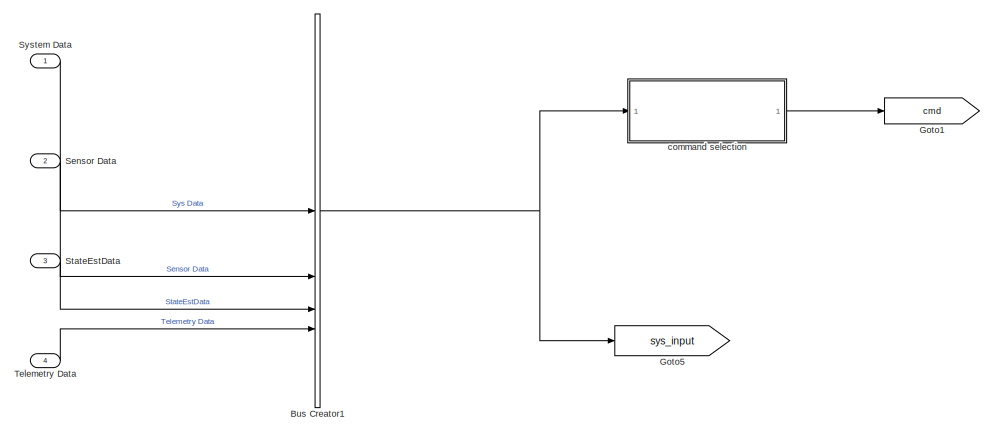
[diagram: root canvas - part 1/6, top center region]
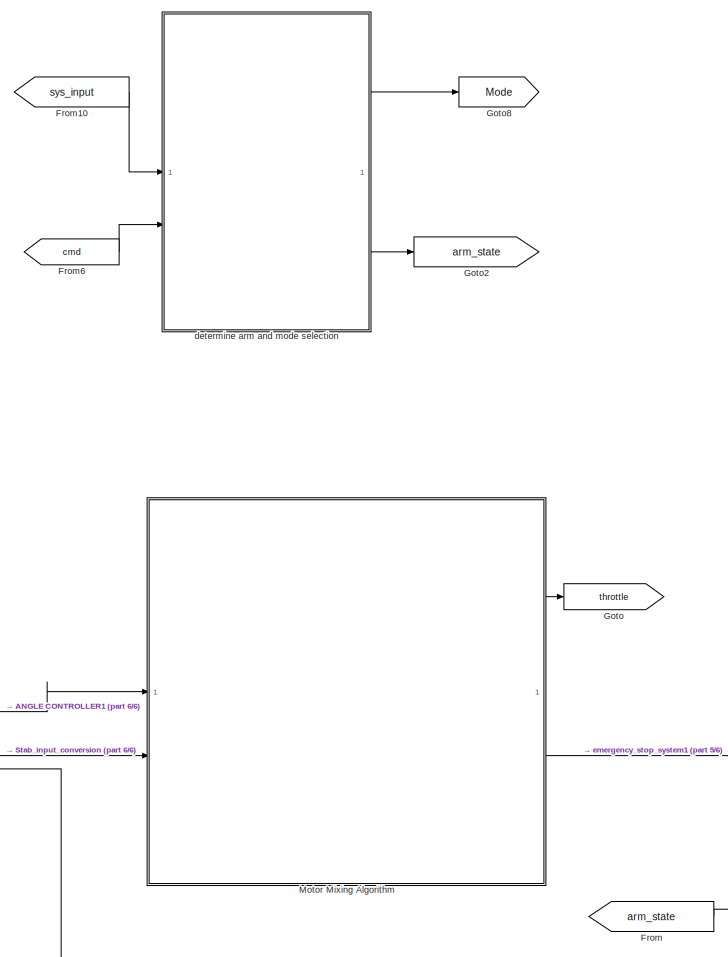
[diagram: root canvas - part 2/6, central region]
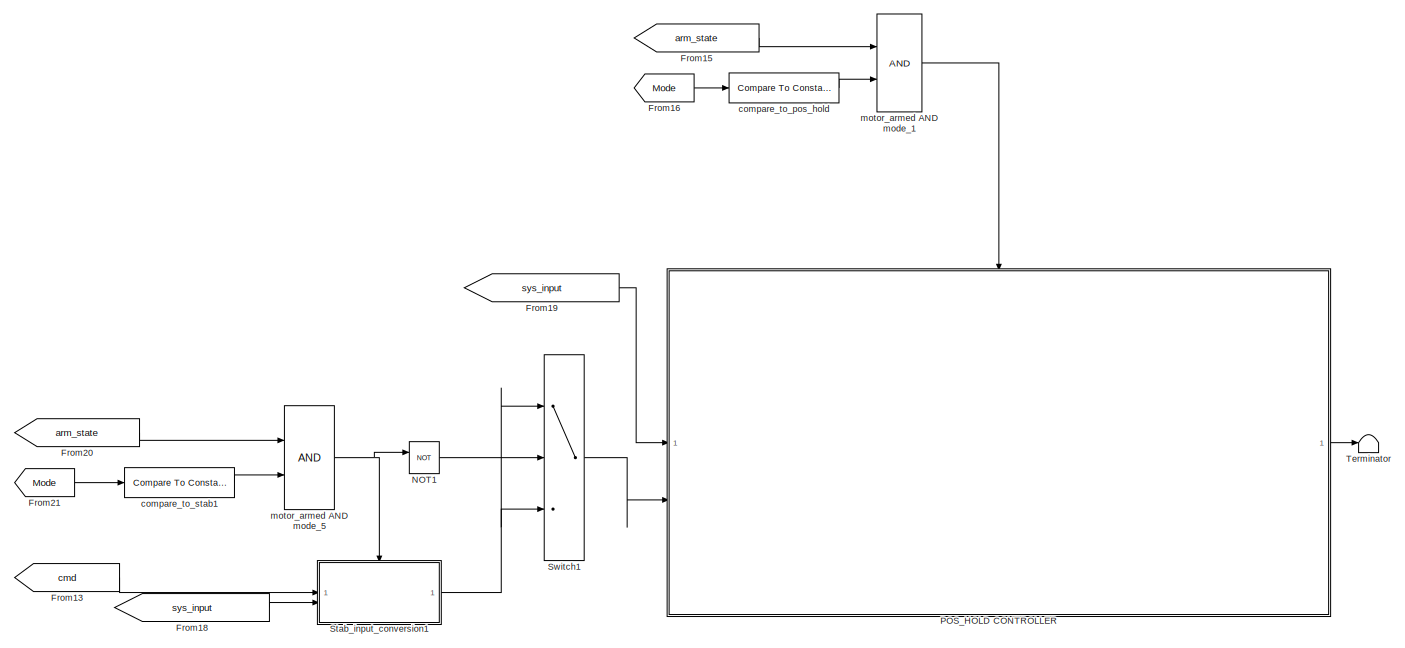
[diagram: root canvas - part 3/6, middle left region]
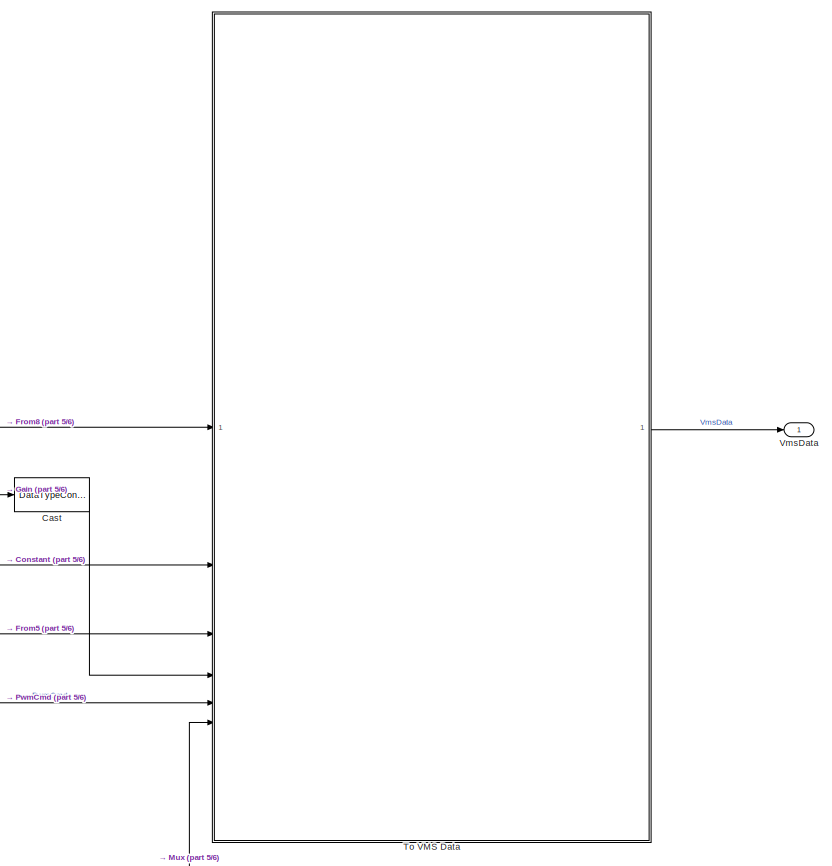
[diagram: root canvas - part 4/6, middle right region]
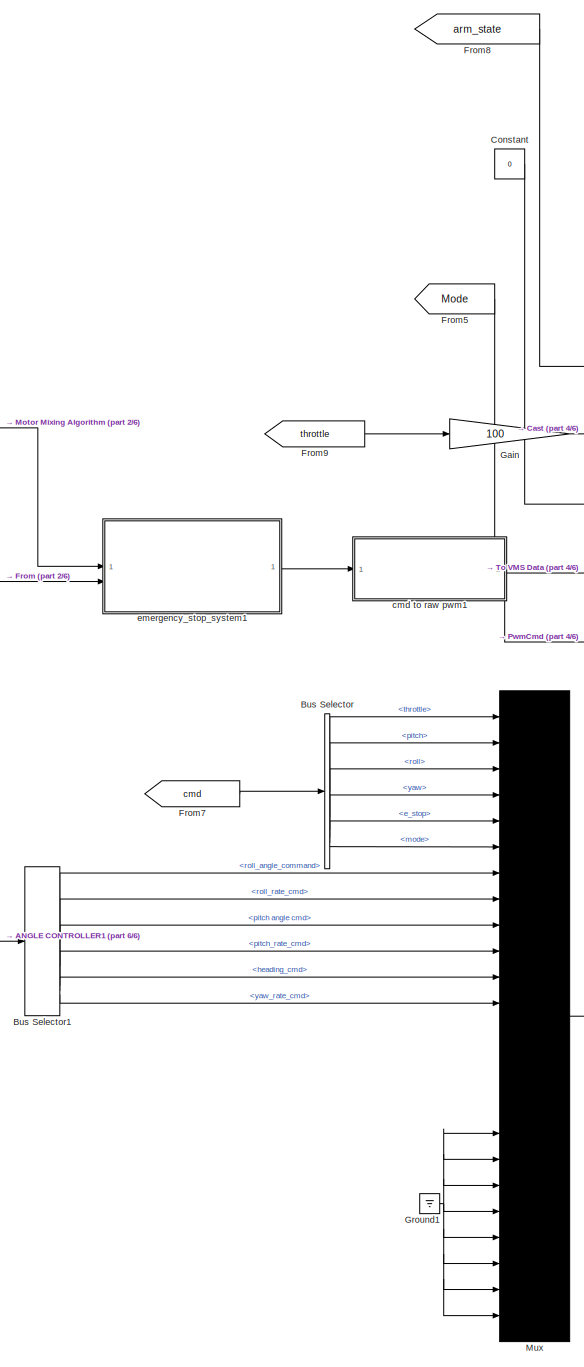
[diagram: root canvas - part 5/6, bottom right region]
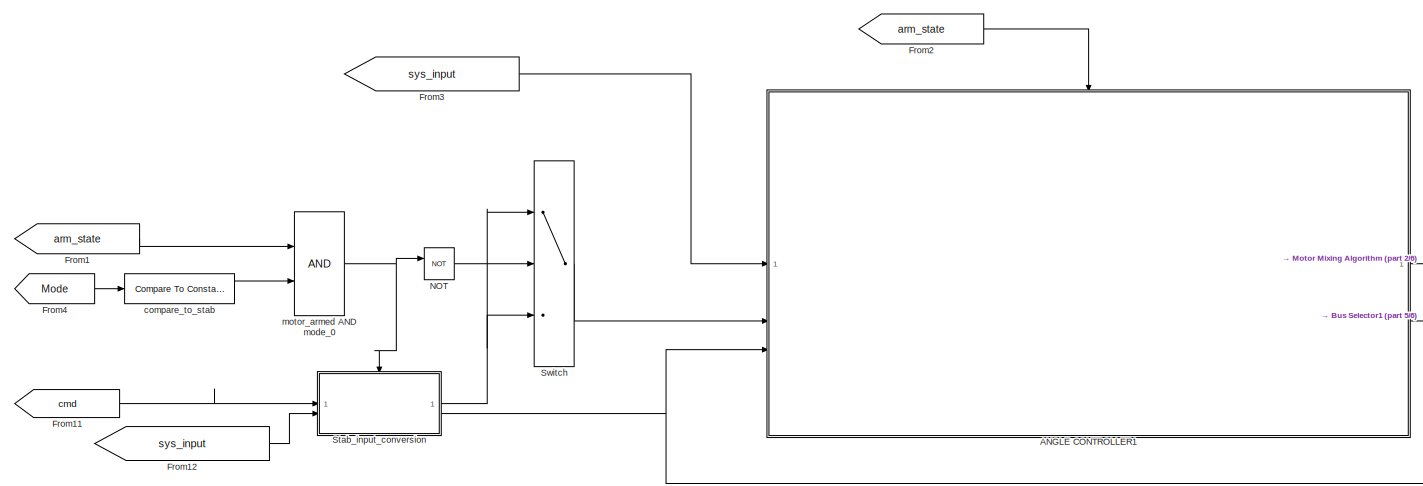
[diagram: root canvas - part 6/6, central region]
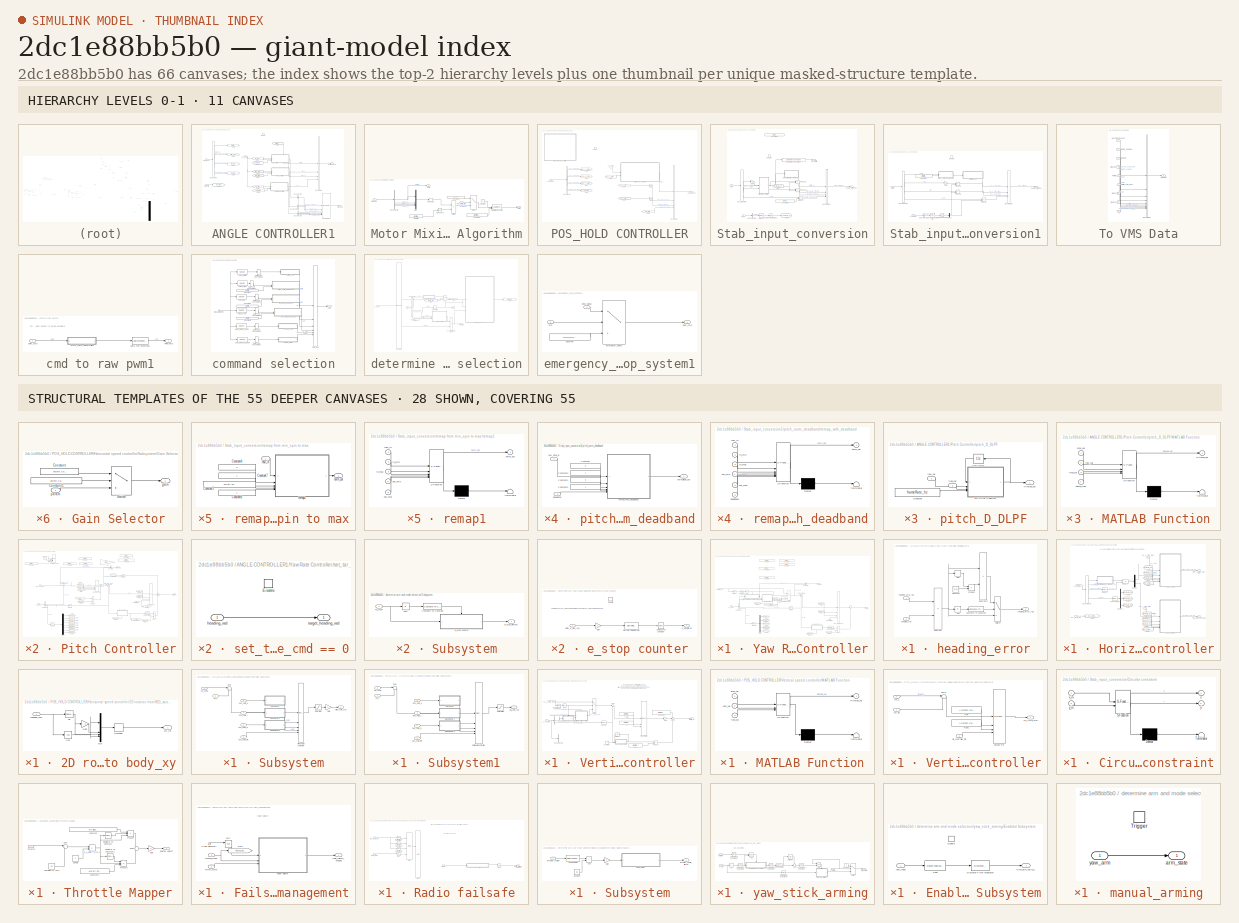
[diagram: thumbnail index - top-2 hierarchy levels (11 canvases) + 28 structural-template representatives of the remaining 55 canvases]
MODEL slx_2dc1e88bb5b0
KIND model
CONFIG AbsTol = auto
CONFIG EnableMultiTasking = off
CONFIG FixedStep = 1/100
CONFIG MaxStep = auto
CONFIG MinStep = auto
CONFIG RelTol = 1e-3
CONFIG SampleTimeConstraint = Unconstrained
CONFIG SolverName = FixedStepAuto
CONFIG StartTime = 0.0
CONFIG StopTime = 10.0
BLOCK [SubSystem] ANGLE CONTROLLER1
BLOCK [BusCreator] ANGLE CONTROLLER1/Bus Creator
  DisplayOption = bar
  InheritFromInputs = on
  Inputs = 6
BLOCK [BusCreator] ANGLE CONTROLLER1/Bus Creator4
  DisplayOption = bar
  InheritFromInputs = on
  Inputs = 4
BLOCK [BusSelector] ANGLE CONTROLLER1/Bus Selector
  OutputSignals = throttle_cc,pitch_angle_cmd_rad,roll_angle_cmd_rad,yaw_rate_cmd_radps
BLOCK [BusSelector] ANGLE CONTROLLER1/Bus Selector1
  OutputSignals = roll_angle_command,roll_rate_cmd
BLOCK [BusSelector] ANGLE CONTROLLER1/Bus Selector2
  OutputSignals = pitch angle cmd,pitch_rate_cmd
BLOCK [BusSelector] ANGLE CONTROLLER1/Bus Selector3
  OutputSignals = heading_cmd,yaw_rate_cmd
BLOCK [Inport] ANGLE CONTROLLER1/Cmd_input
  Port = 2
BLOCK [Outport] ANGLE CONTROLLER1/Command out
BLOCK [EnablePort] ANGLE CONTROLLER1/Enable
BLOCK [From] ANGLE CONTROLLER1/From
  GotoTag = throttle_cc
BLOCK [From] ANGLE CONTROLLER1/From1
  GotoTag = roll_angle_cmd_rad
BLOCK [From] ANGLE CONTROLLER1/From2
  GotoTag = pitch_angle_cmd_rad
BLOCK [From] ANGLE CONTROLLER1/From3
  GotoTag = yaw_rate_cmd_radps
BLOCK [From] ANGLE CONTROLLER1/From4
  GotoTag = low_throttle_flag
BLOCK [From] ANGLE CONTROLLER1/From5
  GotoTag = low_throttle_flag
BLOCK [From] ANGLE CONTROLLER1/From6
  GotoTag = low_throttle_flag
BLOCK [Goto] ANGLE CONTROLLER1/Goto
  GotoTag = throttle_cc
BLOCK [Goto] ANGLE CONTROLLER1/Goto1
  GotoTag = roll_angle_cmd_rad
BLOCK [Goto] ANGLE CONTROLLER1/Goto2
  GotoTag = pitch_angle_cmd_rad
BLOCK [Goto] ANGLE CONTROLLER1/Goto3
  GotoTag = yaw_rate_cmd_radps
BLOCK [Goto] ANGLE CONTROLLER1/Goto4
  GotoTag = low_throttle_flag
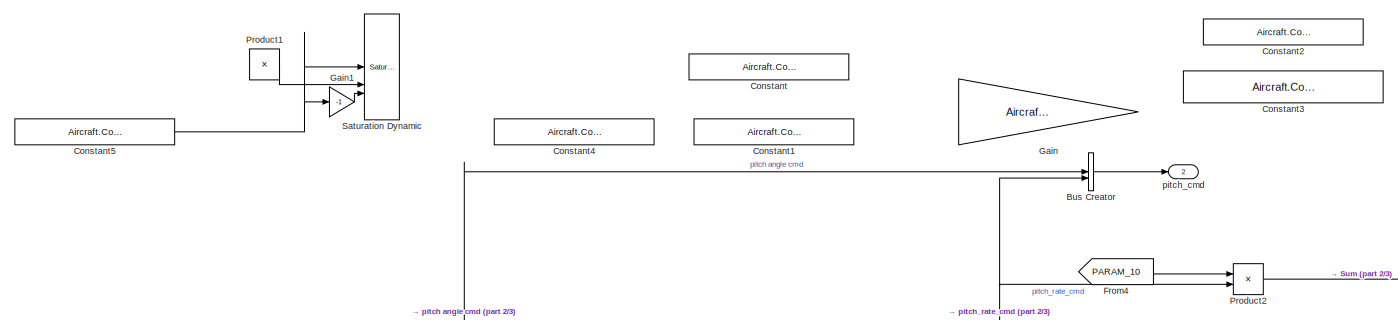
[diagram: ANGLE CONTROLLER1/Pitch Controller - part 1/3, full width, top band]
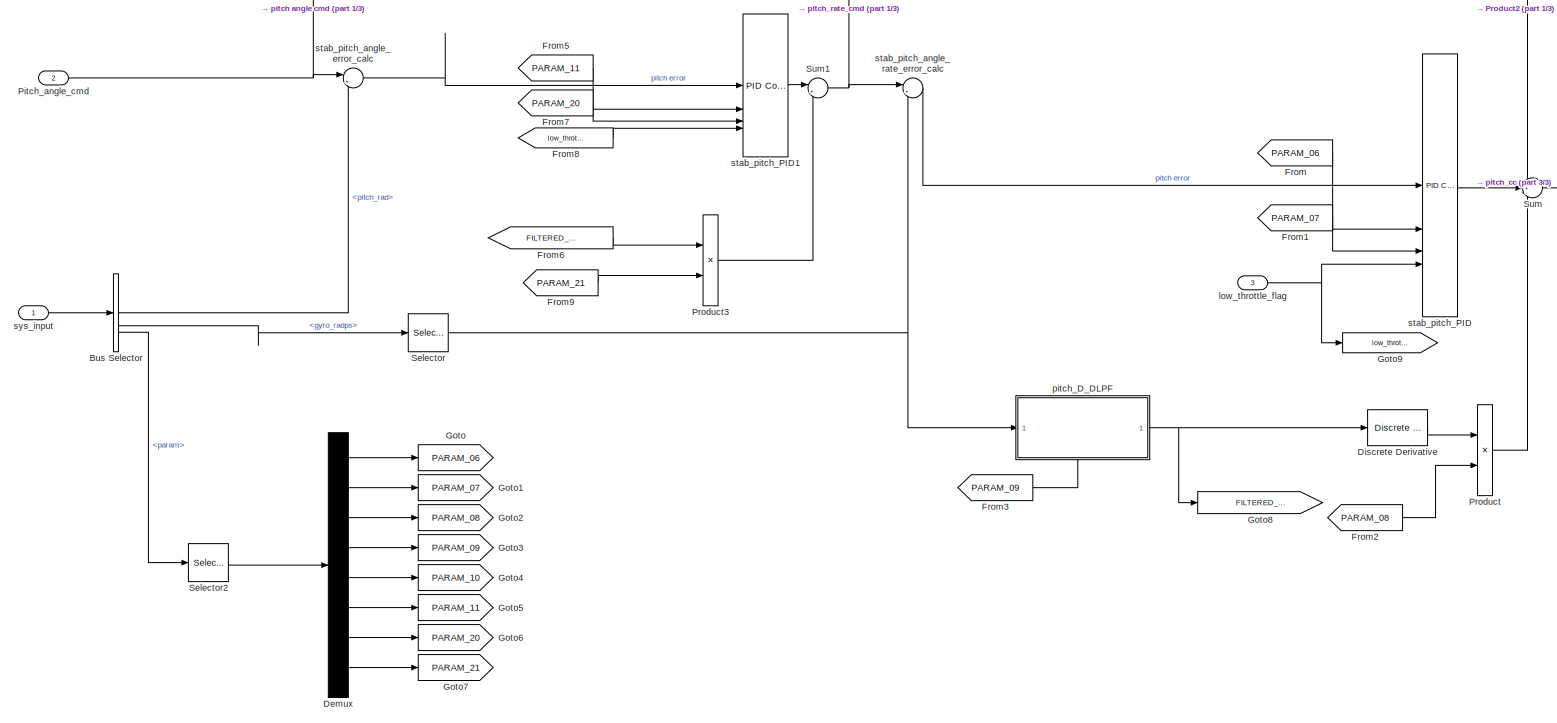
[diagram: ANGLE CONTROLLER1/Pitch Controller - part 2/3, full width, middle band]
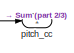
[diagram: ANGLE CONTROLLER1/Pitch Controller - part 3/3, middle right region]
BLOCK [SubSystem] ANGLE CONTROLLER1/Pitch Controller
BLOCK [BusCreator] ANGLE CONTROLLER1/Pitch Controller/Bus Creator
  DisplayOption = bar
  InheritFromInputs = on
  Inputs = 2
BLOCK [BusSelector] ANGLE CONTROLLER1/Pitch Controller/Bus Selector
  OutputSignals = StateEstData.bfs_ins.pitch_rad,StateEstData.bfs_ins.gyro_radps,Telemetry Data.param
BLOCK [Constant] ANGLE CONTROLLER1/Pitch Controller/Constant
  Commented = on
  OutDataTypeStr = single
  Value = Aircraft.Control.P_att_rate
BLOCK [Constant] ANGLE CONTROLLER1/Pitch Controller/Constant1
  Commented = on
  OutDataTypeStr = single
  Value = Aircraft.Control.I_att_rate
BLOCK [Constant] ANGLE CONTROLLER1/Pitch Controller/Constant2
  Commented = on
  OutDataTypeStr = single
  Value = Aircraft.Control.D_att_rate
BLOCK [Constant] ANGLE CONTROLLER1/Pitch Controller/Constant3
  Commented = on
  OutDataTypeStr = single
  Value = Aircraft.Control.D_att_FLTR_CTOFF
BLOCK [Constant] ANGLE CONTROLLER1/Pitch Controller/Constant4
  Commented = on
  OutDataTypeStr = single
  Value = Aircraft.Control.P_att_angle
BLOCK [Constant] ANGLE CONTROLLER1/Pitch Controller/Constant5
  Commented = on
  OutDataTypeStr = single
  Value = Aircraft.Control.att_rate_max
BLOCK [Demux] ANGLE CONTROLLER1/Pitch Controller/Demux
  Outputs = 8
BLOCK [Reference] ANGLE CONTROLLER1/Pitch Controller/Discrete Derivative  REF=simulink/Discrete/Discrete Derivative
  SourceBlock = simulink/Discrete/Discrete Derivative
  SourceType = Discrete Derivative
BLOCK [From] ANGLE CONTROLLER1/Pitch Controller/From
  GotoTag = PARAM_06
BLOCK [From] ANGLE CONTROLLER1/Pitch Controller/From1
  GotoTag = PARAM_07
BLOCK [From] ANGLE CONTROLLER1/Pitch Controller/From2
  GotoTag = PARAM_08
BLOCK [From] ANGLE CONTROLLER1/Pitch Controller/From3
  GotoTag = PARAM_09
BLOCK [From] ANGLE CONTROLLER1/Pitch Controller/From4
  GotoTag = PARAM_10
BLOCK [From] ANGLE CONTROLLER1/Pitch Controller/From5
  GotoTag = PARAM_11
BLOCK [From] ANGLE CONTROLLER1/Pitch Controller/From6
  GotoTag = FILTERED_PITCH_RATE
BLOCK [From] ANGLE CONTROLLER1/Pitch Controller/From7
  GotoTag = PARAM_20
BLOCK [From] ANGLE CONTROLLER1/Pitch Controller/From8
  GotoTag = low_throttle
BLOCK [From] ANGLE CONTROLLER1/Pitch Controller/From9
  GotoTag = PARAM_21
BLOCK [Gain] ANGLE CONTROLLER1/Pitch Controller/Gain
  Commented = on
  Gain = Aircraft.Control.FF_att_rate
BLOCK [Gain] ANGLE CONTROLLER1/Pitch Controller/Gain1
  Commented = on
  Gain = -1
BLOCK [Goto] ANGLE CONTROLLER1/Pitch Controller/Goto
  GotoTag = PARAM_06
BLOCK [Goto] ANGLE CONTROLLER1/Pitch Controller/Goto1
  GotoTag = PARAM_07
BLOCK [Goto] ANGLE CONTROLLER1/Pitch Controller/Goto2
  GotoTag = PARAM_08
BLOCK [Goto] ANGLE CONTROLLER1/Pitch Controller/Goto3
  GotoTag = PARAM_09
BLOCK [Goto] ANGLE CONTROLLER1/Pitch Controller/Goto4
  GotoTag = PARAM_10
BLOCK [Goto] ANGLE CONTROLLER1/Pitch Controller/Goto5
  GotoTag = PARAM_11
BLOCK [Goto] ANGLE CONTROLLER1/Pitch Controller/Goto6
  GotoTag = PARAM_20
BLOCK [Goto] ANGLE CONTROLLER1/Pitch Controller/Goto7
  GotoTag = PARAM_21
BLOCK [Goto] ANGLE CONTROLLER1/Pitch Controller/Goto8
  GotoTag = FILTERED_PITCH_RATE
BLOCK [Goto] ANGLE CONTROLLER1/Pitch Controller/Goto9
  GotoTag = low_throttle
BLOCK [Inport] ANGLE CONTROLLER1/Pitch Controller/Pitch_angle_cmd
  Port = 2
BLOCK [Product] ANGLE CONTROLLER1/Pitch Controller/Product
BLOCK [Product] ANGLE CONTROLLER1/Pitch Controller/Product1
  Commented = on
BLOCK [Product] ANGLE CONTROLLER1/Pitch Controller/Product2
BLOCK [Product] ANGLE CONTROLLER1/Pitch Controller/Product3
BLOCK [Reference] ANGLE CONTROLLER1/Pitch Controller/Saturation Dynamic  REF=simulink/Discontinuities/Saturation
Dynamic
  Commented = on
  SourceBlock = simulink/Discontinuities/Saturation\nDynamic
  SourceType = Saturation Dynamic
BLOCK [Selector] ANGLE CONTROLLER1/Pitch Controller/Selector
  IndexMode = Zero-based
  IndexOptions = Index vector (dialog)
  Indices = 1
  InputPortWidth = 3
  OutputSizes = 1
BLOCK [Selector] ANGLE CONTROLLER1/Pitch Controller/Selector2
  IndexMode = Zero-based
  IndexOptions = Index vector (dialog)
  Indices = [6 7 8 9 10 11 20 21]
  InputPortWidth = 24
  OutputSizes = 1
BLOCK [Sum] ANGLE CONTROLLER1/Pitch Controller/Sum
  Inputs = ++-
BLOCK [Sum] ANGLE CONTROLLER1/Pitch Controller/Sum1
  Inputs = |+-
BLOCK [Inport] ANGLE CONTROLLER1/Pitch Controller/low_throttle_flag
  Port = 3
BLOCK [SubSystem] ANGLE CONTROLLER1/Pitch Controller/pitch_D_DLPF
  NameLocation = top
  PortSchema = {"entries":[{"content":{"sides":[{"content":{"connectorIds":["In1"]},"type":"ConnectorPlacement.EquallySpacedRectSide","uuid":"20236834-aeb3-4c5b-bb2e-f84447e752b5"},{"content":{"connectorIds":["Out1"],"side":"RIGHT"},"type":"ConnectorPlacement.EquallySpacedRectSide","uuid":"d668f9a1-a3df-4207-8bf1-99fb838e59b2"},{"content":{"connectorIds":[],"side":"TOP"},"type":"ConnectorPlacement.EquallySpacedR...<+389ch>  <repeated x3 — deduplicated; at blocks: pitch_D_DLPF, roll_D_DLPF, yaw_D_DLPF>
BLOCK [Constant] ANGLE CONTROLLER1/Pitch Controller/pitch_D_DLPF/Constant
  OutDataTypeStr = single
  Value = frameRate_hz
BLOCK [SubSystem] ANGLE CONTROLLER1/Pitch Controller/pitch_D_DLPF/MATLAB Function
  ErrorFcn = Stateflow.Translate.translate
  PermitHierarchicalResolution = ExplicitOnly
  SFBlockType = MATLAB Function
  TreatAsAtomicUnit = on
BLOCK [Demux] ANGLE CONTROLLER1/Pitch Controller/pitch_D_DLPF/MATLAB Function/ Demux 
  Outputs = 1
BLOCK [S-Function] ANGLE CONTROLLER1/Pitch Controller/pitch_D_DLPF/MATLAB Function/ SFunction 
  EnableBusSupport = on
  FunctionName = sf_sfun
  PortCounts = [4 2]
  SFcnIsStateOwnerBlock = off
  SFunctionDeploymentMode = off
  Tag = Stateflow S-Function 1
BLOCK [Terminator] ANGLE CONTROLLER1/Pitch Controller/pitch_D_DLPF/MATLAB Function/ Terminator 
BLOCK [Outport] ANGLE CONTROLLER1/Pitch Controller/pitch_D_DLPF/MATLAB Function/filtered_val
BLOCK [Inport] ANGLE CONTROLLER1/Pitch Controller/pitch_D_DLPF/MATLAB Function/freq_cut
  Port = 3
BLOCK [Inport] ANGLE CONTROLLER1/Pitch Controller/pitch_D_DLPF/MATLAB Function/prev_val
BLOCK [Inport] ANGLE CONTROLLER1/Pitch Controller/pitch_D_DLPF/MATLAB Function/raw_val
  Port = 2
BLOCK [Inport] ANGLE CONTROLLER1/Pitch Controller/pitch_D_DLPF/MATLAB Function/samp_freq
  Port = 4
BLOCK [UnitDelay] ANGLE CONTROLLER1/Pitch Controller/pitch_D_DLPF/Unit Delay
  HasFrameUpgradeWarning = on
  NameLocation = top
  SampleTime = -1
BLOCK [Outport] ANGLE CONTROLLER1/Pitch Controller/pitch_D_DLPF/filtered_val
BLOCK [Inport] ANGLE CONTROLLER1/Pitch Controller/pitch_D_DLPF/freq_cut
  Port = 2
BLOCK [Inport] ANGLE CONTROLLER1/Pitch Controller/pitch_D_DLPF/raw_val
BLOCK [Outport] ANGLE CONTROLLER1/Pitch Controller/pitch_cc
BLOCK [Outport] ANGLE CONTROLLER1/Pitch Controller/pitch_cmd
  Port = 2
BLOCK [Reference] ANGLE CONTROLLER1/Pitch Controller/stab_pitch_PID  REF=slpidlib/PID Controller
  SourceBlock = slpidlib/PID Controller
  SourceType = PID 1dof
BLOCK [Reference] ANGLE CONTROLLER1/Pitch Controller/stab_pitch_PID1  REF=slpidlib/PID Controller
  SourceBlock = slpidlib/PID Controller
  SourceType = PID 1dof
BLOCK [Sum] ANGLE CONTROLLER1/Pitch Controller/stab_pitch_angle_error_calc
  Inputs = |+-
BLOCK [Sum] ANGLE CONTROLLER1/Pitch Controller/stab_pitch_angle_rate_error_calc
  Inputs = |+-
BLOCK [Inport] ANGLE CONTROLLER1/Pitch Controller/sys_input
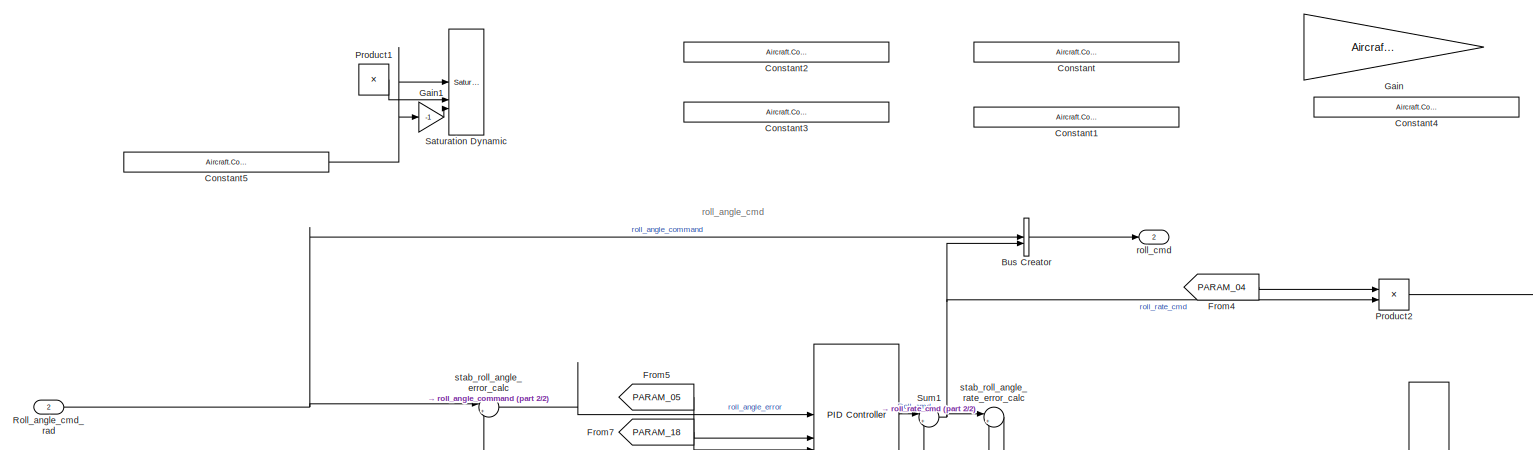
[diagram: ANGLE CONTROLLER1/Roll Controller - part 1/2, full width, top band]
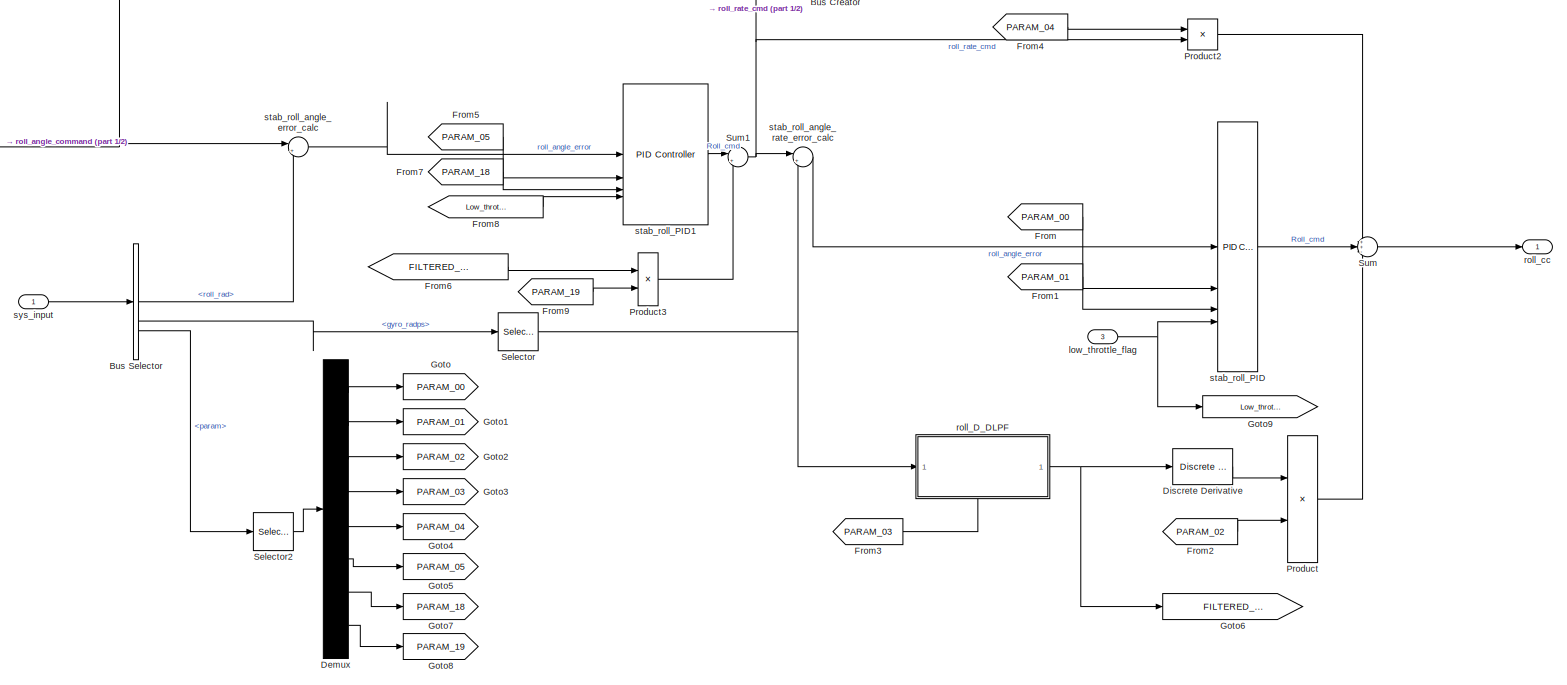
[diagram: ANGLE CONTROLLER1/Roll Controller - part 2/2, full width, middle band]
BLOCK [SubSystem] ANGLE CONTROLLER1/Roll Controller
BLOCK [BusCreator] ANGLE CONTROLLER1/Roll Controller/Bus Creator
  DisplayOption = bar
  InheritFromInputs = on
  Inputs = 2
BLOCK [BusSelector] ANGLE CONTROLLER1/Roll Controller/Bus Selector
  OutputSignals = StateEstData.bfs_ins.roll_rad,StateEstData.bfs_ins.gyro_radps,Telemetry Data.param
BLOCK [Constant] ANGLE CONTROLLER1/Roll Controller/Constant
  Commented = on
  OutDataTypeStr = single
  Value = Aircraft.Control.D_att_FLTR_CTOFF
BLOCK [Constant] ANGLE CONTROLLER1/Roll Controller/Constant1
  Commented = on
  OutDataTypeStr = single
  Value = Aircraft.Control.D_att_rate
BLOCK [Constant] ANGLE CONTROLLER1/Roll Controller/Constant2
  Commented = on
  OutDataTypeStr = single
  Value = Aircraft.Control.P_att_rate
BLOCK [Constant] ANGLE CONTROLLER1/Roll Controller/Constant3
  Commented = on
  OutDataTypeStr = single
  Value = Aircraft.Control.I_att_rate
BLOCK [Constant] ANGLE CONTROLLER1/Roll Controller/Constant4
  Commented = on
  OutDataTypeStr = single
  Value = Aircraft.Control.P_att_angle
BLOCK [Constant] ANGLE CONTROLLER1/Roll Controller/Constant5
  Commented = on
  OutDataTypeStr = single
  Value = Aircraft.Control.att_rate_max
BLOCK [Demux] ANGLE CONTROLLER1/Roll Controller/Demux
  Outputs = 8
BLOCK [Reference] ANGLE CONTROLLER1/Roll Controller/Discrete Derivative  REF=simulink/Discrete/Discrete Derivative
  SourceBlock = simulink/Discrete/Discrete Derivative
  SourceType = Discrete Derivative
BLOCK [From] ANGLE CONTROLLER1/Roll Controller/From
  GotoTag = PARAM_00
BLOCK [From] ANGLE CONTROLLER1/Roll Controller/From1
  GotoTag = PARAM_01
BLOCK [From] ANGLE CONTROLLER1/Roll Controller/From2
  GotoTag = PARAM_02
BLOCK [From] ANGLE CONTROLLER1/Roll Controller/From3
  GotoTag = PARAM_03
BLOCK [From] ANGLE CONTROLLER1/Roll Controller/From4
  GotoTag = PARAM_04
BLOCK [From] ANGLE CONTROLLER1/Roll Controller/From5
  GotoTag = PARAM_05
BLOCK [From] ANGLE CONTROLLER1/Roll Controller/From6
  GotoTag = FILTERED_ROLL_RATE
BLOCK [From] ANGLE CONTROLLER1/Roll Controller/From7
  GotoTag = PARAM_18
BLOCK [From] ANGLE CONTROLLER1/Roll Controller/From8
  GotoTag = Low_throttle
BLOCK [From] ANGLE CONTROLLER1/Roll Controller/From9
  GotoTag = PARAM_19
BLOCK [Gain] ANGLE CONTROLLER1/Roll Controller/Gain
  Commented = on
  Gain = Aircraft.Control.FF_att_rate
BLOCK [Gain] ANGLE CONTROLLER1/Roll Controller/Gain1
  Commented = on
  Gain = -1
BLOCK [Goto] ANGLE CONTROLLER1/Roll Controller/Goto
  GotoTag = PARAM_00
BLOCK [Goto] ANGLE CONTROLLER1/Roll Controller/Goto1
  GotoTag = PARAM_01
BLOCK [Goto] ANGLE CONTROLLER1/Roll Controller/Goto2
  GotoTag = PARAM_02
BLOCK [Goto] ANGLE CONTROLLER1/Roll Controller/Goto3
  GotoTag = PARAM_03
BLOCK [Goto] ANGLE CONTROLLER1/Roll Controller/Goto4
  GotoTag = PARAM_04
BLOCK [Goto] ANGLE CONTROLLER1/Roll Controller/Goto5
  GotoTag = PARAM_05
BLOCK [Goto] ANGLE CONTROLLER1/Roll Controller/Goto6
  GotoTag = FILTERED_ROLL_RATE
BLOCK [Goto] ANGLE CONTROLLER1/Roll Controller/Goto7
  GotoTag = PARAM_18
BLOCK [Goto] ANGLE CONTROLLER1/Roll Controller/Goto8
  GotoTag = PARAM_19
BLOCK [Goto] ANGLE CONTROLLER1/Roll Controller/Goto9
  GotoTag = Low_throttle
BLOCK [Product] ANGLE CONTROLLER1/Roll Controller/Product
BLOCK [Product] ANGLE CONTROLLER1/Roll Controller/Product1
  Commented = on
BLOCK [Product] ANGLE CONTROLLER1/Roll Controller/Product2
BLOCK [Product] ANGLE CONTROLLER1/Roll Controller/Product3
BLOCK [Inport] ANGLE CONTROLLER1/Roll Controller/Roll_angle_cmd_rad
  Port = 2
BLOCK [Reference] ANGLE CONTROLLER1/Roll Controller/Saturation Dynamic  REF=simulink/Discontinuities/Saturation
Dynamic
  Commented = on
  SourceBlock = simulink/Discontinuities/Saturation\nDynamic
  SourceType = Saturation Dynamic
BLOCK [Selector] ANGLE CONTROLLER1/Roll Controller/Selector
  IndexMode = Zero-based
  IndexOptions = Index vector (dialog)
  Indices = 0
  InputPortWidth = 3
  OutputSizes = 1
BLOCK [Selector] ANGLE CONTROLLER1/Roll Controller/Selector2
  IndexMode = Zero-based
  IndexOptions = Index vector (dialog)
  Indices = [0 1 2 3 4 5 18 19]
  InputPortWidth = 24
  OutputSizes = 1
BLOCK [Sum] ANGLE CONTROLLER1/Roll Controller/Sum
  Inputs = ++-
BLOCK [Sum] ANGLE CONTROLLER1/Roll Controller/Sum1
  Inputs = |+-
BLOCK [Inport] ANGLE CONTROLLER1/Roll Controller/low_throttle_flag
  Port = 3
BLOCK [SubSystem] ANGLE CONTROLLER1/Roll Controller/roll_D_DLPF
  NameLocation = top
BLOCK [Constant] ANGLE CONTROLLER1/Roll Controller/roll_D_DLPF/Constant
  OutDataTypeStr = single
  Value = frameRate_hz
BLOCK [SubSystem] ANGLE CONTROLLER1/Roll Controller/roll_D_DLPF/MATLAB Function
  ErrorFcn = Stateflow.Translate.translate
  PermitHierarchicalResolution = ExplicitOnly
  SFBlockType = MATLAB Function
  TreatAsAtomicUnit = on
BLOCK [Demux] ANGLE CONTROLLER1/Roll Controller/roll_D_DLPF/MATLAB Function/ Demux 
  Outputs = 1
BLOCK [S-Function] ANGLE CONTROLLER1/Roll Controller/roll_D_DLPF/MATLAB Function/ SFunction 
  EnableBusSupport = on
  FunctionName = sf_sfun
  PortCounts = [4 2]
  SFcnIsStateOwnerBlock = off
  SFunctionDeploymentMode = off
  Tag = Stateflow S-Function 11
BLOCK [Terminator] ANGLE CONTROLLER1/Roll Controller/roll_D_DLPF/MATLAB Function/ Terminator 
BLOCK [Outport] ANGLE CONTROLLER1/Roll Controller/roll_D_DLPF/MATLAB Function/filtered_val
BLOCK [Inport] ANGLE CONTROLLER1/Roll Controller/roll_D_DLPF/MATLAB Function/freq_cut
  Port = 3
BLOCK [Inport] ANGLE CONTROLLER1/Roll Controller/roll_D_DLPF/MATLAB Function/prev_val
BLOCK [Inport] ANGLE CONTROLLER1/Roll Controller/roll_D_DLPF/MATLAB Function/raw_val
  Port = 2
BLOCK [Inport] ANGLE CONTROLLER1/Roll Controller/roll_D_DLPF/MATLAB Function/samp_freq
  Port = 4
BLOCK [UnitDelay] ANGLE CONTROLLER1/Roll Controller/roll_D_DLPF/Unit Delay
  HasFrameUpgradeWarning = on
  NameLocation = top
  SampleTime = -1
BLOCK [Outport] ANGLE CONTROLLER1/Roll Controller/roll_D_DLPF/filtered_val
BLOCK [Inport] ANGLE CONTROLLER1/Roll Controller/roll_D_DLPF/freq_cut
  Port = 2
BLOCK [Inport] ANGLE CONTROLLER1/Roll Controller/roll_D_DLPF/raw_val
BLOCK [Outport] ANGLE CONTROLLER1/Roll Controller/roll_cc
BLOCK [Outport] ANGLE CONTROLLER1/Roll Controller/roll_cmd
  Port = 2
BLOCK [Reference] ANGLE CONTROLLER1/Roll Controller/stab_roll_PID  REF=slpidlib/PID Controller
  SourceBlock = slpidlib/PID Controller
  SourceType = PID 1dof
BLOCK [Reference] ANGLE CONTROLLER1/Roll Controller/stab_roll_PID1  REF=slpidlib/PID Controller
  SourceBlock = slpidlib/PID Controller
  SourceType = PID 1dof
BLOCK [Sum] ANGLE CONTROLLER1/Roll Controller/stab_roll_angle_error_calc
  Inputs = |+-
BLOCK [Sum] ANGLE CONTROLLER1/Roll Controller/stab_roll_angle_rate_error_calc
  Inputs = |+-
BLOCK [Inport] ANGLE CONTROLLER1/Roll Controller/sys_input
BLOCK [Inport] ANGLE CONTROLLER1/Sys_input
BLOCK [SubSystem] ANGLE CONTROLLER1/Yaw Rate Controller
BLOCK [BusCreator] ANGLE CONTROLLER1/Yaw Rate Controller/Bus Creator
  DisplayOption = bar
  InheritFromInputs = on
  Inputs = 2
BLOCK [BusSelector] ANGLE CONTROLLER1/Yaw Rate Controller/Bus Selector
  OutputSignals = StateEstData.bfs_ins.heading_rad,StateEstData.bfs_ins.gyro_radps,Telemetry Data.param
BLOCK [Reference] ANGLE CONTROLLER1/Yaw Rate Controller/Compare To Constant1  REF=simulink/Logic and Bit
Operations/Compare
To Constant
  SourceBlock = simulink/Logic and Bit\nOperations/Compare\nTo Constant
  SourceType = Compare To Constant
BLOCK [Constant] ANGLE CONTROLLER1/Yaw Rate Controller/Constant
  Value = Aircraft.Control.yaw_rate_max
BLOCK [Constant] ANGLE CONTROLLER1/Yaw Rate Controller/Constant1
  Commented = on
  OutDataTypeStr = single
  Value = Aircraft.Control.P_heading
BLOCK [Constant] ANGLE CONTROLLER1/Yaw Rate Controller/Constant2
  Commented = on
  OutDataTypeStr = single
  Value = Aircraft.Control.P_yaw_rate
BLOCK [Constant] ANGLE CONTROLLER1/Yaw Rate Controller/Constant3
  Commented = on
  OutDataTypeStr = single
  Value = Aircraft.Control.I_yaw_rate
BLOCK [Constant] ANGLE CONTROLLER1/Yaw Rate Controller/Constant4
  Commented = on
  OutDataTypeStr = single
  Value = Aircraft.Control.D_yaw_rate
BLOCK [Constant] ANGLE CONTROLLER1/Yaw Rate Controller/Constant5
  Commented = on
  OutDataTypeStr = single
  Value = Aircraft.Control.D_yaw_FLTR_CTOFF
BLOCK [Demux] ANGLE CONTROLLER1/Yaw Rate Controller/Demux
  Outputs = 5
BLOCK [Reference] ANGLE CONTROLLER1/Yaw Rate Controller/Discrete Derivative  REF=simulink/Quick Insert/Discrete/Discrete Derivative
  SourceBlock = simulink/Quick Insert/Discrete/Discrete Derivative
  SourceType = Discrete Derivative
BLOCK [From] ANGLE CONTROLLER1/Yaw Rate Controller/From
  GotoTag = PARAM_12
BLOCK [From] ANGLE CONTROLLER1/Yaw Rate Controller/From1
  GotoTag = PARAM_13
BLOCK [From] ANGLE CONTROLLER1/Yaw Rate Controller/From2
  GotoTag = PARAM_14
BLOCK [From] ANGLE CONTROLLER1/Yaw Rate Controller/From3
  GotoTag = PARAM_15
BLOCK [From] ANGLE CONTROLLER1/Yaw Rate Controller/From4
  GotoTag = PARAM_16
BLOCK [Gain] ANGLE CONTROLLER1/Yaw Rate Controller/Gain1
  Gain = -1
BLOCK [Goto] ANGLE CONTROLLER1/Yaw Rate Controller/Goto
  GotoTag = PARAM_12
BLOCK [Goto] ANGLE CONTROLLER1/Yaw Rate Controller/Goto1
  GotoTag = PARAM_13
BLOCK [Goto] ANGLE CONTROLLER1/Yaw Rate Controller/Goto2
  GotoTag = PARAM_14
BLOCK [Goto] ANGLE CONTROLLER1/Yaw Rate Controller/Goto3
  GotoTag = PARAM_15
BLOCK [Goto] ANGLE CONTROLLER1/Yaw Rate Controller/Goto4
  GotoTag = PARAM_16
BLOCK [Logic] ANGLE CONTROLLER1/Yaw Rate Controller/NOT
  AllPortsSameDT = off
  IconShape = distinctive
  Operator = NOT
  OutDataTypeStr = boolean
BLOCK [Product] ANGLE CONTROLLER1/Yaw Rate Controller/Product
BLOCK [Product] ANGLE CONTROLLER1/Yaw Rate Controller/Product1
BLOCK [Reference] ANGLE CONTROLLER1/Yaw Rate Controller/Saturation Dynamic  REF=simulink/Discontinuities/Saturation
Dynamic
  SourceBlock = simulink/Discontinuities/Saturation\nDynamic
  SourceType = Saturation Dynamic
BLOCK [Selector] ANGLE CONTROLLER1/Yaw Rate Controller/Selector
  IndexOptions = Index vector (dialog)
  Indices = 3
  InputPortWidth = 3
  OutputSizes = 1
BLOCK [Selector] ANGLE CONTROLLER1/Yaw Rate Controller/Selector2
  IndexMode = Zero-based
  IndexOptions = Index vector (dialog)
  Indices = [12 13 14 15 16]
  InputPortWidth = 24
  OutputSizes = 1
BLOCK [Sum] ANGLE CONTROLLER1/Yaw Rate Controller/Sum
  Inputs = |+-
BLOCK [Switch] ANGLE CONTROLLER1/Yaw Rate Controller/Switch
  Criteria = u2 > Threshold
  InputSameDT = off
  SaturateOnIntegerOverflow = off
BLOCK [UnitDelay] ANGLE CONTROLLER1/Yaw Rate Controller/Unit Delay1
  HasFrameUpgradeWarning = on
  InitialCondition = 0.5
  SampleTime = -1
BLOCK [Inport] ANGLE CONTROLLER1/Yaw Rate Controller/Yaw_rate_cmd
  Port = 2
BLOCK [SubSystem] ANGLE CONTROLLER1/Yaw Rate Controller/heading_error
BLOCK [Abs] ANGLE CONTROLLER1/Yaw Rate Controller/heading_error/Abs
  SaturateOnIntegerOverflow = off
BLOCK [Reference] ANGLE CONTROLLER1/Yaw Rate Controller/heading_error/Compare To Constant  REF=simulink/Logic and Bit
Operations/Compare
To Constant
  SourceBlock = simulink/Logic and Bit\nOperations/Compare\nTo Constant
  SourceType = Compare To Constant
BLOCK [Constant] ANGLE CONTROLLER1/Yaw Rate Controller/heading_error/Constant
  OutDataTypeStr = single
  Value = 2*pi
BLOCK [Product] ANGLE CONTROLLER1/Yaw Rate Controller/heading_error/Product
BLOCK [Signum] ANGLE CONTROLLER1/Yaw Rate Controller/heading_error/Sign
BLOCK [Sum] ANGLE CONTROLLER1/Yaw Rate Controller/heading_error/Subtract
  IconShape = rectangular
  Inputs = +-
BLOCK [Sum] ANGLE CONTROLLER1/Yaw Rate Controller/heading_error/Subtract1
  IconShape = rectangular
  Inputs = +-
BLOCK [Switch] ANGLE CONTROLLER1/Yaw Rate Controller/heading_error/Switch
  Criteria = u2 > Threshold
  InputSameDT = off
  SaturateOnIntegerOverflow = off
BLOCK [Inport] ANGLE CONTROLLER1/Yaw Rate Controller/heading_error/heading_cmd_rad
BLOCK [Outport] ANGLE CONTROLLER1/Yaw Rate Controller/heading_error/heading_error_rad
BLOCK [Inport] ANGLE CONTROLLER1/Yaw Rate Controller/heading_error/heading_rad
  Port = 2
BLOCK [Inport] ANGLE CONTROLLER1/Yaw Rate Controller/low_throttle_flag
  Port = 3
BLOCK [SubSystem] ANGLE CONTROLLER1/Yaw Rate Controller/set_tar_heading when heading_rate_cmd == 0
  TreatAsAtomicUnit = on
BLOCK [EnablePort] ANGLE CONTROLLER1/Yaw Rate Controller/set_tar_heading when heading_rate_cmd == 0/Enable
BLOCK [Inport] ANGLE CONTROLLER1/Yaw Rate Controller/set_tar_heading when heading_rate_cmd == 0/heading_rad
BLOCK [Outport] ANGLE CONTROLLER1/Yaw Rate Controller/set_tar_heading when heading_rate_cmd == 0/target_heading_rad
BLOCK [Reference] ANGLE CONTROLLER1/Yaw Rate Controller/stab_yaw_rate_PID  REF=slpidlib/PID Controller
  SourceBlock = slpidlib/PID Controller
  SourceType = PID 1dof
BLOCK [Sum] ANGLE CONTROLLER1/Yaw Rate Controller/stab_yaw_rate_error_calc
  Inputs = |+-
BLOCK [Inport] ANGLE CONTROLLER1/Yaw Rate Controller/sys_input
BLOCK [SubSystem] ANGLE CONTROLLER1/Yaw Rate Controller/yaw_D_DLPF
  NameLocation = top
BLOCK [Constant] ANGLE CONTROLLER1/Yaw Rate Controller/yaw_D_DLPF/Constant
  OutDataTypeStr = single
  Value = frameRate_hz
BLOCK [SubSystem] ANGLE CONTROLLER1/Yaw Rate Controller/yaw_D_DLPF/MATLAB Function
  ErrorFcn = Stateflow.Translate.translate
  PermitHierarchicalResolution = ExplicitOnly
  SFBlockType = MATLAB Function
  TreatAsAtomicUnit = on
BLOCK [Demux] ANGLE CONTROLLER1/Yaw Rate Controller/yaw_D_DLPF/MATLAB Function/ Demux 
  Outputs = 1
BLOCK [S-Function] ANGLE CONTROLLER1/Yaw Rate Controller/yaw_D_DLPF/MATLAB Function/ SFunction 
  EnableBusSupport = on
  FunctionName = sf_sfun
  PortCounts = [4 2]
  SFcnIsStateOwnerBlock = off
  SFunctionDeploymentMode = off
  Tag = Stateflow S-Function 12
BLOCK [Terminator] ANGLE CONTROLLER1/Yaw Rate Controller/yaw_D_DLPF/MATLAB Function/ Terminator 
BLOCK [Outport] ANGLE CONTROLLER1/Yaw Rate Controller/yaw_D_DLPF/MATLAB Function/filtered_val
BLOCK [Inport] ANGLE CONTROLLER1/Yaw Rate Controller/yaw_D_DLPF/MATLAB Function/freq_cut
  Port = 3
BLOCK [Inport] ANGLE CONTROLLER1/Yaw Rate Controller/yaw_D_DLPF/MATLAB Function/prev_val
BLOCK [Inport] ANGLE CONTROLLER1/Yaw Rate Controller/yaw_D_DLPF/MATLAB Function/raw_val
  Port = 2
BLOCK [Inport] ANGLE CONTROLLER1/Yaw Rate Controller/yaw_D_DLPF/MATLAB Function/samp_freq
  Port = 4
BLOCK [UnitDelay] ANGLE CONTROLLER1/Yaw Rate Controller/yaw_D_DLPF/Unit Delay
  HasFrameUpgradeWarning = on
  NameLocation = top
  SampleTime = -1
BLOCK [Outport] ANGLE CONTROLLER1/Yaw Rate Controller/yaw_D_DLPF/filtered_val
BLOCK [Inport] ANGLE CONTROLLER1/Yaw Rate Controller/yaw_D_DLPF/freq_cut
  Port = 2
BLOCK [Inport] ANGLE CONTROLLER1/Yaw Rate Controller/yaw_D_DLPF/raw_val
BLOCK [Outport] ANGLE CONTROLLER1/Yaw Rate Controller/yaw_cc
BLOCK [Outport] ANGLE CONTROLLER1/Yaw Rate Controller/yaw_cmd
  Port = 2
BLOCK [Inport] ANGLE CONTROLLER1/low_thottle
  Port = 3
BLOCK [Outport] ANGLE CONTROLLER1/stab_dbg
  Port = 2
BLOCK [BusCreator] Bus Creator1
  DisplayOption = bar
  InheritFromInputs = on
  Inputs = 4
BLOCK [BusSelector] Bus Selector
  OutputSignals = throttle,pitch,roll,yaw,e_stop,mode
BLOCK [BusSelector] Bus Selector1
  OutputSignals = roll_angle_command,roll_rate_cmd,pitch angle cmd,pitch_rate_cmd,heading_cmd,yaw_rate_cmd
BLOCK [DataTypeConversion] Cast
  OutDataTypeStr = single
  RndMeth = Floor
  SaturateOnIntegerOverflow = off
BLOCK [Constant] Constant
  OutDataTypeStr = boolean
  Value = 0
BLOCK [From] From
  GotoTag = arm_state
BLOCK [From] From1
  GotoTag = arm_state
BLOCK [From] From10
  GotoTag = sys_input
BLOCK [From] From11
  GotoTag = cmd
BLOCK [From] From12
  GotoTag = sys_input
BLOCK [From] From13
  Commented = on
  GotoTag = cmd
BLOCK [From] From15
  Commented = on
  GotoTag = arm_state
BLOCK [From] From16
  Commented = on
  GotoTag = Mode
BLOCK [From] From18
  Commented = on
  GotoTag = sys_input
BLOCK [From] From19
  Commented = on
  GotoTag = sys_input
BLOCK [From] From2
  GotoTag = arm_state
BLOCK [From] From20
  Commented = on
  GotoTag = arm_state
BLOCK [From] From21
  Commented = on
  GotoTag = Mode
BLOCK [From] From3
  GotoTag = sys_input
BLOCK [From] From4
  GotoTag = Mode
BLOCK [From] From5
  GotoTag = Mode
BLOCK [From] From6
  GotoTag = cmd
BLOCK [From] From7
  GotoTag = cmd
BLOCK [From] From8
  GotoTag = arm_state
BLOCK [From] From9
  GotoTag = throttle
BLOCK [Gain] Gain
  Gain = 100
BLOCK [Goto] Goto
  GotoTag = throttle
BLOCK [Goto] Goto1
  GotoTag = cmd
BLOCK [Goto] Goto2
  GotoTag = arm_state
BLOCK [Goto] Goto5
  GotoTag = sys_input
BLOCK [Goto] Goto8
  GotoTag = Mode
BLOCK [Ground] Ground1
BLOCK [SubSystem] Motor Mixing Algorithm
BLOCK [BusSelector] Motor Mixing Algorithm/Bus Selector
  OutputSignals = throttle,roll_cc,pitch_cc,yaw_cc
BLOCK [Constant] Motor Mixing Algorithm/Constant
BLOCK [Constant] Motor Mixing Algorithm/Constant1
  Value = Aircraft.Control.motor_spin_min
BLOCK [Constant] Motor Mixing Algorithm/Constant2
  Value = [0 0 0 0 0 0 0 0]
BLOCK [Inport] Motor Mixing Algorithm/MMA Bus
BLOCK [Constant] Motor Mixing Algorithm/Motor Mix
  OutDataTypeStr = single
  Value = Aircraft.Motor.mix
BLOCK [Product] Motor Mixing Algorithm/Multiply
  Inputs = **
  Multiplication = Matrix(*)
  OutDataTypeStr = single
BLOCK [Mux] Motor Mixing Algorithm/Mux
  DisplayOption = bar
BLOCK [Outport] Motor Mixing Algorithm/PWM
  Port = 2
BLOCK [Reshape] Motor Mixing Algorithm/Reshape
  OutputDimensionality = Row vector (2-D)
BLOCK [Reference] Motor Mixing Algorithm/Saturation Dynamic  REF=simulink/Discontinuities/Saturation
Dynamic
  SourceBlock = simulink/Discontinuities/Saturation\nDynamic
  SourceType = Saturation Dynamic
BLOCK [Switch] Motor Mixing Algorithm/Switch
  Criteria = u2 > Threshold
  InputSameDT = off
  SaturateOnIntegerOverflow = off
BLOCK [Math] Motor Mixing Algorithm/Transpose
  Operator = transpose
BLOCK [Inport] Motor Mixing Algorithm/low_throttle_flag
  Port = 2
BLOCK [Outport] Motor Mixing Algorithm/throttle
BLOCK [Mux] Mux
  DisplayOption = bar
  Inputs = 24
BLOCK [Logic] NOT
  AllPortsSameDT = off
  IconShape = distinctive
  Operator = NOT
  OutDataTypeStr = boolean
BLOCK [Logic] NOT1
  AllPortsSameDT = off
  Commented = on
  IconShape = distinctive
  Operator = NOT
  OutDataTypeStr = boolean
BLOCK [SubSystem] POS_HOLD CONTROLLER
  Commented = on
BLOCK [BusCreator] POS_HOLD CONTROLLER/Bus Creator4
  DisplayOption = bar
  InheritFromInputs = on
  Inputs = 4
BLOCK [BusSelector] POS_HOLD CONTROLLER/Bus Selector
  OutputSignals = ve_z_cmd_mps,vb_x_cmd_mps,vb_y_cmd_mps,yaw_rate_cmd_radps
BLOCK [Inport] POS_HOLD CONTROLLER/Cmd_input
  Port = 2
BLOCK [Outport] POS_HOLD CONTROLLER/Command out
BLOCK [EnablePort] POS_HOLD CONTROLLER/Enable
  PropagateVarSize = During execution
  StatesWhenEnabling = reset
BLOCK [From] POS_HOLD CONTROLLER/From
  GotoTag = ve_z_cmd_mps
BLOCK [From] POS_HOLD CONTROLLER/From1
  GotoTag = vb_y_cmd_mps
BLOCK [From] POS_HOLD CONTROLLER/From2
  GotoTag = vb_x_cmd_mps
BLOCK [From] POS_HOLD CONTROLLER/From3
  GotoTag = yaw_rate_cmd_radps
BLOCK [Gain] POS_HOLD CONTROLLER/Gain
BLOCK [Gain] POS_HOLD CONTROLLER/Gain1
BLOCK [Goto] POS_HOLD CONTROLLER/Goto
  GotoTag = ve_z_cmd_mps
BLOCK [Goto] POS_HOLD CONTROLLER/Goto1
  GotoTag = vb_x_cmd_mps
BLOCK [Goto] POS_HOLD CONTROLLER/Goto2
  GotoTag = vb_y_cmd_mps
BLOCK [Goto] POS_HOLD CONTROLLER/Goto3
  GotoTag = yaw_rate_cmd_radps
BLOCK [SubSystem] POS_HOLD CONTROLLER/Horizontal speed controller
  Commented = on
BLOCK [SubSystem] POS_HOLD CONTROLLER/Horizontal speed controller/2D rotation from NED_xy to body_xy
BLOCK [Outport] POS_HOLD CONTROLLER/Horizontal speed controller/2D rotation from NED_xy to body_xy/2D_rot
BLOCK [Inport] POS_HOLD CONTROLLER/Horizontal speed controller/2D rotation from NED_xy to body_xy/<heading_rad>
BLOCK [Trigonometry] POS_HOLD CONTROLLER/Horizontal speed controller/2D rotation from NED_xy to body_xy/Cos
  Operator = cos
  OutputSignalType = real
BLOCK [Gain] POS_HOLD CONTROLLER/Horizontal speed controller/2D rotation from NED_xy to body_xy/Gain
  Gain = -1
BLOCK [Mux] POS_HOLD CONTROLLER/Horizontal speed controller/2D rotation from NED_xy to body_xy/Mux
  DisplayOption = bar
BLOCK [Reshape] POS_HOLD CONTROLLER/Horizontal speed controller/2D rotation from NED_xy to body_xy/Reshape
  OutputDimensionality = Customize
  OutputDimensions = [2,2]
BLOCK [Trigonometry] POS_HOLD CONTROLLER/Horizontal speed controller/2D rotation from NED_xy to body_xy/Sin
  OutputSignalType = real
BLOCK [BusSelector] POS_HOLD CONTROLLER/Horizontal speed controller/Bus Selector
  OutputSignals = Navigation Filter Data.heading_rad,Navigation Filter Data.ned_vel_mps,Telemetry Data.param
BLOCK [Demux] POS_HOLD CONTROLLER/Horizontal speed controller/Demux
  Outputs = 2
BLOCK [Demux] POS_HOLD CONTROLLER/Horizontal speed controller/Demux1
  Outputs = 3
BLOCK [From] POS_HOLD CONTROLLER/Horizontal speed controller/From
  GotoTag = PARAM_10
BLOCK [From] POS_HOLD CONTROLLER/Horizontal speed controller/From1
  GotoTag = PARAM_11
BLOCK [From] POS_HOLD CONTROLLER/Horizontal speed controller/From2
  GotoTag = PARAM_12
BLOCK [From] POS_HOLD CONTROLLER/Horizontal speed controller/From3
  GotoTag = PARAM_10
BLOCK [From] POS_HOLD CONTROLLER/Horizontal speed controller/From4
  GotoTag = PARAM_11
BLOCK [From] POS_HOLD CONTROLLER/Horizontal speed controller/From5
  GotoTag = PARAM_12
BLOCK [From] POS_HOLD CONTROLLER/Horizontal speed controller/From6
  GotoTag = pos_hold_init
BLOCK [From] POS_HOLD CONTROLLER/Horizontal speed controller/From7
  GotoTag = pos_hold_init
BLOCK [Goto] POS_HOLD CONTROLLER/Horizontal speed controller/Goto
  GotoTag = PARAM_10
BLOCK [Goto] POS_HOLD CONTROLLER/Horizontal speed controller/Goto1
  GotoTag = PARAM_11
BLOCK [Goto] POS_HOLD CONTROLLER/Horizontal speed controller/Goto2
  GotoTag = PARAM_12
BLOCK [Goto] POS_HOLD CONTROLLER/Horizontal speed controller/Goto3
  GotoTag = pos_hold_init
BLOCK [Product] POS_HOLD CONTROLLER/Horizontal speed controller/Product
  Multiplication = Matrix(*)
BLOCK [Selector] POS_HOLD CONTROLLER/Horizontal speed controller/Selector
  IndexOptions = Index vector (dialog)
  Indices = [1 2]
  InputPortWidth = 3
  OutputSizes = 1
BLOCK [SubSystem] POS_HOLD CONTROLLER/Horizontal speed controller/Subsystem
BLOCK [Gain] POS_HOLD CONTROLLER/Horizontal speed controller/Subsystem/Gain
  Gain = -1
BLOCK [SubSystem] POS_HOLD CONTROLLER/Horizontal speed controller/Subsystem/Gain Selector
  Commented = through
BLOCK [Constant] POS_HOLD CONTROLLER/Horizontal speed controller/Subsystem/Gain Selector/Constant
  OutDataTypeStr = single
  Value = Aircraft.Control.P_v_hor
BLOCK [Constant] POS_HOLD CONTROLLER/Horizontal speed controller/Subsystem/Gain Selector/Constant1
  Value = Aircraft.Control.hardcode_values
BLOCK [Switch] POS_HOLD CONTROLLER/Horizontal speed controller/Subsystem/Gain Selector/Switch
  Criteria = u2 > Threshold
  InputSameDT = off
  SaturateOnIntegerOverflow = off
BLOCK [Outport] POS_HOLD CONTROLLER/Horizontal speed controller/Subsystem/Gain Selector/gain
BLOCK [Inport] POS_HOLD CONTROLLER/Horizontal speed controller/Subsystem/Gain Selector/param
BLOCK [SubSystem] POS_HOLD CONTROLLER/Horizontal speed controller/Subsystem/Gain Selector1
  Commented = through
BLOCK [Constant] POS_HOLD CONTROLLER/Horizontal speed controller/Subsystem/Gain Selector1/Constant1
  Value = Aircraft.Control.hardcode_values
BLOCK [Constant] POS_HOLD CONTROLLER/Horizontal speed controller/Subsystem/Gain Selector1/Constant2
  OutDataTypeStr = single
  Value = Aircraft.Control.I_v_hor
BLOCK [Switch] POS_HOLD CONTROLLER/Horizontal speed controller/Subsystem/Gain Selector1/Switch
  Criteria = u2 > Threshold
  InputSameDT = off
  SaturateOnIntegerOverflow = off
BLOCK [Outport] POS_HOLD CONTROLLER/Horizontal speed controller/Subsystem/Gain Selector1/gain
BLOCK [Inport] POS_HOLD CONTROLLER/Horizontal speed controller/Subsystem/Gain Selector1/param
BLOCK [SubSystem] POS_HOLD CONTROLLER/Horizontal speed controller/Subsystem/Gain Selector2
  Commented = through
BLOCK [Constant] POS_HOLD CONTROLLER/Horizontal speed controller/Subsystem/Gain Selector2/Constant1
  Value = Aircraft.Control.hardcode_values
BLOCK [Constant] POS_HOLD CONTROLLER/Horizontal speed controller/Subsystem/Gain Selector2/Constant2
  OutDataTypeStr = single
  Value = Aircraft.Control.D_v_hor
BLOCK [Switch] POS_HOLD CONTROLLER/Horizontal speed controller/Subsystem/Gain Selector2/Switch
  Criteria = u2 > Threshold
  InputSameDT = off
  SaturateOnIntegerOverflow = off
BLOCK [Outport] POS_HOLD CONTROLLER/Horizontal speed controller/Subsystem/Gain Selector2/gain
BLOCK [Inport] POS_HOLD CONTROLLER/Horizontal speed controller/Subsystem/Gain Selector2/param
BLOCK [Reference] POS_HOLD CONTROLLER/Horizontal speed controller/Subsystem/Pitch angle controller  REF=slpidlib/PID Controller
  SourceBlock = slpidlib/PID Controller
  SourceType = PID 1dof
BLOCK [Saturate] POS_HOLD CONTROLLER/Horizontal speed controller/Subsystem/Saturation
  LinearizeAsGain = off
  LowerLimit = -Aircraft.Control.pitch_angle_lim
  UpperLimit = Aircraft.Control.pitch_angle_lim
BLOCK [Sum] POS_HOLD CONTROLLER/Horizontal speed controller/Subsystem/Sum
  Inputs = |+-
BLOCK [Outport] POS_HOLD CONTROLLER/Horizontal speed controller/Subsystem/pitch_cmd_rad
BLOCK [Inport] POS_HOLD CONTROLLER/Horizontal speed controller/Subsystem/pos_hold_D
  Port = 5
BLOCK [Inport] POS_HOLD CONTROLLER/Horizontal speed controller/Subsystem/pos_hold_I
  Port = 4
BLOCK [Inport] POS_HOLD CONTROLLER/Horizontal speed controller/Subsystem/pos_hold_init
  Port = 6
BLOCK [Inport] POS_HOLD CONTROLLER/Horizontal speed controller/Subsystem/pos_hold_p
  Port = 3
BLOCK [Inport] POS_HOLD CONTROLLER/Horizontal speed controller/Subsystem/vb_x
  Port = 2
BLOCK [Inport] POS_HOLD CONTROLLER/Horizontal speed controller/Subsystem/vb_x cmd
BLOCK [SubSystem] POS_HOLD CONTROLLER/Horizontal speed controller/Subsystem1
BLOCK [SubSystem] POS_HOLD CONTROLLER/Horizontal speed controller/Subsystem1/Gain Selector
  Commented = through
BLOCK [Constant] POS_HOLD CONTROLLER/Horizontal speed controller/Subsystem1/Gain Selector/Constant
  OutDataTypeStr = single
  Value = Aircraft.Control.P_v_hor
BLOCK [Constant] POS_HOLD CONTROLLER/Horizontal speed controller/Subsystem1/Gain Selector/Constant1
  Value = Aircraft.Control.hardcode_values
BLOCK [Switch] POS_HOLD CONTROLLER/Horizontal speed controller/Subsystem1/Gain Selector/Switch
  Criteria = u2 > Threshold
  InputSameDT = off
  SaturateOnIntegerOverflow = off
BLOCK [Outport] POS_HOLD CONTROLLER/Horizontal speed controller/Subsystem1/Gain Selector/gain
BLOCK [Inport] POS_HOLD CONTROLLER/Horizontal speed controller/Subsystem1/Gain Selector/param
BLOCK [SubSystem] POS_HOLD CONTROLLER/Horizontal speed controller/Subsystem1/Gain Selector1
  Commented = through
BLOCK [Constant] POS_HOLD CONTROLLER/Horizontal speed controller/Subsystem1/Gain Selector1/Constant1
  Value = Aircraft.Control.hardcode_values
BLOCK [Constant] POS_HOLD CONTROLLER/Horizontal speed controller/Subsystem1/Gain Selector1/Constant2
  OutDataTypeStr = single
  Value = Aircraft.Control.I_v_hor
BLOCK [Switch] POS_HOLD CONTROLLER/Horizontal speed controller/Subsystem1/Gain Selector1/Switch
  Criteria = u2 > Threshold
  InputSameDT = off
  SaturateOnIntegerOverflow = off
BLOCK [Outport] POS_HOLD CONTROLLER/Horizontal speed controller/Subsystem1/Gain Selector1/gain
BLOCK [Inport] POS_HOLD CONTROLLER/Horizontal speed controller/Subsystem1/Gain Selector1/param
BLOCK [SubSystem] POS_HOLD CONTROLLER/Horizontal speed controller/Subsystem1/Gain Selector2
  Commented = through
BLOCK [Constant] POS_HOLD CONTROLLER/Horizontal speed controller/Subsystem1/Gain Selector2/Constant1
  Value = Aircraft.Control.hardcode_values
BLOCK [Constant] POS_HOLD CONTROLLER/Horizontal speed controller/Subsystem1/Gain Selector2/Constant2
  OutDataTypeStr = single
  Value = Aircraft.Control.D_v_hor
BLOCK [Switch] POS_HOLD CONTROLLER/Horizontal speed controller/Subsystem1/Gain Selector2/Switch
  Criteria = u2 > Threshold
  InputSameDT = off
  SaturateOnIntegerOverflow = off
BLOCK [Outport] POS_HOLD CONTROLLER/Horizontal speed controller/Subsystem1/Gain Selector2/gain
BLOCK [Inport] POS_HOLD CONTROLLER/Horizontal speed controller/Subsystem1/Gain Selector2/param
BLOCK [Reference] POS_HOLD CONTROLLER/Horizontal speed controller/Subsystem1/Roll angle controller  REF=slpidlib/PID Controller
  SourceBlock = slpidlib/PID Controller
  SourceType = PID 1dof
BLOCK [Saturate] POS_HOLD CONTROLLER/Horizontal speed controller/Subsystem1/Saturation
  LinearizeAsGain = off
  LowerLimit = -Aircraft.Control.pitch_angle_lim
  UpperLimit = Aircraft.Control.pitch_angle_lim
BLOCK [Sum] POS_HOLD CONTROLLER/Horizontal speed controller/Subsystem1/Sum
  Inputs = |+-
BLOCK [Inport] POS_HOLD CONTROLLER/Horizontal speed controller/Subsystem1/pos_hold_D
  Port = 5
BLOCK [Inport] POS_HOLD CONTROLLER/Horizontal speed controller/Subsystem1/pos_hold_I
  Port = 4
BLOCK [Inport] POS_HOLD CONTROLLER/Horizontal speed controller/Subsystem1/pos_hold_init
  Port = 6
BLOCK [Inport] POS_HOLD CONTROLLER/Horizontal speed controller/Subsystem1/pos_hold_p
  Port = 3
BLOCK [Outport] POS_HOLD CONTROLLER/Horizontal speed controller/Subsystem1/roll_cmd_rad
BLOCK [Inport] POS_HOLD CONTROLLER/Horizontal speed controller/Subsystem1/vb_y
BLOCK [Inport] POS_HOLD CONTROLLER/Horizontal speed controller/Subsystem1/vb_y cmd
  Port = 2
BLOCK [Outport] POS_HOLD CONTROLLER/Horizontal speed controller/pitch_angle_cmd_rad
BLOCK [Inport] POS_HOLD CONTROLLER/Horizontal speed controller/pos_hold_init
  Port = 4
BLOCK [Outport] POS_HOLD CONTROLLER/Horizontal speed controller/roll_angle_cmd_rad
  Port = 2
BLOCK [Selector] POS_HOLD CONTROLLER/Horizontal speed controller/select_roll_PID
  IndexMode = Zero-based
  IndexOptions = Index vector (dialog)
  Indices = [10 11 12]
  OutputSizes = 1
BLOCK [Inport] POS_HOLD CONTROLLER/Horizontal speed controller/sys_input
BLOCK [Inport] POS_HOLD CONTROLLER/Horizontal speed controller/vb_x_cmd_mps
  Port = 3
BLOCK [Inport] POS_HOLD CONTROLLER/Horizontal speed controller/vb_y_cmd_mps
  Port = 2
BLOCK [Inport] POS_HOLD CONTROLLER/Sys_input
BLOCK [SubSystem] POS_HOLD CONTROLLER/Vertical speed controller
BLOCK [BusSelector] POS_HOLD CONTROLLER/Vertical speed controller/Bus Selector1
  OutputSignals = Sensor Data.ext_gnss1.alt_wgs84_m,Sensor Data.ext_gnss1.ned_vel_mps
BLOCK [BusSelector] POS_HOLD CONTROLLER/Vertical speed controller/Bus Selector2
  OutputSignals = Telemetry Data.param
BLOCK [Reference] POS_HOLD CONTROLLER/Vertical speed controller/Compare To Constant1  REF=simulink/Logic and Bit
Operations/Compare
To Constant
  SourceBlock = simulink/Logic and Bit\nOperations/Compare\nTo Constant
  SourceType = Compare To Constant
BLOCK [Constant] POS_HOLD CONTROLLER/Vertical speed controller/Constant
BLOCK [Constant] POS_HOLD CONTROLLER/Vertical speed controller/Constant2
  OutDataTypeStr = single
  Value = Aircraft.Control.est_hover_thr
BLOCK [Constant] POS_HOLD CONTROLLER/Vertical speed controller/D_vz
  OutDataTypeStr = single
  Value = Aircraft.Control.D_v_z
BLOCK [Gain] POS_HOLD CONTROLLER/Vertical speed controller/Gain
  Gain = -1
BLOCK [Constant] POS_HOLD CONTROLLER/Vertical speed controller/I_vz
  OutDataTypeStr = single
  Value = Aircraft.Control.I_v_z
BLOCK [SubSystem] POS_HOLD CONTROLLER/Vertical speed controller/MATLAB Function
  ErrorFcn = Stateflow.Translate.translate
  PermitHierarchicalResolution = ExplicitOnly
  SFBlockType = MATLAB Function
  TreatAsAtomicUnit = on
BLOCK [Demux] POS_HOLD CONTROLLER/Vertical speed controller/MATLAB Function/ Demux 
  Outputs = 1
BLOCK [S-Function] POS_HOLD CONTROLLER/Vertical speed controller/MATLAB Function/ SFunction 
  EnableBusSupport = on
  FunctionName = sf_sfun
  PortCounts = [3 2]
  SFcnIsStateOwnerBlock = off
  SFunctionDeploymentMode = off
  Tag = Stateflow S-Function 10
BLOCK [Terminator] POS_HOLD CONTROLLER/Vertical speed controller/MATLAB Function/ Terminator 
BLOCK [Outport] POS_HOLD CONTROLLER/Vertical speed controller/MATLAB Function/filtered_val
BLOCK [Inport] POS_HOLD CONTROLLER/Vertical speed controller/MATLAB Function/freq_cut
  Port = 3
BLOCK [Inport] POS_HOLD CONTROLLER/Vertical speed controller/MATLAB Function/prev_val
BLOCK [Inport] POS_HOLD CONTROLLER/Vertical speed controller/MATLAB Function/raw_val
  Port = 2
BLOCK [Logic] POS_HOLD CONTROLLER/Vertical speed controller/NOT
  AllPortsSameDT = off
  IconShape = distinctive
  Operator = NOT
  OutDataTypeStr = boolean
BLOCK [Reference] POS_HOLD CONTROLLER/Vertical speed controller/PID Controller  REF=slpidlib/PID Controller
  SourceBlock = slpidlib/PID Controller
  SourceType = PID 1dof
BLOCK [Constant] POS_HOLD CONTROLLER/Vertical speed controller/P_vz
  OutDataTypeStr = single
  Value = Aircraft.Control.P_v_z
BLOCK [Product] POS_HOLD CONTROLLER/Vertical speed controller/Product
BLOCK [Selector] POS_HOLD CONTROLLER/Vertical speed controller/Selector
  IndexOptions = Index vector (dialog)
  Indices = [3]
  InputPortWidth = 3
  OutputSizes = 1
BLOCK [Sum] POS_HOLD CONTROLLER/Vertical speed controller/Sum
  Inputs = |+-
BLOCK [Sum] POS_HOLD CONTROLLER/Vertical speed controller/Sum1
  Inputs = ++-
BLOCK [Switch] POS_HOLD CONTROLLER/Vertical speed controller/Switch
  Criteria = u2 > Threshold
  InputSameDT = off
  SaturateOnIntegerOverflow = off
BLOCK [UnitDelay] POS_HOLD CONTROLLER/Vertical speed controller/Unit Delay
  HasFrameUpgradeWarning = on
  NameLocation = top
  SampleTime = -1
BLOCK [SubSystem] POS_HOLD CONTROLLER/Vertical speed controller/Vertical position controller
  PortSchema = {"entries":[{"content":{"sides":[{"content":{"connectorIds":["In1","In2"]},"type":"ConnectorPlacement.EquallySpacedRectSide","uuid":"4db66816-7259-4f9c-97dc-3e2ef8fc1f9a"},{"content":{"connectorIds":["Out1"],"side":"RIGHT"},"type":"ConnectorPlacement.EquallySpacedRectSide","uuid":"8b35fa77-d974-4b31-bf6a-1bec360e39d1"},{"content":{"connectorIds":["In3"],"side":"TOP"},"type":"ConnectorPlacement.Equ...<+251ch>
BLOCK [Reference] POS_HOLD CONTROLLER/Vertical speed controller/Vertical position controller/Altitude PID  REF=slpidlib/PID Controller
  SourceBlock = slpidlib/PID Controller
  SourceType = PID 1dof
BLOCK [Constant] POS_HOLD CONTROLLER/Vertical speed controller/Vertical position controller/P_alt
  OutDataTypeStr = single
  Value = Aircraft.Control.P_alt
BLOCK [Constant] POS_HOLD CONTROLLER/Vertical speed controller/Vertical position controller/P_alt1
  OutDataTypeStr = single
  Value = Aircraft.Control.I_alt
BLOCK [Sum] POS_HOLD CONTROLLER/Vertical speed controller/Vertical position controller/Sum3
  Inputs = |+-
BLOCK [Inport] POS_HOLD CONTROLLER/Vertical speed controller/Vertical position controller/alt_controller_init
  Port = 3
BLOCK [Inport] POS_HOLD CONTROLLER/Vertical speed controller/Vertical position controller/cur_alt
BLOCK [Inport] POS_HOLD CONTROLLER/Vertical speed controller/Vertical position controller/tar_z
  Port = 2
BLOCK [Outport] POS_HOLD CONTROLLER/Vertical speed controller/Vertical position controller/ve_z_cmd_mps
BLOCK [SubSystem] POS_HOLD CONTROLLER/Vertical speed controller/set_tar_z when ve_z_cmd == 0
  TreatAsAtomicUnit = on
BLOCK [EnablePort] POS_HOLD CONTROLLER/Vertical speed controller/set_tar_z when ve_z_cmd == 0/Enable
BLOCK [Inport] POS_HOLD CONTROLLER/Vertical speed controller/set_tar_z when ve_z_cmd == 0/In1
BLOCK [Outport] POS_HOLD CONTROLLER/Vertical speed controller/set_tar_z when ve_z_cmd == 0/tar_z
BLOCK [Inport] POS_HOLD CONTROLLER/Vertical speed controller/sys_data
BLOCK [Outport] POS_HOLD CONTROLLER/Vertical speed controller/throttle_cc
BLOCK [Inport] POS_HOLD CONTROLLER/Vertical speed controller/ve_z_cmd_mps
  Port = 2
BLOCK [Inport] Sensor Data
  BusOutputAsStruct = on
  OutDataTypeStr = Bus: SensorData
  Port = 2
  SampleTime = framePeriod_s
BLOCK [SubSystem] Stab_input_conversion
BLOCK [BusCreator] Stab_input_conversion/Bus Creator
  DisplayOption = bar
  InheritFromInputs = on
  Inputs = 4
BLOCK [BusSelector] Stab_input_conversion/Bus Selector
  OutputSignals = Telemetry Data.param
BLOCK [BusSelector] Stab_input_conversion/Bus Selector2
  OutputSignals = throttle,pitch,roll,yaw
BLOCK [SubSystem] Stab_input_conversion/Circular constraint
  ErrorFcn = Stateflow.Translate.translate
  PermitHierarchicalResolution = ExplicitOnly
  SFBlockType = MATLAB Function
  TreatAsAtomicUnit = on
BLOCK [Demux] Stab_input_conversion/Circular constraint/ Demux 
  Outputs = 1
BLOCK [S-Function] Stab_input_conversion/Circular constraint/ SFunction 
  EnableBusSupport = on
  FunctionName = sf_sfun
  PortCounts = [2 3]
  SFcnIsStateOwnerBlock = off
  SFunctionDeploymentMode = off
  Tag = Stateflow S-Function 35
BLOCK [Terminator] Stab_input_conversion/Circular constraint/ Terminator 
BLOCK [Outport] Stab_input_conversion/Circular constraint/x
BLOCK [Inport] Stab_input_conversion/Circular constraint/x_in
BLOCK [Outport] Stab_input_conversion/Circular constraint/y
  Port = 2
BLOCK [Inport] Stab_input_conversion/Circular constraint/y_in
  Port = 2
BLOCK [Reference] Stab_input_conversion/Compare To Constant  REF=simulink/Logic and Bit
Operations/Compare
To Constant
  SourceBlock = simulink/Logic and Bit\nOperations/Compare\nTo Constant
  SourceType = Compare To Constant
BLOCK [Constant] Stab_input_conversion/Constant1
  Commented = on
  OutDataTypeStr = single
  Value = Aircraft.Control.att_angle_lim
BLOCK [Constant] Stab_input_conversion/Constant2
  OutDataTypeStr = single
  Value = Aircraft.Control.yaw_rate_max
BLOCK [Reference] Stab_input_conversion/Degrees to Radians  REF=simulink_extras/Transformations/Degrees to
Radians
  SourceBlock = simulink_extras/Transformations/Degrees to\nRadians
  SourceType = DegreesToRadians
BLOCK [EnablePort] Stab_input_conversion/Enable
BLOCK [From] Stab_input_conversion/From
  GotoTag = PARAM_17
BLOCK [Gain] Stab_input_conversion/Gain
  Gain = -1
BLOCK [Goto] Stab_input_conversion/Goto
  GotoTag = PARAM_17
BLOCK [Inport] Stab_input_conversion/Input
  Port = 2
BLOCK [Product] Stab_input_conversion/Product
BLOCK [Product] Stab_input_conversion/Product1
BLOCK [Product] Stab_input_conversion/Product2
BLOCK [Selector] Stab_input_conversion/Selector
  IndexMode = Zero-based
  IndexOptions = Index vector (dialog)
  Indices = 17
  OutputSizes = 1
BLOCK [Outport] Stab_input_conversion/angle_ctrl_input
BLOCK [Inport] Stab_input_conversion/cmd
BLOCK [Outport] Stab_input_conversion/low_throttle
  Port = 2
BLOCK [SubSystem] Stab_input_conversion/remap from min_spin to max
BLOCK [Constant] Stab_input_conversion/remap from min_spin to max/Constant4
  OutDataTypeStr = single
  Value = 0
BLOCK [Constant] Stab_input_conversion/remap from min_spin to max/Constant5
  OutDataTypeStr = single
  Value = Aircraft.Control.motor_spin_min
BLOCK [Constant] Stab_input_conversion/remap from min_spin to max/Constant6
  OutDataTypeStr = single
BLOCK [Constant] Stab_input_conversion/remap from min_spin to max/Constant7
  OutDataTypeStr = single
BLOCK [Outport] Stab_input_conversion/remap from min_spin to max/norm_out
BLOCK [Inport] Stab_input_conversion/remap from min_spin to max/raw_in
BLOCK [SubSystem] Stab_input_conversion/remap from min_spin to max/remap1
  ErrorFcn = Stateflow.Translate.translate
  PermitHierarchicalResolution = ExplicitOnly
  SFBlockType = MATLAB Function
  TreatAsAtomicUnit = on
BLOCK [Demux] Stab_input_conversion/remap from min_spin to max/remap1/ Demux 
  Outputs = 1
BLOCK [S-Function] Stab_input_conversion/remap from min_spin to max/remap1/ SFunction 
  EnableBusSupport = on
  FunctionName = sf_sfun
  PortCounts = [5 2]
  SFcnIsStateOwnerBlock = off
  SFunctionDeploymentMode = off
  Tag = Stateflow S-Function 15
BLOCK [Terminator] Stab_input_conversion/remap from min_spin to max/remap1/ Terminator 
BLOCK [Inport] Stab_input_conversion/remap from min_spin to max/remap1/in_max
  Port = 3
BLOCK [Inport] Stab_input_conversion/remap from min_spin to max/remap1/in_min
  Port = 2
BLOCK [Outport] Stab_input_conversion/remap from min_spin to max/remap1/norm_out
BLOCK [Inport] Stab_input_conversion/remap from min_spin to max/remap1/out_max
  Port = 5
BLOCK [Inport] Stab_input_conversion/remap from min_spin to max/remap1/out_min
  Port = 4
BLOCK [Inport] Stab_input_conversion/remap from min_spin to max/remap1/raw_in
BLOCK [SubSystem] Stab_input_conversion1
  Commented = on
BLOCK [BusCreator] Stab_input_conversion1/Bus Creator
  DisplayOption = bar
  InheritFromInputs = on
  Inputs = 4
BLOCK [BusSelector] Stab_input_conversion1/Bus Selector
  OutputSignals = Telemetry Data.param
BLOCK [BusSelector] Stab_input_conversion1/Bus Selector2
  OutputSignals = throttle,pitch,roll,yaw
BLOCK [Constant] Stab_input_conversion1/Constant
  Value = Aircraft.Inceptor.deadband
BLOCK [Reference] Stab_input_conversion1/Degrees to Radians  REF=simulink_extras/Transformations/Degrees to
Radians
  SourceBlock = simulink_extras/Transformations/Degrees to\nRadians
  SourceType = DegreesToRadians
BLOCK [Demux] Stab_input_conversion1/Demux
  Outputs = 2
BLOCK [EnablePort] Stab_input_conversion1/Enable
BLOCK [Gain] Stab_input_conversion1/Gain
  Gain = -1
BLOCK [Product] Stab_input_conversion1/Product
BLOCK [Product] Stab_input_conversion1/Product1
BLOCK [Product] Stab_input_conversion1/Product2
BLOCK [SubSystem] Stab_input_conversion1/Throttle Mapper
BLOCK [Reference] Stab_input_conversion1/Throttle Mapper/Compare To Constant  REF=simulink/Logic and Bit
Operations/Compare
To Constant
  SourceBlock = simulink/Logic and Bit\nOperations/Compare\nTo Constant
  SourceType = Compare To Constant
BLOCK [Reference] Stab_input_conversion1/Throttle Mapper/Compare To Constant1  REF=simulink/Logic and Bit
Operations/Compare
To Constant
  SourceBlock = simulink/Logic and Bit\nOperations/Compare\nTo Constant
  SourceType = Compare To Constant
BLOCK [Constant] Stab_input_conversion1/Throttle Mapper/Constant
  OutDataTypeStr = single
  Value = Aircraft.Control.v_z_down_max
BLOCK [Constant] Stab_input_conversion1/Throttle Mapper/Constant1
  OutDataTypeStr = single
  Value = Aircraft.Control.v_z_up_max
BLOCK [Constant] Stab_input_conversion1/Throttle Mapper/Double
  OutDataTypeStr = single
  Value = 2
BLOCK [Gain] Stab_input_conversion1/Throttle Mapper/Gain
  Gain = -1
BLOCK [Constant] Stab_input_conversion1/Throttle Mapper/Normalize at Zero
  OutDataTypeStr = single
  Value = 0.5
BLOCK [Product] Stab_input_conversion1/Throttle Mapper/Product
  Inputs = 3
BLOCK [Product] Stab_input_conversion1/Throttle Mapper/Product1
  Inputs = 3
BLOCK [Outport] Stab_input_conversion1/Throttle Mapper/Relative Velocity
BLOCK [Sum] Stab_input_conversion1/Throttle Mapper/Sum
  Inputs = |+-
BLOCK [Sum] Stab_input_conversion1/Throttle Mapper/Sum1
BLOCK [Inport] Stab_input_conversion1/Throttle Mapper/Throttle
BLOCK [Product] Stab_input_conversion1/Throttle Mapper/v_z_cmd (-1 to 1)
BLOCK [Outport] Stab_input_conversion1/angle_ctrl_input
BLOCK [Inport] Stab_input_conversion1/cmd
BLOCK [SubSystem] Stab_input_conversion1/pitch_norm_deadband
BLOCK [Constant] Stab_input_conversion1/pitch_norm_deadband/Constant
  OutDataTypeStr = single
  Value = 0
BLOCK [Constant] Stab_input_conversion1/pitch_norm_deadband/Constant1
  OutDataTypeStr = single
  Value = 0
BLOCK [Constant] Stab_input_conversion1/pitch_norm_deadband/Constant2
  OutDataTypeStr = single
BLOCK [Constant] Stab_input_conversion1/pitch_norm_deadband/Constant3
  OutDataTypeStr = single
BLOCK [Inport] Stab_input_conversion1/pitch_norm_deadband/deadband
  Port = 2
BLOCK [Outport] Stab_input_conversion1/pitch_norm_deadband/normalized_out
BLOCK [Inport] Stab_input_conversion1/pitch_norm_deadband/raw_sbus_in
BLOCK [SubSystem] Stab_input_conversion1/pitch_norm_deadband/remap_with_deadband
  ErrorFcn = Stateflow.Translate.translate
  PermitHierarchicalResolution = ExplicitOnly
  SFBlockType = MATLAB Function
  TreatAsAtomicUnit = on
BLOCK [Demux] Stab_input_conversion1/pitch_norm_deadband/remap_with_deadband/ Demux 
  Outputs = 1
BLOCK [S-Function] Stab_input_conversion1/pitch_norm_deadband/remap_with_deadband/ SFunction 
  EnableBusSupport = on
  FunctionName = sf_sfun
  PortCounts = [6 2]
  SFcnIsStateOwnerBlock = off
  SFunctionDeploymentMode = off
  Tag = Stateflow S-Function 5
BLOCK [Terminator] Stab_input_conversion1/pitch_norm_deadband/remap_with_deadband/ Terminator 
BLOCK [Inport] Stab_input_conversion1/pitch_norm_deadband/remap_with_deadband/deadband
  Port = 6
BLOCK [Inport] Stab_input_conversion1/pitch_norm_deadband/remap_with_deadband/in_max
  Port = 3
BLOCK [Inport] Stab_input_conversion1/pitch_norm_deadband/remap_with_deadband/in_min
  Port = 2
BLOCK [Outport] Stab_input_conversion1/pitch_norm_deadband/remap_with_deadband/norm_out
BLOCK [Inport] Stab_input_conversion1/pitch_norm_deadband/remap_with_deadband/out_max
  Port = 5
BLOCK [Inport] Stab_input_conversion1/pitch_norm_deadband/remap_with_deadband/out_min
  Port = 4
BLOCK [Inport] Stab_input_conversion1/pitch_norm_deadband/remap_with_deadband/raw_in
BLOCK [Selector] Stab_input_conversion1/select_PRY_max_rate
  IndexMode = Zero-based
  IndexOptions = Index vector (dialog)
  Indices = [13 12]
  OutputSizes = 1
BLOCK [Inport] Stab_input_conversion1/sys input
  Port = 2
BLOCK [Inport] StateEstData
  BusOutputAsStruct = on
  OutDataTypeStr = Bus: StateEstData
  Port = 3
  SampleTime = framePeriod_s
BLOCK [Switch] Switch
  Criteria = u2 > Threshold
  InputSameDT = off
  SaturateOnIntegerOverflow = off
  Threshold = 0.5
BLOCK [Switch] Switch1
  Commented = on
  Criteria = u2 > Threshold
  InputSameDT = off
  SaturateOnIntegerOverflow = off
  Threshold = 0.5
BLOCK [Inport] System Data
  BusOutputAsStruct = on
  OutDataTypeStr = Bus: SysData
  SampleTime = framePeriod_s
BLOCK [Inport] Telemetry Data
  BusOutputAsStruct = on
  OutDataTypeStr = Bus: TelemData
  Port = 4
  SampleTime = framePeriod_s
BLOCK [Terminator] Terminator
  Commented = on
BLOCK [SubSystem] To VMS Data
BLOCK [Inport] To VMS Data/Aux
  Port = 6
BLOCK [BusCreator] To VMS Data/Bus Creator
  DisplayOption = bar
  InheritFromInputs = off
  Inputs = 9
  NonVirtualBus = on
  OutDataTypeStr = Bus: VmsData
BLOCK [Ground] To VMS Data/Ground
BLOCK [Ground] To VMS Data/Ground1
BLOCK [Ground] To VMS Data/Ground2
BLOCK [Inport] To VMS Data/Mode in
  Port = 3
BLOCK [Inport] To VMS Data/PWM In
  Port = 5
BLOCK [Outport] To VMS Data/VmsData
BLOCK [Inport] To VMS Data/motors_enabled
BLOCK [Inport] To VMS Data/throttle_cmd_prcnt
  Port = 4
BLOCK [Inport] To VMS Data/waypoint_reached
  Port = 2
BLOCK [Outport] VmsData
  BusOutputAsStruct = on
  OutDataTypeStr = Bus: VmsData
  SampleTime = framePeriod_s
BLOCK [SubSystem] cmd to raw pwm1
BLOCK [DataTypeConversion] cmd to raw pwm1/Data Type Conversion
  OutDataTypeStr = int16
  RndMeth = Floor
  SaturateOnIntegerOverflow = off
BLOCK [Outport] cmd to raw pwm1/PwmCmd
BLOCK [SubSystem] cmd to raw pwm1/motor_PWM_denormalize
BLOCK [Constant] cmd to raw pwm1/motor_PWM_denormalize/Constant
  OutDataTypeStr = single
  Value = 0
BLOCK [Constant] cmd to raw pwm1/motor_PWM_denormalize/Constant1
  OutDataTypeStr = single
  Value = 1100
BLOCK [Constant] cmd to raw pwm1/motor_PWM_denormalize/Constant2
  OutDataTypeStr = single
  Value = 1950
BLOCK [Constant] cmd to raw pwm1/motor_PWM_denormalize/Constant3
  OutDataTypeStr = single
BLOCK [Inport] cmd to raw pwm1/motor_PWM_denormalize/normalized_input
BLOCK [Outport] cmd to raw pwm1/motor_PWM_denormalize/raw_output
BLOCK [SubSystem] cmd to raw pwm1/motor_PWM_denormalize/remap
  ErrorFcn = Stateflow.Translate.translate
  PermitHierarchicalResolution = ExplicitOnly
  SFBlockType = MATLAB Function
  TreatAsAtomicUnit = on
BLOCK [Demux] cmd to raw pwm1/motor_PWM_denormalize/remap/ Demux 
  Outputs = 1
BLOCK [S-Function] cmd to raw pwm1/motor_PWM_denormalize/remap/ SFunction 
  EnableBusSupport = on
  FunctionName = sf_sfun
  PortCounts = [5 2]
  SFcnIsStateOwnerBlock = off
  SFunctionDeploymentMode = off
  Tag = Stateflow S-Function 18
BLOCK [Terminator] cmd to raw pwm1/motor_PWM_denormalize/remap/ Terminator 
BLOCK [Inport] cmd to raw pwm1/motor_PWM_denormalize/remap/in_max
  Port = 3
BLOCK [Inport] cmd to raw pwm1/motor_PWM_denormalize/remap/in_min
  Port = 2
BLOCK [Inport] cmd to raw pwm1/motor_PWM_denormalize/remap/norm_in
BLOCK [Inport] cmd to raw pwm1/motor_PWM_denormalize/remap/out_max
  Port = 5
BLOCK [Inport] cmd to raw pwm1/motor_PWM_denormalize/remap/out_min
  Port = 4
BLOCK [Outport] cmd to raw pwm1/motor_PWM_denormalize/remap/raw_out
BLOCK [Inport] cmd to raw pwm1/pwm_cmd
BLOCK [SubSystem] command selection
BLOCK [Constant] command selection/Constant
  Value = Aircraft.Inceptor.deadband
BLOCK [Constant] command selection/Constant1
  Value = Aircraft.Inceptor.deadband
BLOCK [Constant] command selection/Constant2
  Value = Aircraft.Inceptor.deadband
BLOCK [DataTypeConversion] command selection/Data Type Conversion1
  OutDataTypeStr = single
  RndMeth = Floor
  SaturateOnIntegerOverflow = off
BLOCK [DataTypeConversion] command selection/Data Type Conversion2
  OutDataTypeStr = single
  RndMeth = Floor
  SaturateOnIntegerOverflow = off
BLOCK [DataTypeConversion] command selection/Data Type Conversion3
  OutDataTypeStr = single
  RndMeth = Floor
  SaturateOnIntegerOverflow = off
BLOCK [DataTypeConversion] command selection/Data Type Conversion4
  OutDataTypeStr = single
  RndMeth = Floor
  SaturateOnIntegerOverflow = off
BLOCK [DataTypeConversion] command selection/Data Type Conversion5
  OutDataTypeStr = single
  RndMeth = Floor
  SaturateOnIntegerOverflow = off
BLOCK [DataTypeConversion] command selection/Data Type Conversion7
  OutDataTypeStr = single
  RndMeth = Floor
  SaturateOnIntegerOverflow = off
BLOCK [Inport] command selection/In Bus Element
BLOCK [Outport] command selection/cmd
BLOCK [BusCreator] command selection/cmd_bus
  DisplayOption = bar
  InheritFromInputs = on
  Inputs = 6
BLOCK [SubSystem] command selection/e_stop_norm
BLOCK [Constant] command selection/e_stop_norm/Constant
  OutDataTypeStr = single
  Value = 172
BLOCK [Constant] command selection/e_stop_norm/Constant1
  OutDataTypeStr = single
  Value = -1
BLOCK [Constant] command selection/e_stop_norm/Constant2
  OutDataTypeStr = single
BLOCK [Constant] command selection/e_stop_norm/Constant3
  OutDataTypeStr = single
  Value = 1811
BLOCK [Outport] command selection/e_stop_norm/normalized_out
BLOCK [Inport] command selection/e_stop_norm/raw_sbus_in
BLOCK [SubSystem] command selection/e_stop_norm/remap
  ErrorFcn = Stateflow.Translate.translate
  PermitHierarchicalResolution = ExplicitOnly
  SFBlockType = MATLAB Function
  TreatAsAtomicUnit = on
BLOCK [Demux] command selection/e_stop_norm/remap/ Demux 
  Outputs = 1
BLOCK [S-Function] command selection/e_stop_norm/remap/ SFunction 
  EnableBusSupport = on
  FunctionName = sf_sfun
  PortCounts = [5 2]
  SFcnIsStateOwnerBlock = off
  SFunctionDeploymentMode = off
  Tag = Stateflow S-Function 8
BLOCK [Terminator] command selection/e_stop_norm/remap/ Terminator 
BLOCK [Inport] command selection/e_stop_norm/remap/in_max
  Port = 3
BLOCK [Inport] command selection/e_stop_norm/remap/in_min
  Port = 2
BLOCK [Outport] command selection/e_stop_norm/remap/norm_out
BLOCK [Inport] command selection/e_stop_norm/remap/out_max
  Port = 5
BLOCK [Inport] command selection/e_stop_norm/remap/out_min
  Port = 4
BLOCK [Inport] command selection/e_stop_norm/remap/raw_in
BLOCK [SubSystem] command selection/mode_norm
BLOCK [Constant] command selection/mode_norm/Constant
  OutDataTypeStr = single
  Value = 172
BLOCK [Constant] command selection/mode_norm/Constant1
  OutDataTypeStr = single
  Value = 0
BLOCK [Constant] command selection/mode_norm/Constant2
  OutDataTypeStr = single
  Value = 2
BLOCK [Constant] command selection/mode_norm/Constant3
  OutDataTypeStr = single
  Value = 1811
BLOCK [Outport] command selection/mode_norm/normalized_out
BLOCK [Inport] command selection/mode_norm/raw_sbus_in
BLOCK [SubSystem] command selection/mode_norm/remap
  ErrorFcn = Stateflow.Translate.translate
  PermitHierarchicalResolution = ExplicitOnly
  SFBlockType = MATLAB Function
  TreatAsAtomicUnit = on
BLOCK [Demux] command selection/mode_norm/remap/ Demux 
  Outputs = 1
BLOCK [S-Function] command selection/mode_norm/remap/ SFunction 
  EnableBusSupport = on
  FunctionName = sf_sfun
  PortCounts = [5 2]
  SFcnIsStateOwnerBlock = off
  SFunctionDeploymentMode = off
  Tag = Stateflow S-Function 9
BLOCK [Terminator] command selection/mode_norm/remap/ Terminator 
BLOCK [Inport] command selection/mode_norm/remap/in_max
  Port = 3
BLOCK [Inport] command selection/mode_norm/remap/in_min
  Port = 2
BLOCK [Outport] command selection/mode_norm/remap/norm_out
BLOCK [Inport] command selection/mode_norm/remap/out_max
  Port = 5
BLOCK [Inport] command selection/mode_norm/remap/out_min
  Port = 4
BLOCK [Inport] command selection/mode_norm/remap/raw_in
BLOCK [SubSystem] command selection/pitch_norm_deadband
BLOCK [Constant] command selection/pitch_norm_deadband/Constant
  OutDataTypeStr = single
  Value = 172
BLOCK [Constant] command selection/pitch_norm_deadband/Constant1
  OutDataTypeStr = single
  Value = -1
BLOCK [Constant] command selection/pitch_norm_deadband/Constant2
  OutDataTypeStr = single
BLOCK [Constant] command selection/pitch_norm_deadband/Constant3
  OutDataTypeStr = single
  Value = 1811
BLOCK [Inport] command selection/pitch_norm_deadband/deadband
  Port = 2
BLOCK [Outport] command selection/pitch_norm_deadband/normalized_out
BLOCK [Inport] command selection/pitch_norm_deadband/raw_sbus_in
BLOCK [SubSystem] command selection/pitch_norm_deadband/remap_with_deadband
  ErrorFcn = Stateflow.Translate.translate
  PermitHierarchicalResolution = ExplicitOnly
  SFBlockType = MATLAB Function
  TreatAsAtomicUnit = on
BLOCK [Demux] command selection/pitch_norm_deadband/remap_with_deadband/ Demux 
  Outputs = 1
BLOCK [S-Function] command selection/pitch_norm_deadband/remap_with_deadband/ SFunction 
  EnableBusSupport = on
  FunctionName = sf_sfun
  PortCounts = [6 2]
  SFcnIsStateOwnerBlock = off
  SFunctionDeploymentMode = off
  Tag = Stateflow S-Function 7
BLOCK [Terminator] command selection/pitch_norm_deadband/remap_with_deadband/ Terminator 
BLOCK [Inport] command selection/pitch_norm_deadband/remap_with_deadband/deadband
  Port = 6
BLOCK [Inport] command selection/pitch_norm_deadband/remap_with_deadband/in_max
  Port = 3
BLOCK [Inport] command selection/pitch_norm_deadband/remap_with_deadband/in_min
  Port = 2
BLOCK [Outport] command selection/pitch_norm_deadband/remap_with_deadband/norm_out
BLOCK [Inport] command selection/pitch_norm_deadband/remap_with_deadband/out_max
  Port = 5
BLOCK [Inport] command selection/pitch_norm_deadband/remap_with_deadband/out_min
  Port = 4
BLOCK [Inport] command selection/pitch_norm_deadband/remap_with_deadband/raw_in
BLOCK [SubSystem] command selection/roll_norm_deadband
BLOCK [Constant] command selection/roll_norm_deadband/Constant
  OutDataTypeStr = single
  Value = 172
BLOCK [Constant] command selection/roll_norm_deadband/Constant1
  OutDataTypeStr = single
  Value = -1
BLOCK [Constant] command selection/roll_norm_deadband/Constant2
  OutDataTypeStr = single
BLOCK [Constant] command selection/roll_norm_deadband/Constant3
  OutDataTypeStr = single
  Value = 1811
BLOCK [Inport] command selection/roll_norm_deadband/deadband
  Port = 2
BLOCK [Outport] command selection/roll_norm_deadband/normalized_out
BLOCK [Inport] command selection/roll_norm_deadband/raw_sbus_in
BLOCK [SubSystem] command selection/roll_norm_deadband/remap_with_deadband
  ErrorFcn = Stateflow.Translate.translate
  PermitHierarchicalResolution = ExplicitOnly
  SFBlockType = MATLAB Function
  TreatAsAtomicUnit = on
BLOCK [Demux] command selection/roll_norm_deadband/remap_with_deadband/ Demux 
  Outputs = 1
BLOCK [S-Function] command selection/roll_norm_deadband/remap_with_deadband/ SFunction 
  EnableBusSupport = on
  FunctionName = sf_sfun
  PortCounts = [6 2]
  SFcnIsStateOwnerBlock = off
  SFunctionDeploymentMode = off
  Tag = Stateflow S-Function 6
BLOCK [Terminator] command selection/roll_norm_deadband/remap_with_deadband/ Terminator 
BLOCK [Inport] command selection/roll_norm_deadband/remap_with_deadband/deadband
  Port = 6
BLOCK [Inport] command selection/roll_norm_deadband/remap_with_deadband/in_max
  Port = 3
BLOCK [Inport] command selection/roll_norm_deadband/remap_with_deadband/in_min
  Port = 2
BLOCK [Outport] command selection/roll_norm_deadband/remap_with_deadband/norm_out
BLOCK [Inport] command selection/roll_norm_deadband/remap_with_deadband/out_max
  Port = 5
BLOCK [Inport] command selection/roll_norm_deadband/remap_with_deadband/out_min
  Port = 4
BLOCK [Inport] command selection/roll_norm_deadband/remap_with_deadband/raw_in
BLOCK [Selector] command selection/select_manual_mode
  IndexOptions = Index vector (dialog)
  Indices = Aircraft.Inceptor.mode0
  OutputSizes = 1
BLOCK [Selector] command selection/select_motor_e_stop
  IndexOptions = Index vector (dialog)
  Indices = Aircraft.Inceptor.throttle_e_stop
  OutputSizes = 1
BLOCK [Selector] command selection/select_pitch
  IndexOptions = Index vector (dialog)
  Indices = Aircraft.Inceptor.pitch
  OutputSizes = 1
BLOCK [Selector] command selection/select_roll
  IndexOptions = Index vector (dialog)
  Indices = Aircraft.Inceptor.roll
  OutputSizes = 1
BLOCK [Selector] command selection/select_throttle
  IndexOptions = Index vector (dialog)
  Indices = Aircraft.Inceptor.throttle
  OutputSizes = 1
BLOCK [Selector] command selection/select_yaw
  IndexOptions = Index vector (dialog)
  Indices = Aircraft.Inceptor.yaw
  OutputSizes = 1
BLOCK [SubSystem] command selection/throttle_norm
BLOCK [Constant] command selection/throttle_norm/Constant
  OutDataTypeStr = single
  Value = 172
BLOCK [Constant] command selection/throttle_norm/Constant1
  OutDataTypeStr = single
  Value = 0
BLOCK [Constant] command selection/throttle_norm/Constant2
  OutDataTypeStr = single
BLOCK [Constant] command selection/throttle_norm/Constant3
  OutDataTypeStr = single
  Value = 1811
BLOCK [Outport] command selection/throttle_norm/normalized_out
BLOCK [Inport] command selection/throttle_norm/raw_sbus_in
BLOCK [SubSystem] command selection/throttle_norm/remap
  ErrorFcn = Stateflow.Translate.translate
  PermitHierarchicalResolution = ExplicitOnly
  SFBlockType = MATLAB Function
  TreatAsAtomicUnit = on
BLOCK [Demux] command selection/throttle_norm/remap/ Demux 
  Outputs = 1
BLOCK [S-Function] command selection/throttle_norm/remap/ SFunction 
  EnableBusSupport = on
  FunctionName = sf_sfun
  PortCounts = [5 2]
  SFcnIsStateOwnerBlock = off
  SFunctionDeploymentMode = off
  Tag = Stateflow S-Function 4
BLOCK [Terminator] command selection/throttle_norm/remap/ Terminator 
BLOCK [Inport] command selection/throttle_norm/remap/in_max
  Port = 3
BLOCK [Inport] command selection/throttle_norm/remap/in_min
  Port = 2
BLOCK [Outport] command selection/throttle_norm/remap/norm_out
BLOCK [Inport] command selection/throttle_norm/remap/out_max
  Port = 5
BLOCK [Inport] command selection/throttle_norm/remap/out_min
  Port = 4
BLOCK [Inport] command selection/throttle_norm/remap/raw_in
BLOCK [SubSystem] command selection/yaw_norm_deadband
BLOCK [Constant] command selection/yaw_norm_deadband/Constant
  OutDataTypeStr = single
  Value = 172
BLOCK [Constant] command selection/yaw_norm_deadband/Constant1
  OutDataTypeStr = single
  Value = -1
BLOCK [Constant] command selection/yaw_norm_deadband/Constant2
  OutDataTypeStr = single
BLOCK [Constant] command selection/yaw_norm_deadband/Constant3
  OutDataTypeStr = single
  Value = 1811
BLOCK [Inport] command selection/yaw_norm_deadband/deadband
  Port = 2
BLOCK [Outport] command selection/yaw_norm_deadband/normalized_out
BLOCK [Inport] command selection/yaw_norm_deadband/raw_sbus_in
BLOCK [SubSystem] command selection/yaw_norm_deadband/remap_with_deadband
  ErrorFcn = Stateflow.Translate.translate
  PermitHierarchicalResolution = ExplicitOnly
  SFBlockType = MATLAB Function
  TreatAsAtomicUnit = on
BLOCK [Demux] command selection/yaw_norm_deadband/remap_with_deadband/ Demux 
  Outputs = 1
BLOCK [S-Function] command selection/yaw_norm_deadband/remap_with_deadband/ SFunction 
  EnableBusSupport = on
  FunctionName = sf_sfun
  PortCounts = [6 2]
  SFcnIsStateOwnerBlock = off
  SFunctionDeploymentMode = off
  Tag = Stateflow S-Function 3
BLOCK [Terminator] command selection/yaw_norm_deadband/remap_with_deadband/ Terminator 
BLOCK [Inport] command selection/yaw_norm_deadband/remap_with_deadband/deadband
  Port = 6
BLOCK [Inport] command selection/yaw_norm_deadband/remap_with_deadband/in_max
  Port = 3
BLOCK [Inport] command selection/yaw_norm_deadband/remap_with_deadband/in_min
  Port = 2
BLOCK [Outport] command selection/yaw_norm_deadband/remap_with_deadband/norm_out
BLOCK [Inport] command selection/yaw_norm_deadband/remap_with_deadband/out_max
  Port = 5
BLOCK [Inport] command selection/yaw_norm_deadband/remap_with_deadband/out_min
  Port = 4
BLOCK [Inport] command selection/yaw_norm_deadband/remap_with_deadband/raw_in
BLOCK [Reference] compare_to_pos_hold  REF=simulink/Logic and Bit
Operations/Compare
To Constant
  Commented = on
  SourceBlock = simulink/Logic and Bit\nOperations/Compare\nTo Constant
  SourceType = Compare To Constant
BLOCK [Reference] compare_to_stab  REF=simulink/Logic and Bit
Operations/Compare
To Constant
  SourceBlock = simulink/Logic and Bit\nOperations/Compare\nTo Constant
  SourceType = Compare To Constant
BLOCK [Reference] compare_to_stab1  REF=simulink/Logic and Bit
Operations/Compare
To Constant
  Commented = on
  SourceBlock = simulink/Logic and Bit\nOperations/Compare\nTo Constant
  SourceType = Compare To Constant
BLOCK [SubSystem] determine arm and mode selection
BLOCK [BusSelector] determine arm and mode selection/Bus Selector
  OutputSignals = Sensor Data.inceptor,StateEstData.bfs_ins.initialized
BLOCK [BusSelector] determine arm and mode selection/Bus Selector1
  OutputSignals = e_stop,mode,yaw,throttle
BLOCK [Inport] determine arm and mode selection/Cmd
  Port = 2
BLOCK [SubSystem] determine arm and mode selection/Failsafe_management
BLOCK [Goto] determine arm and mode selection/Failsafe_management/Goto
  GotoTag = manual_mode
BLOCK [Inport] determine arm and mode selection/Failsafe_management/In Bus Element1
BLOCK [Logic] determine arm and mode selection/Failsafe_management/NOT
  AllPortsSameDT = off
  IconShape = distinctive
  Operator = NOT
  OutDataTypeStr = boolean
BLOCK [SubSystem] determine arm and mode selection/Failsafe_management/Radio failsafe
BLOCK [Logic] determine arm and mode selection/Failsafe_management/Radio failsafe/AND1
  AllPortsSameDT = off
  Commented = on
  IconShape = distinctive
  OutDataTypeStr = boolean
BLOCK [Reference] determine arm and mode selection/Failsafe_management/Radio failsafe/Compare To Constant  REF=simulink/Logic and Bit
Operations/Compare
To Constant
  Commented = on
  SourceBlock = simulink/Logic and Bit\nOperations/Compare\nTo Constant
  SourceType = Compare To Constant
BLOCK [Reference] determine arm and mode selection/Failsafe_management/Radio failsafe/Compare To Constant1  REF=simulink/Logic and Bit
Operations/Compare
To Constant
  Commented = on
  SourceBlock = simulink/Logic and Bit\nOperations/Compare\nTo Constant
  SourceType = Compare To Constant
BLOCK [Reference] determine arm and mode selection/Failsafe_management/Radio failsafe/Compare To Constant2  REF=simulink/Logic and Bit
Operations/Compare
To Constant
  Commented = on
  SourceBlock = simulink/Logic and Bit\nOperations/Compare\nTo Constant
  SourceType = Compare To Constant
BLOCK [Logic] determine arm and mode selection/Failsafe_management/Radio failsafe/NOR
  AllPortsSameDT = off
  Commented = on
  IconShape = distinctive
  Inputs = 4
  Operator = NOR
  OutDataTypeStr = boolean
BLOCK [Logic] determine arm and mode selection/Failsafe_management/Radio failsafe/NOT
  AllPortsSameDT = off
  Commented = on
  IconShape = distinctive
  Operator = NOT
  OutDataTypeStr = boolean
BLOCK [Logic] determine arm and mode selection/Failsafe_management/Radio failsafe/NOT1
  AllPortsSameDT = off
  IconShape = distinctive
  Operator = NOT
  OutDataTypeStr = boolean
BLOCK [SubSystem] determine arm and mode selection/Failsafe_management/Radio failsafe/Subsystem
BLOCK [Inport] determine arm and mode selection/Failsafe_management/Radio failsafe/Subsystem/<inceptor_health>
BLOCK [Sum] determine arm and mode selection/Failsafe_management/Radio failsafe/Subsystem/Add
  IconShape = rectangular
BLOCK [DataTypeConversion] determine arm and mode selection/Failsafe_management/Radio failsafe/Subsystem/Cast To Single
  OutDataTypeStr = single
  RndMeth = Floor
  SaturateOnIntegerOverflow = off
BLOCK [Constant] determine arm and mode selection/Failsafe_management/Radio failsafe/Subsystem/Constant
  Value = -0.5
BLOCK [Gain] determine arm and mode selection/Failsafe_management/Radio failsafe/Subsystem/Gain
  Gain = 2
BLOCK [SubSystem] determine arm and mode selection/Failsafe_management/Radio failsafe/Subsystem/Subsystem
BLOCK [Inport] determine arm and mode selection/Failsafe_management/Radio failsafe/Subsystem/Subsystem/<incept_health_raw>
BLOCK [Abs] determine arm and mode selection/Failsafe_management/Radio failsafe/Subsystem/Subsystem/Abs1
  SaturateOnIntegerOverflow = off
BLOCK [Reference] determine arm and mode selection/Failsafe_management/Radio failsafe/Subsystem/Subsystem/Compare To Constant  REF=simulink/Logic and Bit
Operations/Compare
To Constant
  SourceBlock = simulink/Logic and Bit\nOperations/Compare\nTo Constant
  SourceType = Compare To Constant
BLOCK [SubSystem] determine arm and mode selection/Failsafe_management/Radio failsafe/Subsystem/Subsystem/e_stop counter
BLOCK [Reference] determine arm and mode selection/Failsafe_management/Radio failsafe/Subsystem/Subsystem/e_stop counter/Compare To Constant  REF=simulink/Logic and Bit
Operations/Compare
To Constant
  SourceBlock = simulink/Logic and Bit\nOperations/Compare\nTo Constant
  SourceType = Compare To Constant
BLOCK [DiscreteIntegrator] determine arm and mode selection/Failsafe_management/Radio failsafe/Subsystem/Subsystem/e_stop counter/Discrete-Time Integrator
  ICPrevOutput = DiscIntNeverNeededParam
  ICPrevScaledInput = DiscIntNeverNeededParam
  InitialConditionSetting = Auto
  LimitOutput = on
  LowerSaturationLimit = 0
  SampleTime = framePeriod_s
  UpperSaturationLimit = 1
BLOCK [EnablePort] determine arm and mode selection/Failsafe_management/Radio failsafe/Subsystem/Subsystem/e_stop counter/Enable
  StatesWhenEnabling = reset
BLOCK [Gain] determine arm and mode selection/Failsafe_management/Radio failsafe/Subsystem/Subsystem/e_stop counter/Gain
  Gain = 2
BLOCK [Outport] determine arm and mode selection/Failsafe_management/Radio failsafe/Subsystem/Subsystem/e_stop counter/e_stop_filtered
BLOCK [Inport] determine arm and mode selection/Failsafe_management/Radio failsafe/Subsystem/Subsystem/e_stop counter/motor_e_stop_raw
BLOCK [Outport] determine arm and mode selection/Failsafe_management/Radio failsafe/Subsystem/Subsystem/incept_health_filter
BLOCK [Outport] determine arm and mode selection/Failsafe_management/Radio failsafe/Subsystem/inceptor_health_filtered
BLOCK [Inport] determine arm and mode selection/Failsafe_management/Radio failsafe/failsafe
BLOCK [Inport] determine arm and mode selection/Failsafe_management/Radio failsafe/manual_mode
  Port = 2
BLOCK [Inport] determine arm and mode selection/Failsafe_management/Radio failsafe/motor_state
  Port = 3
BLOCK [Outport] determine arm and mode selection/Failsafe_management/Radio failsafe/radio_failsafe_enabled
BLOCK [Inport] determine arm and mode selection/Failsafe_management/manual_mode
  Port = 2
BLOCK [Inport] determine arm and mode selection/Failsafe_management/motor_state
  Port = 3
BLOCK [Outport] determine arm and mode selection/Failsafe_management/radio_failsafe_enabled
BLOCK [From] determine arm and mode selection/From5
  GotoTag = motor_e_stop
BLOCK [From] determine arm and mode selection/From7
  GotoTag = radio_failsafe_enabled
BLOCK [Goto] determine arm and mode selection/Goto4
  GotoTag = radio_failsafe_enabled
BLOCK [Goto] determine arm and mode selection/Goto6
  GotoTag = motor_e_stop
BLOCK [Logic] determine arm and mode selection/OR1
  AllPortsSameDT = off
  IconShape = distinctive
  Operator = OR
  OutDataTypeStr = boolean
BLOCK [SubSystem] determine arm and mode selection/Subsystem
BLOCK [Inport] determine arm and mode selection/Subsystem/<e_stop>
BLOCK [Abs] determine arm and mode selection/Subsystem/Abs1
  SaturateOnIntegerOverflow = off
BLOCK [Reference] determine arm and mode selection/Subsystem/Compare To Constant  REF=simulink/Logic and Bit
Operations/Compare
To Constant
  SourceBlock = simulink/Logic and Bit\nOperations/Compare\nTo Constant
  SourceType = Compare To Constant
BLOCK [SubSystem] determine arm and mode selection/Subsystem/e_stop counter
BLOCK [Reference] determine arm and mode selection/Subsystem/e_stop counter/Compare To Constant  REF=simulink/Logic and Bit
Operations/Compare
To Constant
  SourceBlock = simulink/Logic and Bit\nOperations/Compare\nTo Constant
  SourceType = Compare To Constant
BLOCK [DiscreteIntegrator] determine arm and mode selection/Subsystem/e_stop counter/Discrete-Time Integrator
  ICPrevOutput = DiscIntNeverNeededParam
  ICPrevScaledInput = DiscIntNeverNeededParam
  InitialConditionSetting = Auto
  LimitOutput = on
  LowerSaturationLimit = 0
  SampleTime = framePeriod_s
  UpperSaturationLimit = 1
BLOCK [EnablePort] determine arm and mode selection/Subsystem/e_stop counter/Enable
  StatesWhenEnabling = reset
BLOCK [Gain] determine arm and mode selection/Subsystem/e_stop counter/Gain
  Gain = 2
BLOCK [Outport] determine arm and mode selection/Subsystem/e_stop counter/e_stop_filtered
BLOCK [Inport] determine arm and mode selection/Subsystem/e_stop counter/motor_e_stop_raw
BLOCK [Outport] determine arm and mode selection/Subsystem/e_stop_filtered
BLOCK [Outport] determine arm and mode selection/arm_state
  Port = 2
BLOCK [Outport] determine arm and mode selection/mode
BLOCK [DataTypeConversion] determine arm and mode selection/mode_type_conversion
  OutDataTypeStr = int8
  RndMeth = Nearest
  SaturateOnIntegerOverflow = off
BLOCK [Logic] determine arm and mode selection/nav_init AND motor_enable
  AllPortsSameDT = off
  IconShape = distinctive
  OutDataTypeStr = boolean
BLOCK [Inport] determine arm and mode selection/sys_input
BLOCK [SubSystem] determine arm and mode selection/yaw_stick_arming
BLOCK [Inport] determine arm and mode selection/yaw_stick_arming/<throttle>
  Port = 2
BLOCK [Inport] determine arm and mode selection/yaw_stick_arming/<yaw>
BLOCK [Logic] determine arm and mode selection/yaw_stick_arming/AND
  AllPortsSameDT = off
  IconShape = distinctive
  OutDataTypeStr = boolean
BLOCK [Abs] determine arm and mode selection/yaw_stick_arming/Abs
  SaturateOnIntegerOverflow = off
BLOCK [DataTypeConversion] determine arm and mode selection/yaw_stick_arming/Cast To Single
  OutDataTypeStr = single
  RndMeth = Floor
  SaturateOnIntegerOverflow = off
BLOCK [Reference] determine arm and mode selection/yaw_stick_arming/Compare To Constant  REF=simulink/Logic and Bit
Operations/Compare
To Constant
  SourceBlock = simulink/Logic and Bit\nOperations/Compare\nTo Constant
  SourceType = Compare To Constant
BLOCK [Reference] determine arm and mode selection/yaw_stick_arming/Compare To Constant1  REF=simulink/Logic and Bit
Operations/Compare
To Constant
  SourceBlock = simulink/Logic and Bit\nOperations/Compare\nTo Constant
  SourceType = Compare To Constant
BLOCK [Reference] determine arm and mode selection/yaw_stick_arming/Compare To Constant2  REF=simulink/Logic and Bit
Operations/Compare
To Constant
  SourceBlock = simulink/Logic and Bit\nOperations/Compare\nTo Constant
  SourceType = Compare To Constant
BLOCK [Reference] determine arm and mode selection/yaw_stick_arming/Compare To Constant3  REF=simulink/Logic and Bit
Operations/Compare
To Constant
  SourceBlock = simulink/Logic and Bit\nOperations/Compare\nTo Constant
  SourceType = Compare To Constant
BLOCK [Reference] determine arm and mode selection/yaw_stick_arming/Compare To Constant4  REF=simulink/Logic and Bit
Operations/Compare
To Constant
  SourceBlock = simulink/Logic and Bit\nOperations/Compare\nTo Constant
  SourceType = Compare To Constant
BLOCK [Constant] determine arm and mode selection/yaw_stick_arming/Constant
  LockScale = on
  OutDataTypeStr = boolean
  Value = 0
BLOCK [SubSystem] determine arm and mode selection/yaw_stick_arming/Enabled Subsystem
  TreatAsAtomicUnit = on
BLOCK [DataTypeConversion] determine arm and mode selection/yaw_stick_arming/Enabled Subsystem/Cast
  OutDataTypeStr = int8
  RndMeth = Floor
  SaturateOnIntegerOverflow = off
BLOCK [DiscreteIntegrator] determine arm and mode selection/yaw_stick_arming/Enabled Subsystem/Discrete-Time Integrator
  ICPrevOutput = DiscIntNeverNeededParam
  ICPrevScaledInput = DiscIntNeverNeededParam
  InitialConditionSetting = Auto
  IntegratorMethod = Integration: Trapezoidal
  LowerSaturationLimit = 0
  OutDataTypeStr = single
  SampleTime = framePeriod_s
  UpperSaturationLimit = 1
BLOCK [EnablePort] determine arm and mode selection/yaw_stick_arming/Enabled Subsystem/Enable
  StatesWhenEnabling = reset
BLOCK [Outport] determine arm and mode selection/yaw_stick_arming/Enabled Subsystem/time_arm_valid_s
BLOCK [Inport] determine arm and mode selection/yaw_stick_arming/Enabled Subsystem/yaw_input
BLOCK [Logic] determine arm and mode selection/yaw_stick_arming/OR
  AllPortsSameDT = off
  IconShape = distinctive
  Operator = OR
  OutDataTypeStr = boolean
BLOCK [Sum] determine arm and mode selection/yaw_stick_arming/Sum
  Inputs = -+|
BLOCK [Switch] determine arm and mode selection/yaw_stick_arming/Switch
  Criteria = u2 > Threshold
  InputSameDT = off
  SaturateOnIntegerOverflow = off
BLOCK [UnitDelay] determine arm and mode selection/yaw_stick_arming/Unit Delay
  HasFrameUpgradeWarning = on
  SampleTime = -1
BLOCK [Outport] determine arm and mode selection/yaw_stick_arming/arm_state
BLOCK [Inport] determine arm and mode selection/yaw_stick_arming/e_stop
  Port = 3
BLOCK [SubSystem] determine arm and mode selection/yaw_stick_arming/manual_arming
BLOCK [TriggerPort] determine arm and mode selection/yaw_stick_arming/manual_arming/Trigger
  PortDimensions = 1
  StatesWhenEnabling = held
  VariantControl = (inherit)
BLOCK [Outport] determine arm and mode selection/yaw_stick_arming/manual_arming/arm_state
BLOCK [Inport] determine arm and mode selection/yaw_stick_arming/manual_arming/yaw_arm
BLOCK [SubSystem] emergency_stop_system1
BLOCK [Constant] emergency_stop_system1/Constant
  OutDataTypeStr = single
  Value = [0,0,0,0,0,0,0,0]
BLOCK [Inport] emergency_stop_system1/arm
  Port = 2
BLOCK [Switch] emergency_stop_system1/emergency_switch
  Criteria = u2 > Threshold
  InputSameDT = off
  SaturateOnIntegerOverflow = off
  Threshold = 0.5
BLOCK [Inport] emergency_stop_system1/input_signal
BLOCK [Outport] emergency_stop_system1/pwm_cmd
BLOCK [Logic] motor_armed AND mode_0
  AllPortsSameDT = off
  IconShape = distinctive
  OutDataTypeStr = boolean
BLOCK [Logic] motor_armed AND mode_1
  AllPortsSameDT = off
  Commented = on
  IconShape = distinctive
  OutDataTypeStr = boolean
BLOCK [Logic] motor_armed AND mode_5
  AllPortsSameDT = off
  Commented = on
  IconShape = distinctive
  OutDataTypeStr = boolean
ANNOTATION ANGLE CONTROLLER1/Roll Controller: roll_angle_cmd
ANNOTATION POS_HOLD CONTROLLER/Horizontal speed controller: Assume small roll and pitch angles so translation in Earth frame can be rotated to body frame by rotating by heading only
ANNOTATION POS_HOLD CONTROLLER/Vertical speed controller: Need to tune PID controller for Altitude Hold May need to add low pass filter to NED velocity will need to route in time signal once we add autonomous -is a clock present in simulink to route into here
ANNOTATION cmd to raw pwm1: cnt - pwm output to actual hardware
ANNOTATION determine arm and mode selection/Failsafe_management: - radio failsafe
ANNOTATION determine arm and mode selection/Failsafe_management/Radio failsafe: If radio_failsafe is triggered and current_mode is not auto, rtl, land nor motor_state disarmed then RTL mode is triggered
ANNOTATION determine arm and mode selection/Failsafe_management/Radio failsafe: Transition to RTL mode
ANNOTATION determine arm and mode selection/Failsafe_management/Radio failsafe/Subsystem/Subsystem/e_stop counter: This is to ensure e_stop event is not triggered unless e_stop command is sent for more than 0.3 s to prevent false trigger
ANNOTATION determine arm and mode selection/Subsystem/e_stop counter: This is to ensure e_stop event is not triggered unless e_stop command is sent for more than 0.3 s to prevent false trigger
ANNOTATION determine arm and mode selection/yaw_stick_arming: yaw_stick arming
LINE ANGLE CONTROLLER1/Bus Creator4:1 -> ANGLE CONTROLLER1/Command out:1
LINE ANGLE CONTROLLER1/Bus Creator:1 -> ANGLE CONTROLLER1/stab_dbg:1
LINE ANGLE CONTROLLER1/Bus Selector1:1 -> ANGLE CONTROLLER1/Bus Creator:1
LINE ANGLE CONTROLLER1/Bus Selector1:2 -> ANGLE CONTROLLER1/Bus Creator:2
LINE ANGLE CONTROLLER1/Bus Selector2:1 -> ANGLE CONTROLLER1/Bus Creator:3
LINE ANGLE CONTROLLER1/Bus Selector2:2 -> ANGLE CONTROLLER1/Bus Creator:4
LINE ANGLE CONTROLLER1/Bus Selector3:1 -> ANGLE CONTROLLER1/Bus Creator:5
LINE ANGLE CONTROLLER1/Bus Selector3:2 -> ANGLE CONTROLLER1/Bus Creator:6
LINE ANGLE CONTROLLER1/Bus Selector:1 -> ANGLE CONTROLLER1/Goto:1
LINE ANGLE CONTROLLER1/Bus Selector:2 -> ANGLE CONTROLLER1/Goto2:1
LINE ANGLE CONTROLLER1/Bus Selector:3 -> ANGLE CONTROLLER1/Goto1:1
LINE ANGLE CONTROLLER1/Bus Selector:4 -> ANGLE CONTROLLER1/Goto3:1
LINE ANGLE CONTROLLER1/Cmd_input:1 -> ANGLE CONTROLLER1/Bus Selector:1
LINE ANGLE CONTROLLER1/From1:1 -> ANGLE CONTROLLER1/Roll Controller:2
LINE ANGLE CONTROLLER1/From2:1 -> ANGLE CONTROLLER1/Pitch Controller:2
LINE ANGLE CONTROLLER1/From3:1 -> ANGLE CONTROLLER1/Yaw Rate Controller:2
LINE ANGLE CONTROLLER1/From4:1 -> ANGLE CONTROLLER1/Roll Controller:3
LINE ANGLE CONTROLLER1/From5:1 -> ANGLE CONTROLLER1/Pitch Controller:3
LINE ANGLE CONTROLLER1/From6:1 -> ANGLE CONTROLLER1/Yaw Rate Controller:3
LINE ANGLE CONTROLLER1/From:1 -> ANGLE CONTROLLER1/Bus Creator4:1
LINE ANGLE CONTROLLER1/Pitch Controller/Bus Creator:1 -> ANGLE CONTROLLER1/Pitch Controller/pitch_cmd:1
LINE ANGLE CONTROLLER1/Pitch Controller/Bus Selector:1 -> ANGLE CONTROLLER1/Pitch Controller/stab_pitch_angle_error_calc:2
LINE ANGLE CONTROLLER1/Pitch Controller/Bus Selector:2 -> ANGLE CONTROLLER1/Pitch Controller/Selector:1
LINE ANGLE CONTROLLER1/Pitch Controller/Bus Selector:3 -> ANGLE CONTROLLER1/Pitch Controller/Selector2:1
NET ANGLE CONTROLLER1/Pitch Controller/Constant5:1 -> ANGLE CONTROLLER1/Pitch Controller/Gain1:1, ANGLE CONTROLLER1/Pitch Controller/Saturation Dynamic:1
LINE ANGLE CONTROLLER1/Pitch Controller/Demux:1 -> ANGLE CONTROLLER1/Pitch Controller/Goto:1
LINE ANGLE CONTROLLER1/Pitch Controller/Demux:2 -> ANGLE CONTROLLER1/Pitch Controller/Goto1:1
LINE ANGLE CONTROLLER1/Pitch Controller/Demux:3 -> ANGLE CONTROLLER1/Pitch Controller/Goto2:1
LINE ANGLE CONTROLLER1/Pitch Controller/Demux:4 -> ANGLE CONTROLLER1/Pitch Controller/Goto3:1
LINE ANGLE CONTROLLER1/Pitch Controller/Demux:5 -> ANGLE CONTROLLER1/Pitch Controller/Goto4:1
LINE ANGLE CONTROLLER1/Pitch Controller/Demux:6 -> ANGLE CONTROLLER1/Pitch Controller/Goto5:1
LINE ANGLE CONTROLLER1/Pitch Controller/Demux:7 -> ANGLE CONTROLLER1/Pitch Controller/Goto6:1
LINE ANGLE CONTROLLER1/Pitch Controller/Demux:8 -> ANGLE CONTROLLER1/Pitch Controller/Goto7:1
LINE ANGLE CONTROLLER1/Pitch Controller/Discrete Derivative:1 -> ANGLE CONTROLLER1/Pitch Controller/Product:1
LINE ANGLE CONTROLLER1/Pitch Controller/From1:1 -> ANGLE CONTROLLER1/Pitch Controller/stab_pitch_PID:3
LINE ANGLE CONTROLLER1/Pitch Controller/From2:1 -> ANGLE CONTROLLER1/Pitch Controller/Product:2
LINE ANGLE CONTROLLER1/Pitch Controller/From3:1 -> ANGLE CONTROLLER1/Pitch Controller/pitch_D_DLPF:2
LINE ANGLE CONTROLLER1/Pitch Controller/From4:1 -> ANGLE CONTROLLER1/Pitch Controller/Product2:1
LINE ANGLE CONTROLLER1/Pitch Controller/From5:1 -> ANGLE CONTROLLER1/Pitch Controller/stab_pitch_PID1:2
LINE ANGLE CONTROLLER1/Pitch Controller/From6:1 -> ANGLE CONTROLLER1/Pitch Controller/Product3:1
LINE ANGLE CONTROLLER1/Pitch Controller/From7:1 -> ANGLE CONTROLLER1/Pitch Controller/stab_pitch_PID1:3
LINE ANGLE CONTROLLER1/Pitch Controller/From8:1 -> ANGLE CONTROLLER1/Pitch Controller/stab_pitch_PID1:4
LINE ANGLE CONTROLLER1/Pitch Controller/From9:1 -> ANGLE CONTROLLER1/Pitch Controller/Product3:2
LINE ANGLE CONTROLLER1/Pitch Controller/From:1 -> ANGLE CONTROLLER1/Pitch Controller/stab_pitch_PID:2
LINE ANGLE CONTROLLER1/Pitch Controller/Gain1:1 -> ANGLE CONTROLLER1/Pitch Controller/Saturation Dynamic:3
NET ANGLE CONTROLLER1/Pitch Controller/Pitch_angle_cmd:1 -> ANGLE CONTROLLER1/Pitch Controller/Bus Creator:1, ANGLE CONTROLLER1/Pitch Controller/stab_pitch_angle_error_calc:1
LINE ANGLE CONTROLLER1/Pitch Controller/Product1:1 -> ANGLE CONTROLLER1/Pitch Controller/Saturation Dynamic:2
LINE ANGLE CONTROLLER1/Pitch Controller/Product2:1 -> ANGLE CONTROLLER1/Pitch Controller/Sum:1
LINE ANGLE CONTROLLER1/Pitch Controller/Product3:1 -> ANGLE CONTROLLER1/Pitch Controller/Sum1:2
LINE ANGLE CONTROLLER1/Pitch Controller/Product:1 -> ANGLE CONTROLLER1/Pitch Controller/Sum:3
LINE ANGLE CONTROLLER1/Pitch Controller/Selector2:1 -> ANGLE CONTROLLER1/Pitch Controller/Demux:1
NET ANGLE CONTROLLER1/Pitch Controller/Selector:1 -> ANGLE CONTROLLER1/Pitch Controller/pitch_D_DLPF:1, ANGLE CONTROLLER1/Pitch Controller/stab_pitch_angle_rate_error_calc:2
NET ANGLE CONTROLLER1/Pitch Controller/Sum1:1 -> ANGLE CONTROLLER1/Pitch Controller/Bus Creator:2, ANGLE CONTROLLER1/Pitch Controller/Product2:2, ANGLE CONTROLLER1/Pitch Controller/stab_pitch_angle_rate_error_calc:1
LINE ANGLE CONTROLLER1/Pitch Controller/Sum:1 -> ANGLE CONTROLLER1/Pitch Controller/pitch_cc:1
NET ANGLE CONTROLLER1/Pitch Controller/low_throttle_flag:1 -> ANGLE CONTROLLER1/Pitch Controller/Goto9:1, ANGLE CONTROLLER1/Pitch Controller/stab_pitch_PID:4
LINE ANGLE CONTROLLER1/Pitch Controller/pitch_D_DLPF/Constant:1 -> ANGLE CONTROLLER1/Pitch Controller/pitch_D_DLPF/MATLAB Function:4
NET ANGLE CONTROLLER1/Pitch Controller/pitch_D_DLPF/MATLAB Function:1 -> ANGLE CONTROLLER1/Pitch Controller/pitch_D_DLPF/Unit Delay:1, ANGLE CONTROLLER1/Pitch Controller/pitch_D_DLPF/filtered_val:1
LINE ANGLE CONTROLLER1/Pitch Controller/pitch_D_DLPF/Unit Delay:1 -> ANGLE CONTROLLER1/Pitch Controller/pitch_D_DLPF/MATLAB Function:1
LINE ANGLE CONTROLLER1/Pitch Controller/pitch_D_DLPF/freq_cut:1 -> ANGLE CONTROLLER1/Pitch Controller/pitch_D_DLPF/MATLAB Function:3
LINE ANGLE CONTROLLER1/Pitch Controller/pitch_D_DLPF/raw_val:1 -> ANGLE CONTROLLER1/Pitch Controller/pitch_D_DLPF/MATLAB Function:2
NET ANGLE CONTROLLER1/Pitch Controller/pitch_D_DLPF:1 -> ANGLE CONTROLLER1/Pitch Controller/Discrete Derivative:1, ANGLE CONTROLLER1/Pitch Controller/Goto8:1
LINE ANGLE CONTROLLER1/Pitch Controller/stab_pitch_PID1:1 -> ANGLE CONTROLLER1/Pitch Controller/Sum1:1
LINE ANGLE CONTROLLER1/Pitch Controller/stab_pitch_PID:1 -> ANGLE CONTROLLER1/Pitch Controller/Sum:2
LINE ANGLE CONTROLLER1/Pitch Controller/stab_pitch_angle_error_calc:1 -> ANGLE CONTROLLER1/Pitch Controller/stab_pitch_PID1:1
LINE ANGLE CONTROLLER1/Pitch Controller/stab_pitch_angle_rate_error_calc:1 -> ANGLE CONTROLLER1/Pitch Controller/stab_pitch_PID:1
LINE ANGLE CONTROLLER1/Pitch Controller/sys_input:1 -> ANGLE CONTROLLER1/Pitch Controller/Bus Selector:1
LINE ANGLE CONTROLLER1/Pitch Controller:1 -> ANGLE CONTROLLER1/Bus Creator4:3
LINE ANGLE CONTROLLER1/Pitch Controller:2 -> ANGLE CONTROLLER1/Bus Selector2:1
LINE ANGLE CONTROLLER1/Roll Controller/Bus Creator:1 -> ANGLE CONTROLLER1/Roll Controller/roll_cmd:1
LINE ANGLE CONTROLLER1/Roll Controller/Bus Selector:1 -> ANGLE CONTROLLER1/Roll Controller/stab_roll_angle_error_calc:2
LINE ANGLE CONTROLLER1/Roll Controller/Bus Selector:2 -> ANGLE CONTROLLER1/Roll Controller/Selector:1
LINE ANGLE CONTROLLER1/Roll Controller/Bus Selector:3 -> ANGLE CONTROLLER1/Roll Controller/Selector2:1
NET ANGLE CONTROLLER1/Roll Controller/Constant5:1 -> ANGLE CONTROLLER1/Roll Controller/Gain1:1, ANGLE CONTROLLER1/Roll Controller/Saturation Dynamic:1
LINE ANGLE CONTROLLER1/Roll Controller/Demux:1 -> ANGLE CONTROLLER1/Roll Controller/Goto:1
LINE ANGLE CONTROLLER1/Roll Controller/Demux:2 -> ANGLE CONTROLLER1/Roll Controller/Goto1:1
LINE ANGLE CONTROLLER1/Roll Controller/Demux:3 -> ANGLE CONTROLLER1/Roll Controller/Goto2:1
LINE ANGLE CONTROLLER1/Roll Controller/Demux:4 -> ANGLE CONTROLLER1/Roll Controller/Goto3:1
LINE ANGLE CONTROLLER1/Roll Controller/Demux:5 -> ANGLE CONTROLLER1/Roll Controller/Goto4:1
LINE ANGLE CONTROLLER1/Roll Controller/Demux:6 -> ANGLE CONTROLLER1/Roll Controller/Goto5:1
LINE ANGLE CONTROLLER1/Roll Controller/Demux:7 -> ANGLE CONTROLLER1/Roll Controller/Goto7:1
LINE ANGLE CONTROLLER1/Roll Controller/Demux:8 -> ANGLE CONTROLLER1/Roll Controller/Goto8:1
LINE ANGLE CONTROLLER1/Roll Controller/Discrete Derivative:1 -> ANGLE CONTROLLER1/Roll Controller/Product:1
LINE ANGLE CONTROLLER1/Roll Controller/From1:1 -> ANGLE CONTROLLER1/Roll Controller/stab_roll_PID:3
LINE ANGLE CONTROLLER1/Roll Controller/From2:1 -> ANGLE CONTROLLER1/Roll Controller/Product:2
LINE ANGLE CONTROLLER1/Roll Controller/From3:1 -> ANGLE CONTROLLER1/Roll Controller/roll_D_DLPF:2
LINE ANGLE CONTROLLER1/Roll Controller/From4:1 -> ANGLE CONTROLLER1/Roll Controller/Product2:1
LINE ANGLE CONTROLLER1/Roll Controller/From5:1 -> ANGLE CONTROLLER1/Roll Controller/stab_roll_PID1:2
LINE ANGLE CONTROLLER1/Roll Controller/From6:1 -> ANGLE CONTROLLER1/Roll Controller/Product3:1
LINE ANGLE CONTROLLER1/Roll Controller/From7:1 -> ANGLE CONTROLLER1/Roll Controller/stab_roll_PID1:3
LINE ANGLE CONTROLLER1/Roll Controller/From8:1 -> ANGLE CONTROLLER1/Roll Controller/stab_roll_PID1:4
LINE ANGLE CONTROLLER1/Roll Controller/From9:1 -> ANGLE CONTROLLER1/Roll Controller/Product3:2
LINE ANGLE CONTROLLER1/Roll Controller/From:1 -> ANGLE CONTROLLER1/Roll Controller/stab_roll_PID:2
LINE ANGLE CONTROLLER1/Roll Controller/Gain1:1 -> ANGLE CONTROLLER1/Roll Controller/Saturation Dynamic:3
LINE ANGLE CONTROLLER1/Roll Controller/Product1:1 -> ANGLE CONTROLLER1/Roll Controller/Saturation Dynamic:2
LINE ANGLE CONTROLLER1/Roll Controller/Product2:1 -> ANGLE CONTROLLER1/Roll Controller/Sum:1
LINE ANGLE CONTROLLER1/Roll Controller/Product3:1 -> ANGLE CONTROLLER1/Roll Controller/Sum1:2
LINE ANGLE CONTROLLER1/Roll Controller/Product:1 -> ANGLE CONTROLLER1/Roll Controller/Sum:3
NET ANGLE CONTROLLER1/Roll Controller/Roll_angle_cmd_rad:1 -> ANGLE CONTROLLER1/Roll Controller/Bus Creator:1, ANGLE CONTROLLER1/Roll Controller/stab_roll_angle_error_calc:1
LINE ANGLE CONTROLLER1/Roll Controller/Selector2:1 -> ANGLE CONTROLLER1/Roll Controller/Demux:1
NET ANGLE CONTROLLER1/Roll Controller/Selector:1 -> ANGLE CONTROLLER1/Roll Controller/roll_D_DLPF:1, ANGLE CONTROLLER1/Roll Controller/stab_roll_angle_rate_error_calc:2
NET ANGLE CONTROLLER1/Roll Controller/Sum1:1 -> ANGLE CONTROLLER1/Roll Controller/Bus Creator:2, ANGLE CONTROLLER1/Roll Controller/Product2:2, ANGLE CONTROLLER1/Roll Controller/stab_roll_angle_rate_error_calc:1
LINE ANGLE CONTROLLER1/Roll Controller/Sum:1 -> ANGLE CONTROLLER1/Roll Controller/roll_cc:1
NET ANGLE CONTROLLER1/Roll Controller/low_throttle_flag:1 -> ANGLE CONTROLLER1/Roll Controller/Goto9:1, ANGLE CONTROLLER1/Roll Controller/stab_roll_PID:4
LINE ANGLE CONTROLLER1/Roll Controller/roll_D_DLPF/Constant:1 -> ANGLE CONTROLLER1/Roll Controller/roll_D_DLPF/MATLAB Function:4
NET ANGLE CONTROLLER1/Roll Controller/roll_D_DLPF/MATLAB Function:1 -> ANGLE CONTROLLER1/Roll Controller/roll_D_DLPF/Unit Delay:1, ANGLE CONTROLLER1/Roll Controller/roll_D_DLPF/filtered_val:1
LINE ANGLE CONTROLLER1/Roll Controller/roll_D_DLPF/Unit Delay:1 -> ANGLE CONTROLLER1/Roll Controller/roll_D_DLPF/MATLAB Function:1
LINE ANGLE CONTROLLER1/Roll Controller/roll_D_DLPF/freq_cut:1 -> ANGLE CONTROLLER1/Roll Controller/roll_D_DLPF/MATLAB Function:3
LINE ANGLE CONTROLLER1/Roll Controller/roll_D_DLPF/raw_val:1 -> ANGLE CONTROLLER1/Roll Controller/roll_D_DLPF/MATLAB Function:2
NET ANGLE CONTROLLER1/Roll Controller/roll_D_DLPF:1 -> ANGLE CONTROLLER1/Roll Controller/Discrete Derivative:1, ANGLE CONTROLLER1/Roll Controller/Goto6:1
LINE ANGLE CONTROLLER1/Roll Controller/stab_roll_PID1:1 -> ANGLE CONTROLLER1/Roll Controller/Sum1:1
LINE ANGLE CONTROLLER1/Roll Controller/stab_roll_PID:1 -> ANGLE CONTROLLER1/Roll Controller/Sum:2
LINE ANGLE CONTROLLER1/Roll Controller/stab_roll_angle_error_calc:1 -> ANGLE CONTROLLER1/Roll Controller/stab_roll_PID1:1
LINE ANGLE CONTROLLER1/Roll Controller/stab_roll_angle_rate_error_calc:1 -> ANGLE CONTROLLER1/Roll Controller/stab_roll_PID:1
LINE ANGLE CONTROLLER1/Roll Controller/sys_input:1 -> ANGLE CONTROLLER1/Roll Controller/Bus Selector:1
LINE ANGLE CONTROLLER1/Roll Controller:1 -> ANGLE CONTROLLER1/Bus Creator4:2
LINE ANGLE CONTROLLER1/Roll Controller:2 -> ANGLE CONTROLLER1/Bus Selector1:1
NET ANGLE CONTROLLER1/Sys_input:1 -> ANGLE CONTROLLER1/Pitch Controller:1, ANGLE CONTROLLER1/Roll Controller:1, ANGLE CONTROLLER1/Yaw Rate Controller:1
LINE ANGLE CONTROLLER1/Yaw Rate Controller/Bus Creator:1 -> ANGLE CONTROLLER1/Yaw Rate Controller/yaw_cmd:1
NET ANGLE CONTROLLER1/Yaw Rate Controller/Bus Selector:1 -> ANGLE CONTROLLER1/Yaw Rate Controller/heading_error:2, ANGLE CONTROLLER1/Yaw Rate Controller/set_tar_heading when heading_rate_cmd == 0:1
LINE ANGLE CONTROLLER1/Yaw Rate Controller/Bus Selector:2 -> ANGLE CONTROLLER1/Yaw Rate Controller/Selector:1
LINE ANGLE CONTROLLER1/Yaw Rate Controller/Bus Selector:3 -> ANGLE CONTROLLER1/Yaw Rate Controller/Selector2:1
LINE ANGLE CONTROLLER1/Yaw Rate Controller/Compare To Constant1:1 -> ANGLE CONTROLLER1/Yaw Rate Controller/NOT:1
NET ANGLE CONTROLLER1/Yaw Rate Controller/Constant:1 -> ANGLE CONTROLLER1/Yaw Rate Controller/Gain1:1, ANGLE CONTROLLER1/Yaw Rate Controller/Saturation Dynamic:1
LINE ANGLE CONTROLLER1/Yaw Rate Controller/Demux:1 -> ANGLE CONTROLLER1/Yaw Rate Controller/Goto:1
LINE ANGLE CONTROLLER1/Yaw Rate Controller/Demux:2 -> ANGLE CONTROLLER1/Yaw Rate Controller/Goto1:1
LINE ANGLE CONTROLLER1/Yaw Rate Controller/Demux:3 -> ANGLE CONTROLLER1/Yaw Rate Controller/Goto2:1
LINE ANGLE CONTROLLER1/Yaw Rate Controller/Demux:4 -> ANGLE CONTROLLER1/Yaw Rate Controller/Goto3:1
LINE ANGLE CONTROLLER1/Yaw Rate Controller/Demux:5 -> ANGLE CONTROLLER1/Yaw Rate Controller/Goto4:1
LINE ANGLE CONTROLLER1/Yaw Rate Controller/Discrete Derivative:1 -> ANGLE CONTROLLER1/Yaw Rate Controller/Product:1
LINE ANGLE CONTROLLER1/Yaw Rate Controller/From1:1 -> ANGLE CONTROLLER1/Yaw Rate Controller/stab_yaw_rate_PID:3
LINE ANGLE CONTROLLER1/Yaw Rate Controller/From2:1 -> ANGLE CONTROLLER1/Yaw Rate Controller/Product:2
LINE ANGLE CONTROLLER1/Yaw Rate Controller/From3:1 -> ANGLE CONTROLLER1/Yaw Rate Controller/yaw_D_DLPF:2
LINE ANGLE CONTROLLER1/Yaw Rate Controller/From4:1 -> ANGLE CONTROLLER1/Yaw Rate Controller/Product1:2
LINE ANGLE CONTROLLER1/Yaw Rate Controller/From:1 -> ANGLE CONTROLLER1/Yaw Rate Controller/stab_yaw_rate_PID:2
LINE ANGLE CONTROLLER1/Yaw Rate Controller/Gain1:1 -> ANGLE CONTROLLER1/Yaw Rate Controller/Saturation Dynamic:3
NET ANGLE CONTROLLER1/Yaw Rate Controller/NOT:1 -> ANGLE CONTROLLER1/Yaw Rate Controller/Switch:2, ANGLE CONTROLLER1/Yaw Rate Controller/set_tar_heading when heading_rate_cmd == 0:enable
LINE ANGLE CONTROLLER1/Yaw Rate Controller/Product1:1 -> ANGLE CONTROLLER1/Yaw Rate Controller/Saturation Dynamic:2
LINE ANGLE CONTROLLER1/Yaw Rate Controller/Product:1 -> ANGLE CONTROLLER1/Yaw Rate Controller/Sum:2
LINE ANGLE CONTROLLER1/Yaw Rate Controller/Saturation Dynamic:1 -> ANGLE CONTROLLER1/Yaw Rate Controller/Switch:3
LINE ANGLE CONTROLLER1/Yaw Rate Controller/Selector2:1 -> ANGLE CONTROLLER1/Yaw Rate Controller/Demux:1
NET ANGLE CONTROLLER1/Yaw Rate Controller/Selector:1 -> ANGLE CONTROLLER1/Yaw Rate Controller/stab_yaw_rate_error_calc:2, ANGLE CONTROLLER1/Yaw Rate Controller/yaw_D_DLPF:1
LINE ANGLE CONTROLLER1/Yaw Rate Controller/Sum:1 -> ANGLE CONTROLLER1/Yaw Rate Controller/yaw_cc:1
NET ANGLE CONTROLLER1/Yaw Rate Controller/Switch:1 -> ANGLE CONTROLLER1/Yaw Rate Controller/Bus Creator:2, ANGLE CONTROLLER1/Yaw Rate Controller/stab_yaw_rate_error_calc:1
LINE ANGLE CONTROLLER1/Yaw Rate Controller/Unit Delay1:1 -> ANGLE CONTROLLER1/Yaw Rate Controller/Compare To Constant1:1
NET ANGLE CONTROLLER1/Yaw Rate Controller/Yaw_rate_cmd:1 -> ANGLE CONTROLLER1/Yaw Rate Controller/Switch:1, ANGLE CONTROLLER1/Yaw Rate Controller/Unit Delay1:1
LINE ANGLE CONTROLLER1/Yaw Rate Controller/heading_error/Abs:1 -> ANGLE CONTROLLER1/Yaw Rate Controller/heading_error/Compare To Constant:1
LINE ANGLE CONTROLLER1/Yaw Rate Controller/heading_error/Compare To Constant:1 -> ANGLE CONTROLLER1/Yaw Rate Controller/heading_error/Switch:2
LINE ANGLE CONTROLLER1/Yaw Rate Controller/heading_error/Constant:1 -> ANGLE CONTROLLER1/Yaw Rate Controller/heading_error/Product:2
LINE ANGLE CONTROLLER1/Yaw Rate Controller/heading_error/Product:1 -> ANGLE CONTROLLER1/Yaw Rate Controller/heading_error/Subtract1:2
LINE ANGLE CONTROLLER1/Yaw Rate Controller/heading_error/Sign:1 -> ANGLE CONTROLLER1/Yaw Rate Controller/heading_error/Product:1
LINE ANGLE CONTROLLER1/Yaw Rate Controller/heading_error/Subtract1:1 -> ANGLE CONTROLLER1/Yaw Rate Controller/heading_error/Switch:1
NET ANGLE CONTROLLER1/Yaw Rate Controller/heading_error/Subtract:1 -> ANGLE CONTROLLER1/Yaw Rate Controller/heading_error/Abs:1, ANGLE CONTROLLER1/Yaw Rate Controller/heading_error/Sign:1, ANGLE CONTROLLER1/Yaw Rate Controller/heading_error/Subtract1:1, ANGLE CONTROLLER1/Yaw Rate Controller/heading_error/Switch:3
LINE ANGLE CONTROLLER1/Yaw Rate Controller/heading_error/Switch:1 -> ANGLE CONTROLLER1/Yaw Rate Controller/heading_error/heading_error_rad:1
LINE ANGLE CONTROLLER1/Yaw Rate Controller/heading_error/heading_cmd_rad:1 -> ANGLE CONTROLLER1/Yaw Rate Controller/heading_error/Subtract:1
LINE ANGLE CONTROLLER1/Yaw Rate Controller/heading_error/heading_rad:1 -> ANGLE CONTROLLER1/Yaw Rate Controller/heading_error/Subtract:2
LINE ANGLE CONTROLLER1/Yaw Rate Controller/heading_error:1 -> ANGLE CONTROLLER1/Yaw Rate Controller/Product1:1
LINE ANGLE CONTROLLER1/Yaw Rate Controller/low_throttle_flag:1 -> ANGLE CONTROLLER1/Yaw Rate Controller/stab_yaw_rate_PID:4
LINE ANGLE CONTROLLER1/Yaw Rate Controller/set_tar_heading when heading_rate_cmd == 0/heading_rad:1 -> ANGLE CONTROLLER1/Yaw Rate Controller/set_tar_heading when heading_rate_cmd == 0/target_heading_rad:1
NET ANGLE CONTROLLER1/Yaw Rate Controller/set_tar_heading when heading_rate_cmd == 0:1 -> ANGLE CONTROLLER1/Yaw Rate Controller/Bus Creator:1, ANGLE CONTROLLER1/Yaw Rate Controller/heading_error:1
LINE ANGLE CONTROLLER1/Yaw Rate Controller/stab_yaw_rate_PID:1 -> ANGLE CONTROLLER1/Yaw Rate Controller/Sum:1
LINE ANGLE CONTROLLER1/Yaw Rate Controller/stab_yaw_rate_error_calc:1 -> ANGLE CONTROLLER1/Yaw Rate Controller/stab_yaw_rate_PID:1
LINE ANGLE CONTROLLER1/Yaw Rate Controller/sys_input:1 -> ANGLE CONTROLLER1/Yaw Rate Controller/Bus Selector:1
LINE ANGLE CONTROLLER1/Yaw Rate Controller/yaw_D_DLPF/Constant:1 -> ANGLE CONTROLLER1/Yaw Rate Controller/yaw_D_DLPF/MATLAB Function:4
NET ANGLE CONTROLLER1/Yaw Rate Controller/yaw_D_DLPF/MATLAB Function:1 -> ANGLE CONTROLLER1/Yaw Rate Controller/yaw_D_DLPF/Unit Delay:1, ANGLE CONTROLLER1/Yaw Rate Controller/yaw_D_DLPF/filtered_val:1
LINE ANGLE CONTROLLER1/Yaw Rate Controller/yaw_D_DLPF/Unit Delay:1 -> ANGLE CONTROLLER1/Yaw Rate Controller/yaw_D_DLPF/MATLAB Function:1
LINE ANGLE CONTROLLER1/Yaw Rate Controller/yaw_D_DLPF/freq_cut:1 -> ANGLE CONTROLLER1/Yaw Rate Controller/yaw_D_DLPF/MATLAB Function:3
LINE ANGLE CONTROLLER1/Yaw Rate Controller/yaw_D_DLPF/raw_val:1 -> ANGLE CONTROLLER1/Yaw Rate Controller/yaw_D_DLPF/MATLAB Function:2
LINE ANGLE CONTROLLER1/Yaw Rate Controller/yaw_D_DLPF:1 -> ANGLE CONTROLLER1/Yaw Rate Controller/Discrete Derivative:1
LINE ANGLE CONTROLLER1/Yaw Rate Controller:1 -> ANGLE CONTROLLER1/Bus Creator4:4
LINE ANGLE CONTROLLER1/Yaw Rate Controller:2 -> ANGLE CONTROLLER1/Bus Selector3:1
LINE ANGLE CONTROLLER1/low_thottle:1 -> ANGLE CONTROLLER1/Goto4:1
LINE ANGLE CONTROLLER1:1 -> Motor Mixing Algorithm:1
LINE ANGLE CONTROLLER1:2 -> Bus Selector1:1
NET Bus Creator1:1 -> Goto5:1, command selection:1
LINE Bus Selector1:1 -> Mux:7
LINE Bus Selector1:2 -> Mux:8
LINE Bus Selector1:3 -> Mux:9
LINE Bus Selector1:4 -> Mux:10
LINE Bus Selector1:5 -> Mux:11
LINE Bus Selector1:6 -> Mux:12
LINE Bus Selector:1 -> Mux:1
LINE Bus Selector:2 -> Mux:2
LINE Bus Selector:3 -> Mux:3
LINE Bus Selector:4 -> Mux:4
LINE Bus Selector:5 -> Mux:5
LINE Bus Selector:6 -> Mux:6
LINE Cast:1 -> To VMS Data:4
LINE Constant:1 -> To VMS Data:2
LINE From10:1 -> determine arm and mode selection:1
LINE From11:1 -> Stab_input_conversion:1
LINE From12:1 -> Stab_input_conversion:2
LINE From13:1 -> Stab_input_conversion1:1
LINE From15:1 -> motor_armed AND mode_1:1
LINE From16:1 -> compare_to_pos_hold:1
LINE From18:1 -> Stab_input_conversion1:2
LINE From19:1 -> POS_HOLD CONTROLLER:1
LINE From1:1 -> motor_armed AND mode_0:1
LINE From20:1 -> motor_armed AND mode_5:1
LINE From21:1 -> compare_to_stab1:1
LINE From2:1 -> ANGLE CONTROLLER1:enable
LINE From3:1 -> ANGLE CONTROLLER1:1
LINE From4:1 -> compare_to_stab:1
LINE From5:1 -> To VMS Data:3
LINE From6:1 -> determine arm and mode selection:2
LINE From7:1 -> Bus Selector:1
LINE From8:1 -> To VMS Data:1
LINE From9:1 -> Gain:1
LINE From:1 -> emergency_stop_system1:2
LINE Gain:1 -> Cast:1
NET Ground1:1 -> Mux:17, Mux:18, Mux:19, Mux:20, Mux:21, Mux:22, Mux:23, Mux:24
NET Motor Mixing Algorithm/Bus Selector:1 -> Motor Mixing Algorithm/Mux:1, Motor Mixing Algorithm/throttle:1
LINE Motor Mixing Algorithm/Bus Selector:2 -> Motor Mixing Algorithm/Mux:2
LINE Motor Mixing Algorithm/Bus Selector:3 -> Motor Mixing Algorithm/Mux:3
LINE Motor Mixing Algorithm/Bus Selector:4 -> Motor Mixing Algorithm/Mux:4
LINE Motor Mixing Algorithm/Constant1:1 -> Motor Mixing Algorithm/Saturation Dynamic:3
LINE Motor Mixing Algorithm/Constant2:1 -> Motor Mixing Algorithm/Switch:1
LINE Motor Mixing Algorithm/Constant:1 -> Motor Mixing Algorithm/Saturation Dynamic:1
LINE Motor Mixing Algorithm/MMA Bus:1 -> Motor Mixing Algorithm/Bus Selector:1
LINE Motor Mixing Algorithm/Motor Mix:1 -> Motor Mixing Algorithm/Transpose:1
LINE Motor Mixing Algorithm/Multiply:1 -> Motor Mixing Algorithm/Switch:3
LINE Motor Mixing Algorithm/Mux:1 -> Motor Mixing Algorithm/Reshape:1
LINE Motor Mixing Algorithm/Reshape:1 -> Motor Mixing Algorithm/Multiply:1
LINE Motor Mixing Algorithm/Saturation Dynamic:1 -> Motor Mixing Algorithm/PWM:1
LINE Motor Mixing Algorithm/Switch:1 -> Motor Mixing Algorithm/Saturation Dynamic:2
LINE Motor Mixing Algorithm/Transpose:1 -> Motor Mixing Algorithm/Multiply:2
LINE Motor Mixing Algorithm/low_throttle_flag:1 -> Motor Mixing Algorithm/Switch:2
LINE Motor Mixing Algorithm:1 -> Goto:1
LINE Motor Mixing Algorithm:2 -> emergency_stop_system1:1
LINE Mux:1 -> To VMS Data:6
LINE NOT1:1 -> Switch1:2
LINE NOT:1 -> Switch:2
LINE POS_HOLD CONTROLLER/Bus Creator4:1 -> POS_HOLD CONTROLLER/Command out:1
LINE POS_HOLD CONTROLLER/Bus Selector:1 -> POS_HOLD CONTROLLER/Goto:1
LINE POS_HOLD CONTROLLER/Bus Selector:2 -> POS_HOLD CONTROLLER/Goto1:1
LINE POS_HOLD CONTROLLER/Bus Selector:3 -> POS_HOLD CONTROLLER/Goto2:1
LINE POS_HOLD CONTROLLER/Bus Selector:4 -> POS_HOLD CONTROLLER/Goto3:1
LINE POS_HOLD CONTROLLER/Cmd_input:1 -> POS_HOLD CONTROLLER/Bus Selector:1
LINE POS_HOLD CONTROLLER/From1:1 -> POS_HOLD CONTROLLER/Gain:1
LINE POS_HOLD CONTROLLER/From2:1 -> POS_HOLD CONTROLLER/Gain1:1
LINE POS_HOLD CONTROLLER/From3:1 -> POS_HOLD CONTROLLER/Bus Creator4:4
LINE POS_HOLD CONTROLLER/From:1 -> POS_HOLD CONTROLLER/Vertical speed controller:2
LINE POS_HOLD CONTROLLER/Gain1:1 -> POS_HOLD CONTROLLER/Bus Creator4:3
LINE POS_HOLD CONTROLLER/Gain:1 -> POS_HOLD CONTROLLER/Bus Creator4:2
NET POS_HOLD CONTROLLER/Horizontal speed controller/2D rotation from NED_xy to body_xy/<heading_rad>:1 -> POS_HOLD CONTROLLER/Horizontal speed controller/2D rotation from NED_xy to body_xy/Cos:1, POS_HOLD CONTROLLER/Horizontal speed controller/2D rotation from NED_xy to body_xy/Sin:1
NET POS_HOLD CONTROLLER/Horizontal speed controller/2D rotation from NED_xy to body_xy/Cos:1 -> POS_HOLD CONTROLLER/Horizontal speed controller/2D rotation from NED_xy to body_xy/Mux:1, POS_HOLD CONTROLLER/Horizontal speed controller/2D rotation from NED_xy to body_xy/Mux:4
LINE POS_HOLD CONTROLLER/Horizontal speed controller/2D rotation from NED_xy to body_xy/Gain:1 -> POS_HOLD CONTROLLER/Horizontal speed controller/2D rotation from NED_xy to body_xy/Mux:2
LINE POS_HOLD CONTROLLER/Horizontal speed controller/2D rotation from NED_xy to body_xy/Mux:1 -> POS_HOLD CONTROLLER/Horizontal speed controller/2D rotation from NED_xy to body_xy/Reshape:1
LINE POS_HOLD CONTROLLER/Horizontal speed controller/2D rotation from NED_xy to body_xy/Reshape:1 -> POS_HOLD CONTROLLER/Horizontal speed controller/2D rotation from NED_xy to body_xy/2D_rot:1
NET POS_HOLD CONTROLLER/Horizontal speed controller/2D rotation from NED_xy to body_xy/Sin:1 -> POS_HOLD CONTROLLER/Horizontal speed controller/2D rotation from NED_xy to body_xy/Gain:1, POS_HOLD CONTROLLER/Horizontal speed controller/2D rotation from NED_xy to body_xy/Mux:3
LINE POS_HOLD CONTROLLER/Horizontal speed controller/2D rotation from NED_xy to body_xy:1 -> POS_HOLD CONTROLLER/Horizontal speed controller/Product:1
LINE POS_HOLD CONTROLLER/Horizontal speed controller/Bus Selector:1 -> POS_HOLD CONTROLLER/Horizontal speed controller/2D rotation from NED_xy to body_xy:1
LINE POS_HOLD CONTROLLER/Horizontal speed controller/Bus Selector:2 -> POS_HOLD CONTROLLER/Horizontal speed controller/Selector:1
LINE POS_HOLD CONTROLLER/Horizontal speed controller/Bus Selector:3 -> POS_HOLD CONTROLLER/Horizontal speed controller/select_roll_PID:1
LINE POS_HOLD CONTROLLER/Horizontal speed controller/Demux1:1 -> POS_HOLD CONTROLLER/Horizontal speed controller/Goto:1
LINE POS_HOLD CONTROLLER/Horizontal speed controller/Demux1:2 -> POS_HOLD CONTROLLER/Horizontal speed controller/Goto1:1
LINE POS_HOLD CONTROLLER/Horizontal speed controller/Demux1:3 -> POS_HOLD CONTROLLER/Horizontal speed controller/Goto2:1
LINE POS_HOLD CONTROLLER/Horizontal speed controller/Demux:1 -> POS_HOLD CONTROLLER/Horizontal speed controller/Subsystem:2
LINE POS_HOLD CONTROLLER/Horizontal speed controller/Demux:2 -> POS_HOLD CONTROLLER/Horizontal speed controller/Subsystem1:1
LINE POS_HOLD CONTROLLER/Horizontal speed controller/From1:1 -> POS_HOLD CONTROLLER/Horizontal speed controller/Subsystem:4
LINE POS_HOLD CONTROLLER/Horizontal speed controller/From2:1 -> POS_HOLD CONTROLLER/Horizontal speed controller/Subsystem:5
LINE POS_HOLD CONTROLLER/Horizontal speed controller/From3:1 -> POS_HOLD CONTROLLER/Horizontal speed controller/Subsystem1:3
LINE POS_HOLD CONTROLLER/Horizontal speed controller/From4:1 -> POS_HOLD CONTROLLER/Horizontal speed controller/Subsystem1:4
LINE POS_HOLD CONTROLLER/Horizontal speed controller/From5:1 -> POS_HOLD CONTROLLER/Horizontal speed controller/Subsystem1:5
LINE POS_HOLD CONTROLLER/Horizontal speed controller/From6:1 -> POS_HOLD CONTROLLER/Horizontal speed controller/Subsystem:6
LINE POS_HOLD CONTROLLER/Horizontal speed controller/From7:1 -> POS_HOLD CONTROLLER/Horizontal speed controller/Subsystem1:6
LINE POS_HOLD CONTROLLER/Horizontal speed controller/From:1 -> POS_HOLD CONTROLLER/Horizontal speed controller/Subsystem:3
LINE POS_HOLD CONTROLLER/Horizontal speed controller/Product:1 -> POS_HOLD CONTROLLER/Horizontal speed controller/Demux:1
LINE POS_HOLD CONTROLLER/Horizontal speed controller/Selector:1 -> POS_HOLD CONTROLLER/Horizontal speed controller/Product:2
LINE POS_HOLD CONTROLLER/Horizontal speed controller/Subsystem/Gain Selector/Constant1:1 -> POS_HOLD CONTROLLER/Horizontal speed controller/Subsystem/Gain Selector/Switch:2
LINE POS_HOLD CONTROLLER/Horizontal speed controller/Subsystem/Gain Selector/Constant:1 -> POS_HOLD CONTROLLER/Horizontal speed controller/Subsystem/Gain Selector/Switch:1
LINE POS_HOLD CONTROLLER/Horizontal speed controller/Subsystem/Gain Selector/Switch:1 -> POS_HOLD CONTROLLER/Horizontal speed controller/Subsystem/Gain Selector/gain:1
LINE POS_HOLD CONTROLLER/Horizontal speed controller/Subsystem/Gain Selector/param:1 -> POS_HOLD CONTROLLER/Horizontal speed controller/Subsystem/Gain Selector/Switch:3
LINE POS_HOLD CONTROLLER/Horizontal speed controller/Subsystem/Gain Selector1/Constant1:1 -> POS_HOLD CONTROLLER/Horizontal speed controller/Subsystem/Gain Selector1/Switch:2
LINE POS_HOLD CONTROLLER/Horizontal speed controller/Subsystem/Gain Selector1/Constant2:1 -> POS_HOLD CONTROLLER/Horizontal speed controller/Subsystem/Gain Selector1/Switch:1
LINE POS_HOLD CONTROLLER/Horizontal speed controller/Subsystem/Gain Selector1/Switch:1 -> POS_HOLD CONTROLLER/Horizontal speed controller/Subsystem/Gain Selector1/gain:1
LINE POS_HOLD CONTROLLER/Horizontal speed controller/Subsystem/Gain Selector1/param:1 -> POS_HOLD CONTROLLER/Horizontal speed controller/Subsystem/Gain Selector1/Switch:3
LINE POS_HOLD CONTROLLER/Horizontal speed controller/Subsystem/Gain Selector1:1 -> POS_HOLD CONTROLLER/Horizontal speed controller/Subsystem/Pitch angle controller:3
LINE POS_HOLD CONTROLLER/Horizontal speed controller/Subsystem/Gain Selector2/Constant1:1 -> POS_HOLD CONTROLLER/Horizontal speed controller/Subsystem/Gain Selector2/Switch:2
LINE POS_HOLD CONTROLLER/Horizontal speed controller/Subsystem/Gain Selector2/Constant2:1 -> POS_HOLD CONTROLLER/Horizontal speed controller/Subsystem/Gain Selector2/Switch:1
LINE POS_HOLD CONTROLLER/Horizontal speed controller/Subsystem/Gain Selector2/Switch:1 -> POS_HOLD CONTROLLER/Horizontal speed controller/Subsystem/Gain Selector2/gain:1
LINE POS_HOLD CONTROLLER/Horizontal speed controller/Subsystem/Gain Selector2/param:1 -> POS_HOLD CONTROLLER/Horizontal speed controller/Subsystem/Gain Selector2/Switch:3
LINE POS_HOLD CONTROLLER/Horizontal speed controller/Subsystem/Gain Selector2:1 -> POS_HOLD CONTROLLER/Horizontal speed controller/Subsystem/Pitch angle controller:4
LINE POS_HOLD CONTROLLER/Horizontal speed controller/Subsystem/Gain Selector:1 -> POS_HOLD CONTROLLER/Horizontal speed controller/Subsystem/Pitch angle controller:2
LINE POS_HOLD CONTROLLER/Horizontal speed controller/Subsystem/Gain:1 -> POS_HOLD CONTROLLER/Horizontal speed controller/Subsystem/pitch_cmd_rad:1
LINE POS_HOLD CONTROLLER/Horizontal speed controller/Subsystem/Pitch angle controller:1 -> POS_HOLD CONTROLLER/Horizontal speed controller/Subsystem/Saturation:1
LINE POS_HOLD CONTROLLER/Horizontal speed controller/Subsystem/Saturation:1 -> POS_HOLD CONTROLLER/Horizontal speed controller/Subsystem/Gain:1
LINE POS_HOLD CONTROLLER/Horizontal speed controller/Subsystem/Sum:1 -> POS_HOLD CONTROLLER/Horizontal speed controller/Subsystem/Pitch angle controller:1
LINE POS_HOLD CONTROLLER/Horizontal speed controller/Subsystem/pos_hold_D:1 -> POS_HOLD CONTROLLER/Horizontal speed controller/Subsystem/Gain Selector2:1
LINE POS_HOLD CONTROLLER/Horizontal speed controller/Subsystem/pos_hold_I:1 -> POS_HOLD CONTROLLER/Horizontal speed controller/Subsystem/Gain Selector1:1
LINE POS_HOLD CONTROLLER/Horizontal speed controller/Subsystem/pos_hold_init:1 -> POS_HOLD CONTROLLER/Horizontal speed controller/Subsystem/Pitch angle controller:5
LINE POS_HOLD CONTROLLER/Horizontal speed controller/Subsystem/pos_hold_p:1 -> POS_HOLD CONTROLLER/Horizontal speed controller/Subsystem/Gain Selector:1
LINE POS_HOLD CONTROLLER/Horizontal speed controller/Subsystem/vb_x cmd:1 -> POS_HOLD CONTROLLER/Horizontal speed controller/Subsystem/Sum:1
LINE POS_HOLD CONTROLLER/Horizontal speed controller/Subsystem/vb_x:1 -> POS_HOLD CONTROLLER/Horizontal speed controller/Subsystem/Sum:2
LINE POS_HOLD CONTROLLER/Horizontal speed controller/Subsystem1/Gain Selector/Constant1:1 -> POS_HOLD CONTROLLER/Horizontal speed controller/Subsystem1/Gain Selector/Switch:2
LINE POS_HOLD CONTROLLER/Horizontal speed controller/Subsystem1/Gain Selector/Constant:1 -> POS_HOLD CONTROLLER/Horizontal speed controller/Subsystem1/Gain Selector/Switch:1
LINE POS_HOLD CONTROLLER/Horizontal speed controller/Subsystem1/Gain Selector/Switch:1 -> POS_HOLD CONTROLLER/Horizontal speed controller/Subsystem1/Gain Selector/gain:1
LINE POS_HOLD CONTROLLER/Horizontal speed controller/Subsystem1/Gain Selector/param:1 -> POS_HOLD CONTROLLER/Horizontal speed controller/Subsystem1/Gain Selector/Switch:3
LINE POS_HOLD CONTROLLER/Horizontal speed controller/Subsystem1/Gain Selector1/Constant1:1 -> POS_HOLD CONTROLLER/Horizontal speed controller/Subsystem1/Gain Selector1/Switch:2
LINE POS_HOLD CONTROLLER/Horizontal speed controller/Subsystem1/Gain Selector1/Constant2:1 -> POS_HOLD CONTROLLER/Horizontal speed controller/Subsystem1/Gain Selector1/Switch:1
LINE POS_HOLD CONTROLLER/Horizontal speed controller/Subsystem1/Gain Selector1/Switch:1 -> POS_HOLD CONTROLLER/Horizontal speed controller/Subsystem1/Gain Selector1/gain:1
LINE POS_HOLD CONTROLLER/Horizontal speed controller/Subsystem1/Gain Selector1/param:1 -> POS_HOLD CONTROLLER/Horizontal speed controller/Subsystem1/Gain Selector1/Switch:3
LINE POS_HOLD CONTROLLER/Horizontal speed controller/Subsystem1/Gain Selector1:1 -> POS_HOLD CONTROLLER/Horizontal speed controller/Subsystem1/Roll angle controller:3
LINE POS_HOLD CONTROLLER/Horizontal speed controller/Subsystem1/Gain Selector2/Constant1:1 -> POS_HOLD CONTROLLER/Horizontal speed controller/Subsystem1/Gain Selector2/Switch:2
LINE POS_HOLD CONTROLLER/Horizontal speed controller/Subsystem1/Gain Selector2/Constant2:1 -> POS_HOLD CONTROLLER/Horizontal speed controller/Subsystem1/Gain Selector2/Switch:1
LINE POS_HOLD CONTROLLER/Horizontal speed controller/Subsystem1/Gain Selector2/Switch:1 -> POS_HOLD CONTROLLER/Horizontal speed controller/Subsystem1/Gain Selector2/gain:1
LINE POS_HOLD CONTROLLER/Horizontal speed controller/Subsystem1/Gain Selector2/param:1 -> POS_HOLD CONTROLLER/Horizontal speed controller/Subsystem1/Gain Selector2/Switch:3
LINE POS_HOLD CONTROLLER/Horizontal speed controller/Subsystem1/Gain Selector2:1 -> POS_HOLD CONTROLLER/Horizontal speed controller/Subsystem1/Roll angle controller:4
LINE POS_HOLD CONTROLLER/Horizontal speed controller/Subsystem1/Gain Selector:1 -> POS_HOLD CONTROLLER/Horizontal speed controller/Subsystem1/Roll angle controller:2
LINE POS_HOLD CONTROLLER/Horizontal speed controller/Subsystem1/Roll angle controller:1 -> POS_HOLD CONTROLLER/Horizontal speed controller/Subsystem1/Saturation:1
LINE POS_HOLD CONTROLLER/Horizontal speed controller/Subsystem1/Saturation:1 -> POS_HOLD CONTROLLER/Horizontal speed controller/Subsystem1/roll_cmd_rad:1
LINE POS_HOLD CONTROLLER/Horizontal speed controller/Subsystem1/Sum:1 -> POS_HOLD CONTROLLER/Horizontal speed controller/Subsystem1/Roll angle controller:1
LINE POS_HOLD CONTROLLER/Horizontal speed controller/Subsystem1/pos_hold_D:1 -> POS_HOLD CONTROLLER/Horizontal speed controller/Subsystem1/Gain Selector2:1
LINE POS_HOLD CONTROLLER/Horizontal speed controller/Subsystem1/pos_hold_I:1 -> POS_HOLD CONTROLLER/Horizontal speed controller/Subsystem1/Gain Selector1:1
LINE POS_HOLD CONTROLLER/Horizontal speed controller/Subsystem1/pos_hold_init:1 -> POS_HOLD CONTROLLER/Horizontal speed controller/Subsystem1/Roll angle controller:5
LINE POS_HOLD CONTROLLER/Horizontal speed controller/Subsystem1/pos_hold_p:1 -> POS_HOLD CONTROLLER/Horizontal speed controller/Subsystem1/Gain Selector:1
LINE POS_HOLD CONTROLLER/Horizontal speed controller/Subsystem1/vb_y cmd:1 -> POS_HOLD CONTROLLER/Horizontal speed controller/Subsystem1/Sum:1
LINE POS_HOLD CONTROLLER/Horizontal speed controller/Subsystem1/vb_y:1 -> POS_HOLD CONTROLLER/Horizontal speed controller/Subsystem1/Sum:2
LINE POS_HOLD CONTROLLER/Horizontal speed controller/Subsystem1:1 -> POS_HOLD CONTROLLER/Horizontal speed controller/roll_angle_cmd_rad:1
LINE POS_HOLD CONTROLLER/Horizontal speed controller/Subsystem:1 -> POS_HOLD CONTROLLER/Horizontal speed controller/pitch_angle_cmd_rad:1
LINE POS_HOLD CONTROLLER/Horizontal speed controller/pos_hold_init:1 -> POS_HOLD CONTROLLER/Horizontal speed controller/Goto3:1
LINE POS_HOLD CONTROLLER/Horizontal speed controller/select_roll_PID:1 -> POS_HOLD CONTROLLER/Horizontal speed controller/Demux1:1
LINE POS_HOLD CONTROLLER/Horizontal speed controller/sys_input:1 -> POS_HOLD CONTROLLER/Horizontal speed controller/Bus Selector:1
LINE POS_HOLD CONTROLLER/Horizontal speed controller/vb_x_cmd_mps:1 -> POS_HOLD CONTROLLER/Horizontal speed controller/Subsystem:1
LINE POS_HOLD CONTROLLER/Horizontal speed controller/vb_y_cmd_mps:1 -> POS_HOLD CONTROLLER/Horizontal speed controller/Subsystem1:2
LINE POS_HOLD CONTROLLER/Sys_input:1 -> POS_HOLD CONTROLLER/Vertical speed controller:1
NET POS_HOLD CONTROLLER/Vertical speed controller/Bus Selector1:1 -> POS_HOLD CONTROLLER/Vertical speed controller/Vertical position controller:1, POS_HOLD CONTROLLER/Vertical speed controller/set_tar_z when ve_z_cmd == 0:1
LINE POS_HOLD CONTROLLER/Vertical speed controller/Bus Selector1:2 -> POS_HOLD CONTROLLER/Vertical speed controller/Selector:1
NET POS_HOLD CONTROLLER/Vertical speed controller/Compare To Constant1:1 -> POS_HOLD CONTROLLER/Vertical speed controller/NOT:1, POS_HOLD CONTROLLER/Vertical speed controller/Vertical position controller:3
LINE POS_HOLD CONTROLLER/Vertical speed controller/Constant2:1 -> POS_HOLD CONTROLLER/Vertical speed controller/Sum1:1
LINE POS_HOLD CONTROLLER/Vertical speed controller/Constant:1 -> POS_HOLD CONTROLLER/Vertical speed controller/MATLAB Function:3
LINE POS_HOLD CONTROLLER/Vertical speed controller/D_vz:1 -> POS_HOLD CONTROLLER/Vertical speed controller/Product:2
LINE POS_HOLD CONTROLLER/Vertical speed controller/Gain:1 -> POS_HOLD CONTROLLER/Vertical speed controller/Sum1:2
LINE POS_HOLD CONTROLLER/Vertical speed controller/I_vz:1 -> POS_HOLD CONTROLLER/Vertical speed controller/PID Controller:3
NET POS_HOLD CONTROLLER/Vertical speed controller/MATLAB Function:1 -> POS_HOLD CONTROLLER/Vertical speed controller/Product:1, POS_HOLD CONTROLLER/Vertical speed controller/Unit Delay:1
NET POS_HOLD CONTROLLER/Vertical speed controller/NOT:1 -> POS_HOLD CONTROLLER/Vertical speed controller/Switch:2, POS_HOLD CONTROLLER/Vertical speed controller/set_tar_z when ve_z_cmd == 0:enable
LINE POS_HOLD CONTROLLER/Vertical speed controller/PID Controller:1 -> POS_HOLD CONTROLLER/Vertical speed controller/Gain:1
LINE POS_HOLD CONTROLLER/Vertical speed controller/P_vz:1 -> POS_HOLD CONTROLLER/Vertical speed controller/PID Controller:2
LINE POS_HOLD CONTROLLER/Vertical speed controller/Product:1 -> POS_HOLD CONTROLLER/Vertical speed controller/Sum1:3
NET POS_HOLD CONTROLLER/Vertical speed controller/Selector:1 -> POS_HOLD CONTROLLER/Vertical speed controller/MATLAB Function:2, POS_HOLD CONTROLLER/Vertical speed controller/Sum:2
LINE POS_HOLD CONTROLLER/Vertical speed controller/Sum1:1 -> POS_HOLD CONTROLLER/Vertical speed controller/throttle_cc:1
LINE POS_HOLD CONTROLLER/Vertical speed controller/Sum:1 -> POS_HOLD CONTROLLER/Vertical speed controller/PID Controller:1
LINE POS_HOLD CONTROLLER/Vertical speed controller/Switch:1 -> POS_HOLD CONTROLLER/Vertical speed controller/Sum:1
LINE POS_HOLD CONTROLLER/Vertical speed controller/Unit Delay:1 -> POS_HOLD CONTROLLER/Vertical speed controller/MATLAB Function:1
LINE POS_HOLD CONTROLLER/Vertical speed controller/Vertical position controller/Altitude PID:1 -> POS_HOLD CONTROLLER/Vertical speed controller/Vertical position controller/ve_z_cmd_mps:1
LINE POS_HOLD CONTROLLER/Vertical speed controller/Vertical position controller/P_alt1:1 -> POS_HOLD CONTROLLER/Vertical speed controller/Vertical position controller/Altitude PID:3
LINE POS_HOLD CONTROLLER/Vertical speed controller/Vertical position controller/P_alt:1 -> POS_HOLD CONTROLLER/Vertical speed controller/Vertical position controller/Altitude PID:2
LINE POS_HOLD CONTROLLER/Vertical speed controller/Vertical position controller/Sum3:1 -> POS_HOLD CONTROLLER/Vertical speed controller/Vertical position controller/Altitude PID:1
LINE POS_HOLD CONTROLLER/Vertical speed controller/Vertical position controller/alt_controller_init:1 -> POS_HOLD CONTROLLER/Vertical speed controller/Vertical position controller/Altitude PID:4
LINE POS_HOLD CONTROLLER/Vertical speed controller/Vertical position controller/cur_alt:1 -> POS_HOLD CONTROLLER/Vertical speed controller/Vertical position controller/Sum3:2
LINE POS_HOLD CONTROLLER/Vertical speed controller/Vertical position controller/tar_z:1 -> POS_HOLD CONTROLLER/Vertical speed controller/Vertical position controller/Sum3:1
LINE POS_HOLD CONTROLLER/Vertical speed controller/Vertical position controller:1 -> POS_HOLD CONTROLLER/Vertical speed controller/Switch:3
LINE POS_HOLD CONTROLLER/Vertical speed controller/set_tar_z when ve_z_cmd == 0/In1:1 -> POS_HOLD CONTROLLER/Vertical speed controller/set_tar_z when ve_z_cmd == 0/tar_z:1
LINE POS_HOLD CONTROLLER/Vertical speed controller/set_tar_z when ve_z_cmd == 0:1 -> POS_HOLD CONTROLLER/Vertical speed controller/Vertical position controller:2
NET POS_HOLD CONTROLLER/Vertical speed controller/sys_data:1 -> POS_HOLD CONTROLLER/Vertical speed controller/Bus Selector1:1, POS_HOLD CONTROLLER/Vertical speed controller/Bus Selector2:1
NET POS_HOLD CONTROLLER/Vertical speed controller/ve_z_cmd_mps:1 -> POS_HOLD CONTROLLER/Vertical speed controller/Compare To Constant1:1, POS_HOLD CONTROLLER/Vertical speed controller/Switch:1
LINE POS_HOLD CONTROLLER/Vertical speed controller:1 -> POS_HOLD CONTROLLER/Bus Creator4:1
LINE POS_HOLD CONTROLLER:1 -> Terminator:1
LINE Sensor Data:1 -> Bus Creator1:2
LINE Stab_input_conversion/Bus Creator:1 -> Stab_input_conversion/angle_ctrl_input:1
NET Stab_input_conversion/Bus Selector2:1 -> Stab_input_conversion/Compare To Constant:1, Stab_input_conversion/remap from min_spin to max:1
LINE Stab_input_conversion/Bus Selector2:2 -> Stab_input_conversion/Gain:1
LINE Stab_input_conversion/Bus Selector2:3 -> Stab_input_conversion/Circular constraint:2
LINE Stab_input_conversion/Bus Selector2:4 -> Stab_input_conversion/Product:1
LINE Stab_input_conversion/Bus Selector:1 -> Stab_input_conversion/Selector:1
LINE Stab_input_conversion/Circular constraint:1 -> Stab_input_conversion/Product1:1
LINE Stab_input_conversion/Circular constraint:2 -> Stab_input_conversion/Product2:1
LINE Stab_input_conversion/Compare To Constant:1 -> Stab_input_conversion/low_throttle:1
LINE Stab_input_conversion/Constant2:1 -> Stab_input_conversion/Product:2
LINE Stab_input_conversion/Degrees to Radians:1 -> Stab_input_conversion/Goto:1
NET Stab_input_conversion/From:1 -> Stab_input_conversion/Product1:2, Stab_input_conversion/Product2:2
LINE Stab_input_conversion/Gain:1 -> Stab_input_conversion/Circular constraint:1
LINE Stab_input_conversion/Input:1 -> Stab_input_conversion/Bus Selector:1
LINE Stab_input_conversion/Product1:1 -> Stab_input_conversion/Bus Creator:2
LINE Stab_input_conversion/Product2:1 -> Stab_input_conversion/Bus Creator:3
LINE Stab_input_conversion/Product:1 -> Stab_input_conversion/Bus Creator:4
LINE Stab_input_conversion/Selector:1 -> Stab_input_conversion/Degrees to Radians:1
LINE Stab_input_conversion/cmd:1 -> Stab_input_conversion/Bus Selector2:1
LINE Stab_input_conversion/remap from min_spin to max/Constant4:1 -> Stab_input_conversion/remap from min_spin to max/remap1:2
LINE Stab_input_conversion/remap from min_spin to max/Constant5:1 -> Stab_input_conversion/remap from min_spin to max/remap1:4
LINE Stab_input_conversion/remap from min_spin to max/Constant6:1 -> Stab_input_conversion/remap from min_spin to max/remap1:5
LINE Stab_input_conversion/remap from min_spin to max/Constant7:1 -> Stab_input_conversion/remap from min_spin to max/remap1:3
LINE Stab_input_conversion/remap from min_spin to max/raw_in:1 -> Stab_input_conversion/remap from min_spin to max/remap1:1
LINE Stab_input_conversion/remap from min_spin to max/remap1:1 -> Stab_input_conversion/remap from min_spin to max/norm_out:1
LINE Stab_input_conversion/remap from min_spin to max:1 -> Stab_input_conversion/Bus Creator:1
LINE Stab_input_conversion1/Bus Creator:1 -> Stab_input_conversion1/angle_ctrl_input:1
LINE Stab_input_conversion1/Bus Selector2:1 -> Stab_input_conversion1/pitch_norm_deadband:1
LINE Stab_input_conversion1/Bus Selector2:2 -> Stab_input_conversion1/Gain:1
LINE Stab_input_conversion1/Bus Selector2:3 -> Stab_input_conversion1/Product2:1
LINE Stab_input_conversion1/Bus Selector2:4 -> Stab_input_conversion1/Product:1
LINE Stab_input_conversion1/Bus Selector:1 -> Stab_input_conversion1/select_PRY_max_rate:1
LINE Stab_input_conversion1/Constant:1 -> Stab_input_conversion1/pitch_norm_deadband:2
LINE Stab_input_conversion1/Degrees to Radians:1 -> Stab_input_conversion1/Demux:1
NET Stab_input_conversion1/Demux:1 -> Stab_input_conversion1/Product1:2, Stab_input_conversion1/Product2:2
LINE Stab_input_conversion1/Demux:2 -> Stab_input_conversion1/Product:2
LINE Stab_input_conversion1/Gain:1 -> Stab_input_conversion1/Product1:1
LINE Stab_input_conversion1/Product1:1 -> Stab_input_conversion1/Bus Creator:2
LINE Stab_input_conversion1/Product2:1 -> Stab_input_conversion1/Bus Creator:3
LINE Stab_input_conversion1/Product:1 -> Stab_input_conversion1/Bus Creator:4
LINE Stab_input_conversion1/Throttle Mapper/Compare To Constant1:1 -> Stab_input_conversion1/Throttle Mapper/Product1:1
LINE Stab_input_conversion1/Throttle Mapper/Compare To Constant:1 -> Stab_input_conversion1/Throttle Mapper/Product:2
LINE Stab_input_conversion1/Throttle Mapper/Constant1:1 -> Stab_input_conversion1/Throttle Mapper/Product1:3
LINE Stab_input_conversion1/Throttle Mapper/Constant:1 -> Stab_input_conversion1/Throttle Mapper/Product:1
LINE Stab_input_conversion1/Throttle Mapper/Double:1 -> Stab_input_conversion1/Throttle Mapper/v_z_cmd (-1 to 1):2
LINE Stab_input_conversion1/Throttle Mapper/Gain:1 -> Stab_input_conversion1/Throttle Mapper/Relative Velocity:1
LINE Stab_input_conversion1/Throttle Mapper/Normalize at Zero:1 -> Stab_input_conversion1/Throttle Mapper/Sum:2
LINE Stab_input_conversion1/Throttle Mapper/Product1:1 -> Stab_input_conversion1/Throttle Mapper/Sum1:2
LINE Stab_input_conversion1/Throttle Mapper/Product:1 -> Stab_input_conversion1/Throttle Mapper/Sum1:1
LINE Stab_input_conversion1/Throttle Mapper/Sum1:1 -> Stab_input_conversion1/Throttle Mapper/Gain:1
LINE Stab_input_conversion1/Throttle Mapper/Sum:1 -> Stab_input_conversion1/Throttle Mapper/v_z_cmd (-1 to 1):1
LINE Stab_input_conversion1/Throttle Mapper/Throttle:1 -> Stab_input_conversion1/Throttle Mapper/Sum:1
NET Stab_input_conversion1/Throttle Mapper/v_z_cmd (-1 to 1):1 -> Stab_input_conversion1/Throttle Mapper/Compare To Constant1:1, Stab_input_conversion1/Throttle Mapper/Compare To Constant:1, Stab_input_conversion1/Throttle Mapper/Product1:2, Stab_input_conversion1/Throttle Mapper/Product:3
LINE Stab_input_conversion1/Throttle Mapper:1 -> Stab_input_conversion1/Bus Creator:1
LINE Stab_input_conversion1/cmd:1 -> Stab_input_conversion1/Bus Selector2:1
LINE Stab_input_conversion1/pitch_norm_deadband/Constant1:1 -> Stab_input_conversion1/pitch_norm_deadband/remap_with_deadband:4
LINE Stab_input_conversion1/pitch_norm_deadband/Constant2:1 -> Stab_input_conversion1/pitch_norm_deadband/remap_with_deadband:5
LINE Stab_input_conversion1/pitch_norm_deadband/Constant3:1 -> Stab_input_conversion1/pitch_norm_deadband/remap_with_deadband:3
LINE Stab_input_conversion1/pitch_norm_deadband/Constant:1 -> Stab_input_conversion1/pitch_norm_deadband/remap_with_deadband:2
LINE Stab_input_conversion1/pitch_norm_deadband/deadband:1 -> Stab_input_conversion1/pitch_norm_deadband/remap_with_deadband:6
LINE Stab_input_conversion1/pitch_norm_deadband/raw_sbus_in:1 -> Stab_input_conversion1/pitch_norm_deadband/remap_with_deadband:1
LINE Stab_input_conversion1/pitch_norm_deadband/remap_with_deadband:1 -> Stab_input_conversion1/pitch_norm_deadband/normalized_out:1
LINE Stab_input_conversion1/pitch_norm_deadband:1 -> Stab_input_conversion1/Throttle Mapper:1
LINE Stab_input_conversion1/select_PRY_max_rate:1 -> Stab_input_conversion1/Degrees to Radians:1
LINE Stab_input_conversion1/sys input:1 -> Stab_input_conversion1/Bus Selector:1
NET Stab_input_conversion1:1 -> Switch1:1, Switch1:3
NET Stab_input_conversion:1 -> Switch:1, Switch:3
NET Stab_input_conversion:2 -> ANGLE CONTROLLER1:3, Motor Mixing Algorithm:2
LINE StateEstData:1 -> Bus Creator1:3
LINE Switch1:1 -> POS_HOLD CONTROLLER:2
LINE Switch:1 -> ANGLE CONTROLLER1:2
LINE System Data:1 -> Bus Creator1:1
LINE Telemetry Data:1 -> Bus Creator1:4
LINE To VMS Data/Aux:1 -> To VMS Data/Bus Creator:9
LINE To VMS Data/Bus Creator:1 -> To VMS Data/VmsData:1
LINE To VMS Data/Ground1:1 -> To VMS Data/Bus Creator:4
LINE To VMS Data/Ground2:1 -> To VMS Data/Bus Creator:8
LINE To VMS Data/Ground:1 -> To VMS Data/Bus Creator:7
LINE To VMS Data/Mode in:1 -> To VMS Data/Bus Creator:3
LINE To VMS Data/PWM In:1 -> To VMS Data/Bus Creator:5
LINE To VMS Data/motors_enabled:1 -> To VMS Data/Bus Creator:2
LINE To VMS Data/throttle_cmd_prcnt:1 -> To VMS Data/Bus Creator:6
LINE To VMS Data/waypoint_reached:1 -> To VMS Data/Bus Creator:1
LINE To VMS Data:1 -> VmsData:1
LINE cmd to raw pwm1/Data Type Conversion:1 -> cmd to raw pwm1/PwmCmd:1
LINE cmd to raw pwm1/motor_PWM_denormalize/Constant1:1 -> cmd to raw pwm1/motor_PWM_denormalize/remap:4
LINE cmd to raw pwm1/motor_PWM_denormalize/Constant2:1 -> cmd to raw pwm1/motor_PWM_denormalize/remap:5
LINE cmd to raw pwm1/motor_PWM_denormalize/Constant3:1 -> cmd to raw pwm1/motor_PWM_denormalize/remap:3
LINE cmd to raw pwm1/motor_PWM_denormalize/Constant:1 -> cmd to raw pwm1/motor_PWM_denormalize/remap:2
LINE cmd to raw pwm1/motor_PWM_denormalize/normalized_input:1 -> cmd to raw pwm1/motor_PWM_denormalize/remap:1
LINE cmd to raw pwm1/motor_PWM_denormalize/remap:1 -> cmd to raw pwm1/motor_PWM_denormalize/raw_output:1
LINE cmd to raw pwm1/motor_PWM_denormalize:1 -> cmd to raw pwm1/Data Type Conversion:1
LINE cmd to raw pwm1/pwm_cmd:1 -> cmd to raw pwm1/motor_PWM_denormalize:1
LINE cmd to raw pwm1:1 -> To VMS Data:5
LINE command selection/Constant1:1 -> command selection/roll_norm_deadband:2
LINE command selection/Constant2:1 -> command selection/yaw_norm_deadband:2
LINE command selection/Constant:1 -> command selection/pitch_norm_deadband:2
LINE command selection/Data Type Conversion1:1 -> command selection/e_stop_norm:1
LINE command selection/Data Type Conversion2:1 -> command selection/yaw_norm_deadband:1
LINE command selection/Data Type Conversion3:1 -> command selection/roll_norm_deadband:1
LINE command selection/Data Type Conversion4:1 -> command selection/pitch_norm_deadband:1
LINE command selection/Data Type Conversion5:1 -> command selection/throttle_norm:1
LINE command selection/Data Type Conversion7:1 -> command selection/mode_norm:1
NET command selection/In Bus Element:1 -> command selection/select_manual_mode:1, command selection/select_motor_e_stop:1, command selection/select_pitch:1, command selection/select_roll:1, command selection/select_throttle:1, command selection/select_yaw:1
LINE command selection/cmd_bus:1 -> command selection/cmd:1
LINE command selection/e_stop_norm/Constant1:1 -> command selection/e_stop_norm/remap:4
LINE command selection/e_stop_norm/Constant2:1 -> command selection/e_stop_norm/remap:5
LINE command selection/e_stop_norm/Constant3:1 -> command selection/e_stop_norm/remap:3
LINE command selection/e_stop_norm/Constant:1 -> command selection/e_stop_norm/remap:2
LINE command selection/e_stop_norm/raw_sbus_in:1 -> command selection/e_stop_norm/remap:1
LINE command selection/e_stop_norm/remap:1 -> command selection/e_stop_norm/normalized_out:1
LINE command selection/e_stop_norm:1 -> command selection/cmd_bus:5
LINE command selection/mode_norm/Constant1:1 -> command selection/mode_norm/remap:4
LINE command selection/mode_norm/Constant2:1 -> command selection/mode_norm/remap:5
LINE command selection/mode_norm/Constant3:1 -> command selection/mode_norm/remap:3
LINE command selection/mode_norm/Constant:1 -> command selection/mode_norm/remap:2
LINE command selection/mode_norm/raw_sbus_in:1 -> command selection/mode_norm/remap:1
LINE command selection/mode_norm/remap:1 -> command selection/mode_norm/normalized_out:1
LINE command selection/mode_norm:1 -> command selection/cmd_bus:6
LINE command selection/pitch_norm_deadband/Constant1:1 -> command selection/pitch_norm_deadband/remap_with_deadband:4
LINE command selection/pitch_norm_deadband/Constant2:1 -> command selection/pitch_norm_deadband/remap_with_deadband:5
LINE command selection/pitch_norm_deadband/Constant3:1 -> command selection/pitch_norm_deadband/remap_with_deadband:3
LINE command selection/pitch_norm_deadband/Constant:1 -> command selection/pitch_norm_deadband/remap_with_deadband:2
LINE command selection/pitch_norm_deadband/deadband:1 -> command selection/pitch_norm_deadband/remap_with_deadband:6
LINE command selection/pitch_norm_deadband/raw_sbus_in:1 -> command selection/pitch_norm_deadband/remap_with_deadband:1
LINE command selection/pitch_norm_deadband/remap_with_deadband:1 -> command selection/pitch_norm_deadband/normalized_out:1
LINE command selection/pitch_norm_deadband:1 -> command selection/cmd_bus:2
LINE command selection/roll_norm_deadband/Constant1:1 -> command selection/roll_norm_deadband/remap_with_deadband:4
LINE command selection/roll_norm_deadband/Constant2:1 -> command selection/roll_norm_deadband/remap_with_deadband:5
LINE command selection/roll_norm_deadband/Constant3:1 -> command selection/roll_norm_deadband/remap_with_deadband:3
LINE command selection/roll_norm_deadband/Constant:1 -> command selection/roll_norm_deadband/remap_with_deadband:2
LINE command selection/roll_norm_deadband/deadband:1 -> command selection/roll_norm_deadband/remap_with_deadband:6
LINE command selection/roll_norm_deadband/raw_sbus_in:1 -> command selection/roll_norm_deadband/remap_with_deadband:1
LINE command selection/roll_norm_deadband/remap_with_deadband:1 -> command selection/roll_norm_deadband/normalized_out:1
LINE command selection/roll_norm_deadband:1 -> command selection/cmd_bus:3
LINE command selection/select_manual_mode:1 -> command selection/Data Type Conversion7:1
LINE command selection/select_motor_e_stop:1 -> command selection/Data Type Conversion1:1
LINE command selection/select_pitch:1 -> command selection/Data Type Conversion4:1
LINE command selection/select_roll:1 -> command selection/Data Type Conversion3:1
LINE command selection/select_throttle:1 -> command selection/Data Type Conversion5:1
LINE command selection/select_yaw:1 -> command selection/Data Type Conversion2:1
LINE command selection/throttle_norm/Constant1:1 -> command selection/throttle_norm/remap:4
LINE command selection/throttle_norm/Constant2:1 -> command selection/throttle_norm/remap:5
LINE command selection/throttle_norm/Constant3:1 -> command selection/throttle_norm/remap:3
LINE command selection/throttle_norm/Constant:1 -> command selection/throttle_norm/remap:2
LINE command selection/throttle_norm/raw_sbus_in:1 -> command selection/throttle_norm/remap:1
LINE command selection/throttle_norm/remap:1 -> command selection/throttle_norm/normalized_out:1
LINE command selection/throttle_norm:1 -> command selection/cmd_bus:1
LINE command selection/yaw_norm_deadband/Constant1:1 -> command selection/yaw_norm_deadband/remap_with_deadband:4
LINE command selection/yaw_norm_deadband/Constant2:1 -> command selection/yaw_norm_deadband/remap_with_deadband:5
LINE command selection/yaw_norm_deadband/Constant3:1 -> command selection/yaw_norm_deadband/remap_with_deadband:3
LINE command selection/yaw_norm_deadband/Constant:1 -> command selection/yaw_norm_deadband/remap_with_deadband:2
LINE command selection/yaw_norm_deadband/deadband:1 -> command selection/yaw_norm_deadband/remap_with_deadband:6
LINE command selection/yaw_norm_deadband/raw_sbus_in:1 -> command selection/yaw_norm_deadband/remap_with_deadband:1
LINE command selection/yaw_norm_deadband/remap_with_deadband:1 -> command selection/yaw_norm_deadband/normalized_out:1
LINE command selection/yaw_norm_deadband:1 -> command selection/cmd_bus:4
LINE command selection:1 -> Goto1:1
LINE compare_to_pos_hold:1 -> motor_armed AND mode_1:2
LINE compare_to_stab1:1 -> motor_armed AND mode_5:2
LINE compare_to_stab:1 -> motor_armed AND mode_0:2
LINE determine arm and mode selection/Bus Selector1:1 -> determine arm and mode selection/Subsystem:1
LINE determine arm and mode selection/Bus Selector1:2 -> determine arm and mode selection/mode_type_conversion:1
LINE determine arm and mode selection/Bus Selector1:3 -> determine arm and mode selection/yaw_stick_arming:1
LINE determine arm and mode selection/Bus Selector1:4 -> determine arm and mode selection/yaw_stick_arming:2
LINE determine arm and mode selection/Bus Selector:1 -> determine arm and mode selection/Failsafe_management:1
LINE determine arm and mode selection/Bus Selector:2 -> determine arm and mode selection/nav_init AND motor_enable:2
LINE determine arm and mode selection/Cmd:1 -> determine arm and mode selection/Bus Selector1:1
LINE determine arm and mode selection/Failsafe_management/In Bus Element1:1 -> determine arm and mode selection/Failsafe_management/NOT:1
LINE determine arm and mode selection/Failsafe_management/NOT:1 -> determine arm and mode selection/Failsafe_management/Radio failsafe:1
LINE determine arm and mode selection/Failsafe_management/Radio failsafe/Compare To Constant1:1 -> determine arm and mode selection/Failsafe_management/Radio failsafe/NOR:2
LINE determine arm and mode selection/Failsafe_management/Radio failsafe/Compare To Constant2:1 -> determine arm and mode selection/Failsafe_management/Radio failsafe/NOR:3
LINE determine arm and mode selection/Failsafe_management/Radio failsafe/Compare To Constant:1 -> determine arm and mode selection/Failsafe_management/Radio failsafe/NOR:1
LINE determine arm and mode selection/Failsafe_management/Radio failsafe/NOR:1 -> determine arm and mode selection/Failsafe_management/Radio failsafe/AND1:1
LINE determine arm and mode selection/Failsafe_management/Radio failsafe/NOT1:1 -> determine arm and mode selection/Failsafe_management/Radio failsafe/radio_failsafe_enabled:1
LINE determine arm and mode selection/Failsafe_management/Radio failsafe/NOT:1 -> determine arm and mode selection/Failsafe_management/Radio failsafe/NOR:4
LINE determine arm and mode selection/Failsafe_management/Radio failsafe/Subsystem/<inceptor_health>:1 -> determine arm and mode selection/Failsafe_management/Radio failsafe/Subsystem/Cast To Single:1
LINE determine arm and mode selection/Failsafe_management/Radio failsafe/Subsystem/Add:1 -> determine arm and mode selection/Failsafe_management/Radio failsafe/Subsystem/Gain:1
LINE determine arm and mode selection/Failsafe_management/Radio failsafe/Subsystem/Cast To Single:1 -> determine arm and mode selection/Failsafe_management/Radio failsafe/Subsystem/Add:1
LINE determine arm and mode selection/Failsafe_management/Radio failsafe/Subsystem/Constant:1 -> determine arm and mode selection/Failsafe_management/Radio failsafe/Subsystem/Add:2
LINE determine arm and mode selection/Failsafe_management/Radio failsafe/Subsystem/Gain:1 -> determine arm and mode selection/Failsafe_management/Radio failsafe/Subsystem/Subsystem:1
NET determine arm and mode selection/Failsafe_management/Radio failsafe/Subsystem/Subsystem/<incept_health_raw>:1 -> determine arm and mode selection/Failsafe_management/Radio failsafe/Subsystem/Subsystem/Abs1:1, determine arm and mode selection/Failsafe_management/Radio failsafe/Subsystem/Subsystem/e_stop counter:1
LINE determine arm and mode selection/Failsafe_management/Radio failsafe/Subsystem/Subsystem/Abs1:1 -> determine arm and mode selection/Failsafe_management/Radio failsafe/Subsystem/Subsystem/Compare To Constant:1
LINE determine arm and mode selection/Failsafe_management/Radio failsafe/Subsystem/Subsystem/Compare To Constant:1 -> determine arm and mode selection/Failsafe_management/Radio failsafe/Subsystem/Subsystem/e_stop counter:enable
LINE determine arm and mode selection/Failsafe_management/Radio failsafe/Subsystem/Subsystem/e_stop counter/Compare To Constant:1 -> determine arm and mode selection/Failsafe_management/Radio failsafe/Subsystem/Subsystem/e_stop counter/e_stop_filtered:1
LINE determine arm and mode selection/Failsafe_management/Radio failsafe/Subsystem/Subsystem/e_stop counter/Discrete-Time Integrator:1 -> determine arm and mode selection/Failsafe_management/Radio failsafe/Subsystem/Subsystem/e_stop counter/Compare To Constant:1
LINE determine arm and mode selection/Failsafe_management/Radio failsafe/Subsystem/Subsystem/e_stop counter/Gain:1 -> determine arm and mode selection/Failsafe_management/Radio failsafe/Subsystem/Subsystem/e_stop counter/Discrete-Time Integrator:1
LINE determine arm and mode selection/Failsafe_management/Radio failsafe/Subsystem/Subsystem/e_stop counter/motor_e_stop_raw:1 -> determine arm and mode selection/Failsafe_management/Radio failsafe/Subsystem/Subsystem/e_stop counter/Gain:1
LINE determine arm and mode selection/Failsafe_management/Radio failsafe/Subsystem/Subsystem/e_stop counter:1 -> determine arm and mode selection/Failsafe_management/Radio failsafe/Subsystem/Subsystem/incept_health_filter:1
LINE determine arm and mode selection/Failsafe_management/Radio failsafe/Subsystem/Subsystem:1 -> determine arm and mode selection/Failsafe_management/Radio failsafe/Subsystem/inceptor_health_filtered:1
LINE determine arm and mode selection/Failsafe_management/Radio failsafe/Subsystem:1 -> determine arm and mode selection/Failsafe_management/Radio failsafe/NOT1:1
LINE determine arm and mode selection/Failsafe_management/Radio failsafe/failsafe:1 -> determine arm and mode selection/Failsafe_management/Radio failsafe/Subsystem:1
NET determine arm and mode selection/Failsafe_management/Radio failsafe/manual_mode:1 -> determine arm and mode selection/Failsafe_management/Radio failsafe/Compare To Constant1:1, determine arm and mode selection/Failsafe_management/Radio failsafe/Compare To Constant2:1, determine arm and mode selection/Failsafe_management/Radio failsafe/Compare To Constant:1
LINE determine arm and mode selection/Failsafe_management/Radio failsafe/motor_state:1 -> determine arm and mode selection/Failsafe_management/Radio failsafe/NOT:1
LINE determine arm and mode selection/Failsafe_management/Radio failsafe:1 -> determine arm and mode selection/Failsafe_management/radio_failsafe_enabled:1
NET determine arm and mode selection/Failsafe_management/manual_mode:1 -> determine arm and mode selection/Failsafe_management/Goto:1, determine arm and mode selection/Failsafe_management/Radio failsafe:2
LINE determine arm and mode selection/Failsafe_management/motor_state:1 -> determine arm and mode selection/Failsafe_management/Radio failsafe:3
LINE determine arm and mode selection/Failsafe_management:1 -> determine arm and mode selection/Goto4:1
LINE determine arm and mode selection/From5:1 -> determine arm and mode selection/yaw_stick_arming:3
LINE determine arm and mode selection/From7:1 -> determine arm and mode selection/OR1:2
LINE determine arm and mode selection/OR1:1 -> determine arm and mode selection/Goto6:1
NET determine arm and mode selection/Subsystem/<e_stop>:1 -> determine arm and mode selection/Subsystem/Abs1:1, determine arm and mode selection/Subsystem/e_stop counter:1
LINE determine arm and mode selection/Subsystem/Abs1:1 -> determine arm and mode selection/Subsystem/Compare To Constant:1
LINE determine arm and mode selection/Subsystem/Compare To Constant:1 -> determine arm and mode selection/Subsystem/e_stop counter:enable
LINE determine arm and mode selection/Subsystem/e_stop counter/Compare To Constant:1 -> determine arm and mode selection/Subsystem/e_stop counter/e_stop_filtered:1
LINE determine arm and mode selection/Subsystem/e_stop counter/Discrete-Time Integrator:1 -> determine arm and mode selection/Subsystem/e_stop counter/Compare To Constant:1
LINE determine arm and mode selection/Subsystem/e_stop counter/Gain:1 -> determine arm and mode selection/Subsystem/e_stop counter/Discrete-Time Integrator:1
LINE determine arm and mode selection/Subsystem/e_stop counter/motor_e_stop_raw:1 -> determine arm and mode selection/Subsystem/e_stop counter/Gain:1
LINE determine arm and mode selection/Subsystem/e_stop counter:1 -> determine arm and mode selection/Subsystem/e_stop_filtered:1
LINE determine arm and mode selection/Subsystem:1 -> determine arm and mode selection/OR1:1
NET determine arm and mode selection/mode_type_conversion:1 -> determine arm and mode selection/Failsafe_management:2, determine arm and mode selection/mode:1
NET determine arm and mode selection/nav_init AND motor_enable:1 -> determine arm and mode selection/Failsafe_management:3, determine arm and mode selection/arm_state:1
LINE determine arm and mode selection/sys_input:1 -> determine arm and mode selection/Bus Selector:1
LINE determine arm and mode selection/yaw_stick_arming/<throttle>:1 -> determine arm and mode selection/yaw_stick_arming/Compare To Constant3:1
NET determine arm and mode selection/yaw_stick_arming/<yaw>:1 -> determine arm and mode selection/yaw_stick_arming/Abs:1, determine arm and mode selection/yaw_stick_arming/Compare To Constant4:1
LINE determine arm and mode selection/yaw_stick_arming/AND:1 -> determine arm and mode selection/yaw_stick_arming/Enabled Subsystem:enable
LINE determine arm and mode selection/yaw_stick_arming/Abs:1 -> determine arm and mode selection/yaw_stick_arming/Compare To Constant1:1
NET determine arm and mode selection/yaw_stick_arming/Cast To Single:1 -> determine arm and mode selection/yaw_stick_arming/Sum:2, determine arm and mode selection/yaw_stick_arming/Unit Delay:1
NET determine arm and mode selection/yaw_stick_arming/Compare To Constant1:1 -> determine arm and mode selection/yaw_stick_arming/AND:2, determine arm and mode selection/yaw_stick_arming/Enabled Subsystem:1
LINE determine arm and mode selection/yaw_stick_arming/Compare To Constant2:1 -> determine arm and mode selection/yaw_stick_arming/Cast To Single:1
LINE determine arm and mode selection/yaw_stick_arming/Compare To Constant3:1 -> determine arm and mode selection/yaw_stick_arming/AND:1
LINE determine arm and mode selection/yaw_stick_arming/Compare To Constant4:1 -> determine arm and mode selection/yaw_stick_arming/manual_arming:1
LINE determine arm and mode selection/yaw_stick_arming/Compare To Constant:1 -> determine arm and mode selection/yaw_stick_arming/OR:2
LINE determine arm and mode selection/yaw_stick_arming/Constant:1 -> determine arm and mode selection/yaw_stick_arming/Switch:1
LINE determine arm and mode selection/yaw_stick_arming/Enabled Subsystem/Cast:1 -> determine arm and mode selection/yaw_stick_arming/Enabled Subsystem/Discrete-Time Integrator:1
LINE determine arm and mode selection/yaw_stick_arming/Enabled Subsystem/Discrete-Time Integrator:1 -> determine arm and mode selection/yaw_stick_arming/Enabled Subsystem/time_arm_valid_s:1
LINE determine arm and mode selection/yaw_stick_arming/Enabled Subsystem/yaw_input:1 -> determine arm and mode selection/yaw_stick_arming/Enabled Subsystem/Cast:1
LINE determine arm and mode selection/yaw_stick_arming/Enabled Subsystem:1 -> determine arm and mode selection/yaw_stick_arming/Compare To Constant2:1
LINE determine arm and mode selection/yaw_stick_arming/OR:1 -> determine arm and mode selection/yaw_stick_arming/manual_arming:trigger
LINE determine arm and mode selection/yaw_stick_arming/Sum:1 -> determine arm and mode selection/yaw_stick_arming/Compare To Constant:1
LINE determine arm and mode selection/yaw_stick_arming/Switch:1 -> determine arm and mode selection/yaw_stick_arming/arm_state:1
LINE determine arm and mode selection/yaw_stick_arming/Unit Delay:1 -> determine arm and mode selection/yaw_stick_arming/Sum:1
NET determine arm and mode selection/yaw_stick_arming/e_stop:1 -> determine arm and mode selection/yaw_stick_arming/OR:1, determine arm and mode selection/yaw_stick_arming/Switch:2
LINE determine arm and mode selection/yaw_stick_arming/manual_arming/yaw_arm:1 -> determine arm and mode selection/yaw_stick_arming/manual_arming/arm_state:1
LINE determine arm and mode selection/yaw_stick_arming/manual_arming:1 -> determine arm and mode selection/yaw_stick_arming/Switch:3
LINE determine arm and mode selection/yaw_stick_arming:1 -> determine arm and mode selection/nav_init AND motor_enable:1
LINE determine arm and mode selection:1 -> Goto8:1
LINE determine arm and mode selection:2 -> Goto2:1
LINE emergency_stop_system1/Constant:1 -> emergency_stop_system1/emergency_switch:3
LINE emergency_stop_system1/arm:1 -> emergency_stop_system1/emergency_switch:2
LINE emergency_stop_system1/emergency_switch:1 -> emergency_stop_system1/pwm_cmd:1
LINE emergency_stop_system1/input_signal:1 -> emergency_stop_system1/emergency_switch:1
LINE emergency_stop_system1:1 -> cmd to raw pwm1:1
NET motor_armed AND mode_0:1 -> NOT:1, Stab_input_conversion:enable
LINE motor_armed AND mode_1:1 -> POS_HOLD CONTROLLER:enable
NET motor_armed AND mode_5:1 -> NOT1:1, Stab_input_conversion1:enable
note: NET lines group one-source signal fan-out (src -> all destinations, sorted); 1:1 wires keep LINE
CHART POS_HOLD CONTROLLER/Vertical speed controller/MATLAB Function states=1 transitions=1
  STATE_LABEL 'eML_blk_kernel()'
  STATE_LABEL 'SCRIPT:\nfunction filtered_val = IIR_filt( prev_val,raw_val, freq_cut)\n    fc = freq_cut/100;\n    b = 2 - cos(2 * pi * fc) - sqrt((2 - cos(2 * pi * fc))^2 - 1);\n    a = 1 - b;\n    filtered_val = a * raw_val + b * prev_val;\n'
CHART ANGLE CONTROLLER1/Roll Controller/roll_D_DLPF/MATLAB Function states=1 transitions=1
  STATE_LABEL 'eML_blk_kernel()'
  STATE_LABEL 'SCRIPT:\nfunction filtered_val = IIR_filt( prev_val,raw_val, freq_cut, samp_freq)\n    fc = freq_cut/samp_freq;\n    b = 2 - cos(2 * pi * fc) - sqrt((2 - cos(2 * pi * fc))^2 - 1);\n    a = 1 - b;\n    filtered_val = a * raw_val + b * prev_val;\n'  <repeated x3 — deduplicated; at blocks: MATLAB Function>
CHART ANGLE CONTROLLER1/Yaw Rate Controller/yaw_D_DLPF/MATLAB Function states=1 transitions=1
  STATE_LABEL 'eML_blk_kernel()'
CHART ANGLE CONTROLLER1/Pitch Controller/pitch_D_DLPF/MATLAB Function states=1 transitions=1
  STATE_LABEL 'eML_blk_kernel()'
CHART Stab_input_conversion/remap from min_spin to max/remap1 states=1 transitions=1
  STATE_LABEL 'eML_blk_kernel()'
  STATE_LABEL 'SCRIPT:\nfunction norm_out = remap(raw_in,in_min,in_max,out_min,out_max)\nnorm_out = (raw_in - in_min) * (out_max - out_min)/(in_max-in_min) + out_min;\n'
CHART cmd to raw pwm1/motor_PWM_denormalize/remap states=1 transitions=1
  STATE_LABEL 'eML_blk_kernel()'
  STATE_LABEL 'SCRIPT:\nfunction raw_out = remap(norm_in,in_min,in_max,out_min,out_max)\nraw_out = (norm_in - in_min) * (out_max - out_min)/(in_max-in_min) + out_min;\n'
CHART Stab_input_conversion/Circular constraint states=1 transitions=1
  STATE_LABEL 'eML_blk_kernel()'
  STATE_LABEL 'SCRIPT:\nfunction [x,y] = circular_limit(x_in, y_in)\n    % Normalize square [-1,1] to unit circular limit\n    r = sqrt(x_in^2 + y_in^2);\n    if r <= 1\n        x = x_in;\n        y = y_in;\n    else\n        x = x_in / r;\n        y = y_in / r;\n    end\nend\n'
CHART command selection/yaw_norm_deadband/remap_with_deadband states=1 transitions=1
  STATE_LABEL 'eML_blk_kernel()'
  STATE_LABEL 'SCRIPT:\nfunction norm_out = remap_deadband(raw_in, in_min, in_max, out_min, out_max, deadband)\nin_avg = (in_min + in_max) / 2;\nout_avg = (out_min + out_max) / 2;\n\nin_deadband_range = (in_max - in_min) * deadband / 2;\nin_deadband_low = in_avg - in_deadband_range;\nin_deadband_hi = in_avg + in_deadband_range;\n\nif raw_in < in_deadband_low\n    norm_out = (raw_in - in_deadband_low) .* (out_max - out_avg...<+238ch>'  <repeated x4 — deduplicated; at blocks: remap_with_deadband>
CHART command selection/throttle_norm/remap states=1 transitions=1
  STATE_LABEL 'eML_blk_kernel()'
  STATE_LABEL 'SCRIPT:\nfunction norm_out = remap(raw_in,in_min,in_max,out_min,out_max)\nnorm_out = (raw_in - in_min) * (out_max - out_min)/(in_max-in_min) + out_min;\n'
CHART Stab_input_conversion1/pitch_norm_deadband/remap_with_deadband states=1 transitions=1
  STATE_LABEL 'eML_blk_kernel()'
CHART command selection/roll_norm_deadband/remap_with_deadband states=1 transitions=1
  STATE_LABEL 'eML_blk_kernel()'
CHART command selection/pitch_norm_deadband/remap_with_deadband states=1 transitions=1
  STATE_LABEL 'eML_blk_kernel()'
CHART command selection/e_stop_norm/remap states=1 transitions=1
  STATE_LABEL 'eML_blk_kernel()'
  STATE_LABEL 'SCRIPT:\nfunction norm_out = remap(raw_in,in_min,in_max,out_min,out_max)\nnorm_out = (raw_in - in_min) * (out_max - out_min)/(in_max-in_min) + out_min;\n'
CHART command selection/mode_norm/remap states=1 transitions=1
  STATE_LABEL 'eML_blk_kernel()'
  STATE_LABEL 'SCRIPT:\nfunction norm_out = remap(raw_in,in_min,in_max,out_min,out_max)\nnorm_out = (raw_in - in_min) * (out_max - out_min)/(in_max-in_min) + out_min;\n'
CHART  states=0 transitions=0
CHART  states=0 transitions=0
CHART  states=0 transitions=0
CHART  states=0 transitions=0
CHART  states=0 transitions=0
CHART  states=0 transitions=0
CHART  states=0 transitions=0
CHART  states=0 transitions=0
CHART  states=0 transitions=0
CHART  states=0 transitions=0
CHART  states=0 transitions=0
CHART  states=0 transitions=0
CHART  states=0 transitions=0
CHART  states=0 transitions=0
